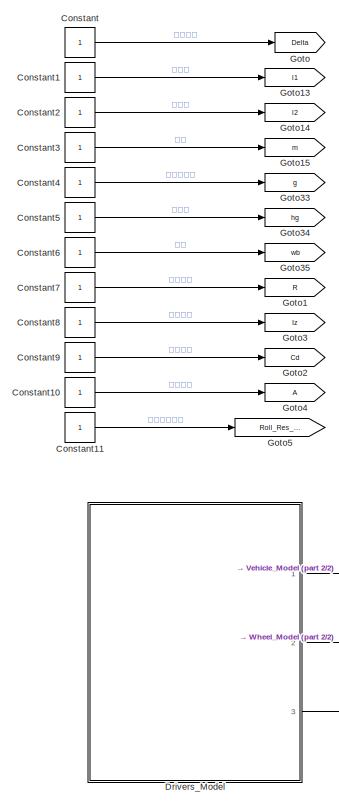
[diagram: root canvas - part 1/2, left side, full height]
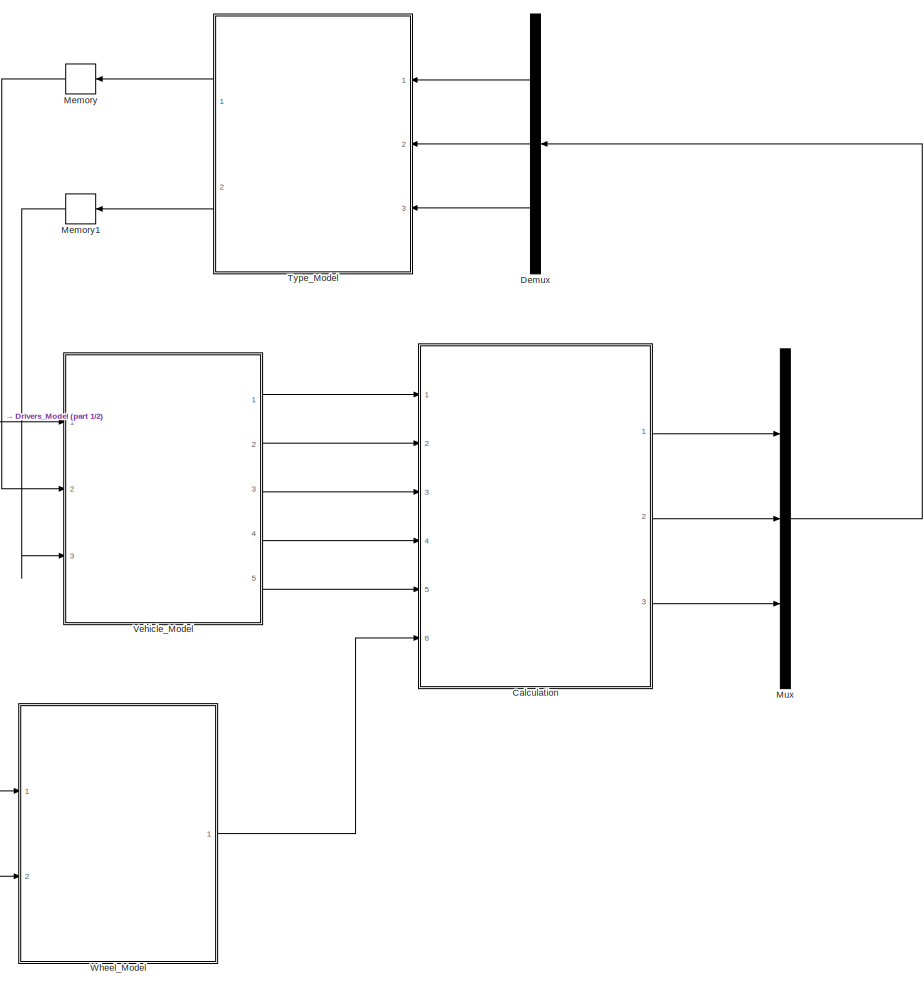
[diagram: root canvas - part 2/2, right side, full height]
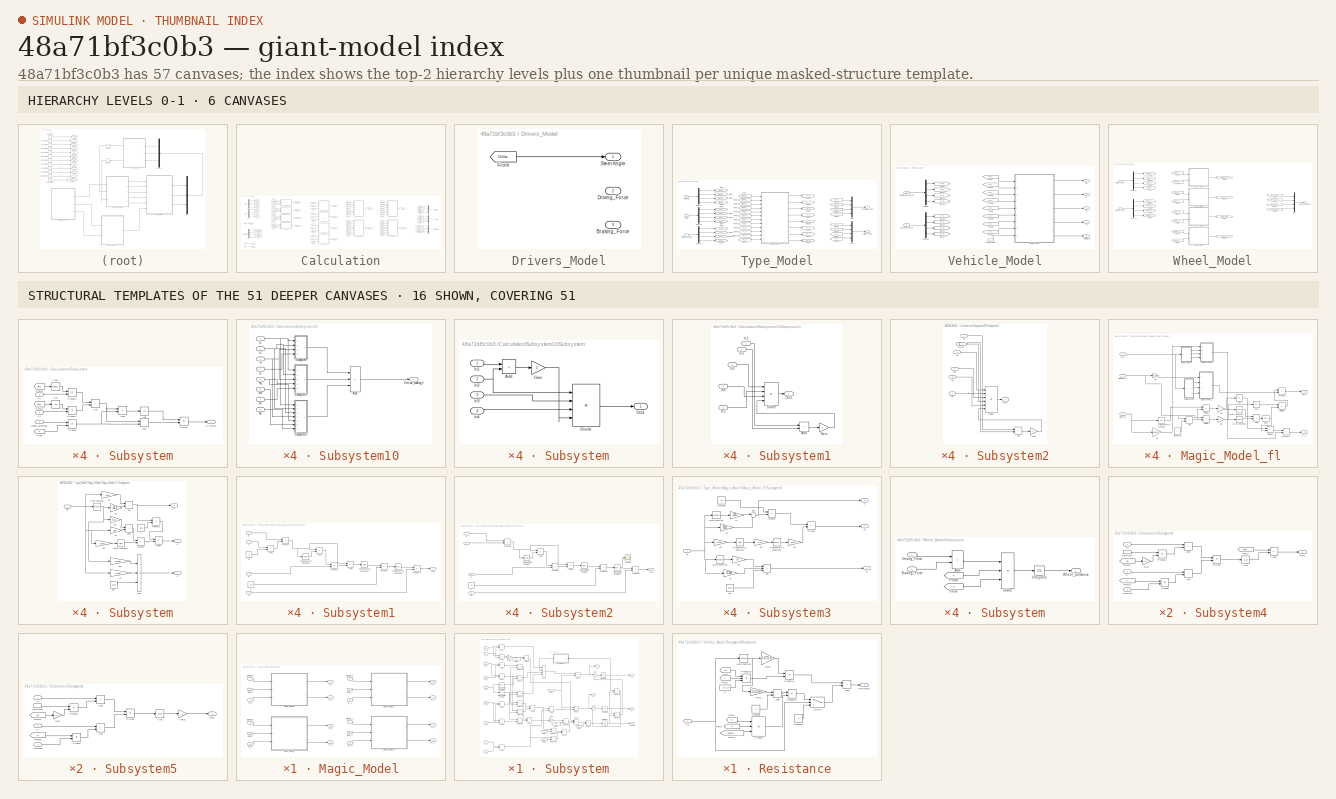
[diagram: thumbnail index - top-2 hierarchy levels (6 canvases) + 16 structural-template representatives of the remaining 51 canvases]
MODEL slx_48a71bf3c0b3
KIND model
CONFIG AbsTol = auto
CONFIG EnableMultiTasking = off
CONFIG FixedStep = auto
CONFIG MaxStep = auto
CONFIG MinStep = auto
CONFIG RelTol = 1e-3
CONFIG SampleTimeConstraint = Unconstrained
CONFIG SolverName = VariableStepAuto
CONFIG StartTime = 0.0
CONFIG StopTime = 10.0
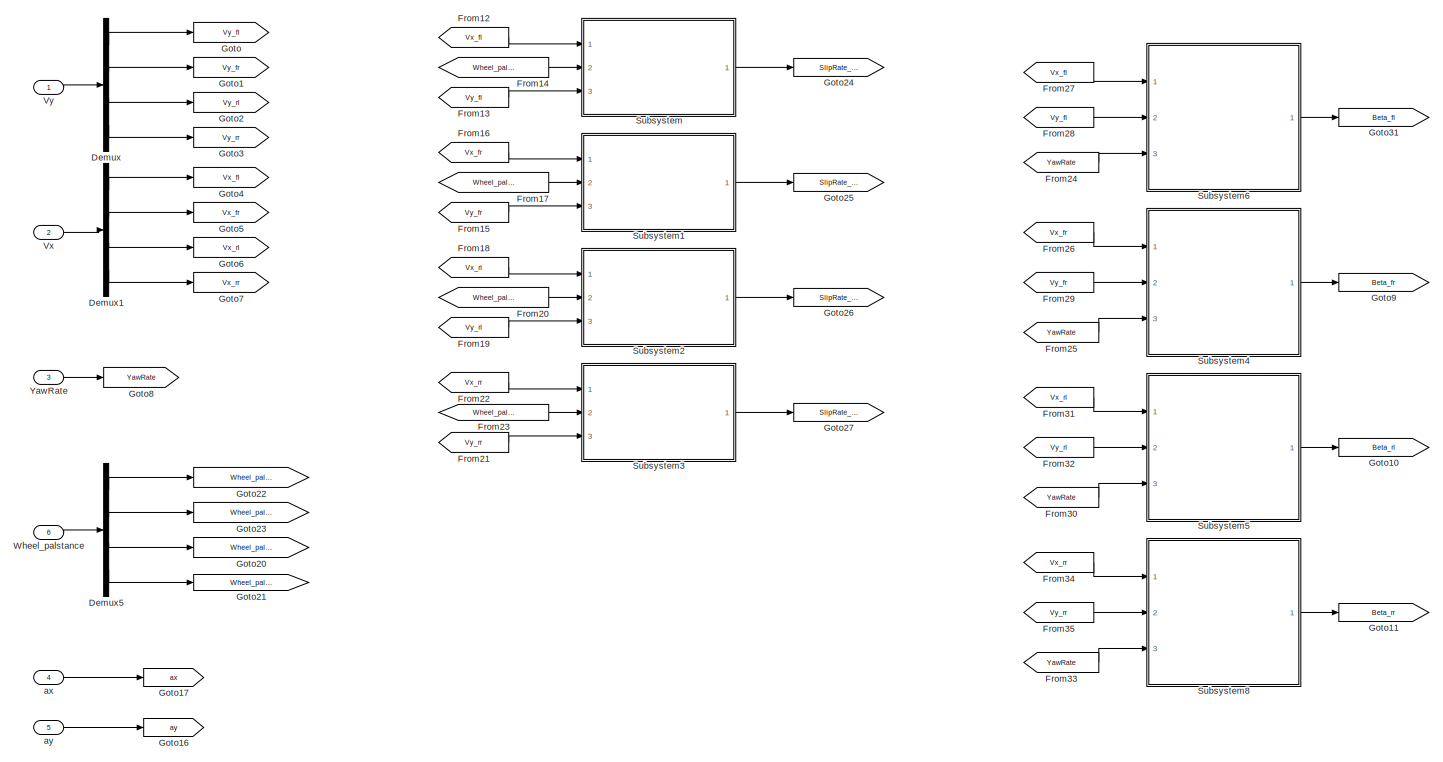
[diagram: Calculation - part 1/2, left side, full height]
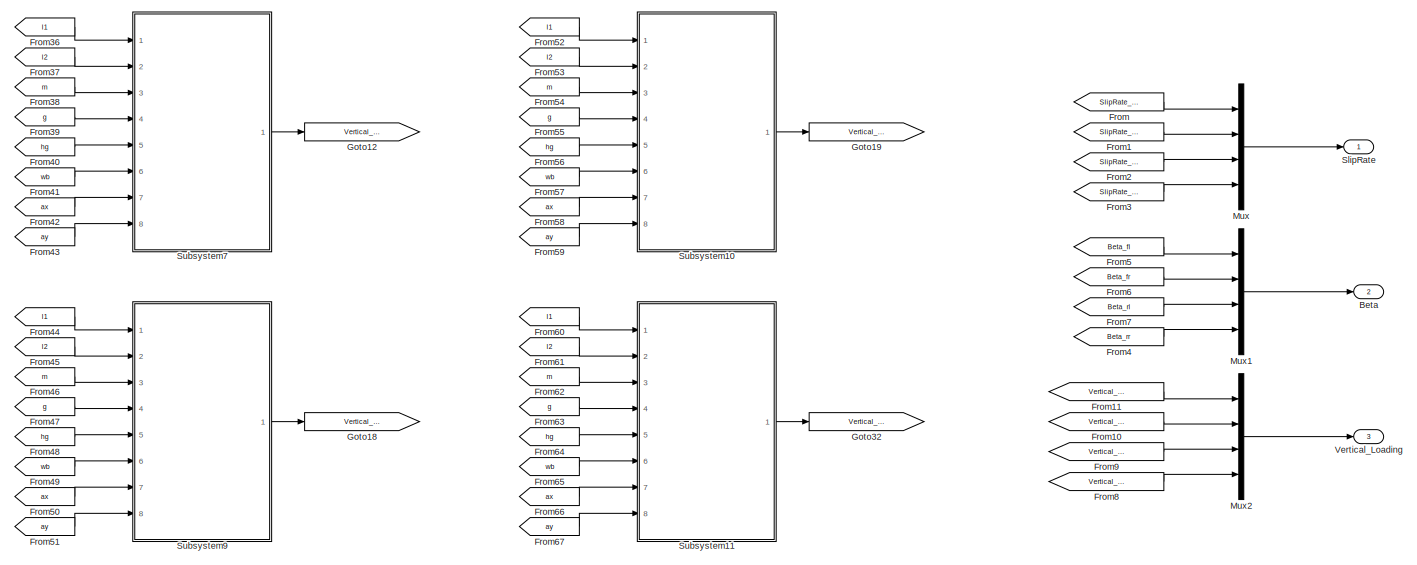
[diagram: Calculation - part 2/2, middle right region]
BLOCK [SubSystem] Calculation
  Ports = [6, 3]
  RequestExecContextInheritance = off
BLOCK [Outport] Calculation/Beta
  Port = 2
BLOCK [Demux] Calculation/Demux
  Ports = [1, 4]
BLOCK [Demux] Calculation/Demux1
  Ports = [1, 4]
BLOCK [Demux] Calculation/Demux5
  Ports = [1, 4]
BLOCK [From] Calculation/From
  GotoTag = SlipRate_fl
BLOCK [From] Calculation/From1
  GotoTag = SlipRate_fr
BLOCK [From] Calculation/From10
  GotoTag = Vertical_Loading_fr
BLOCK [From] Calculation/From11
  GotoTag = Vertical_Loading_fl
BLOCK [From] Calculation/From12
  GotoTag = Vx_fl
BLOCK [From] Calculation/From13
  GotoTag = Vy_fl
BLOCK [From] Calculation/From14
  GotoTag = Wheel_palstance_fl
BLOCK [From] Calculation/From15
  GotoTag = Vy_fr
BLOCK [From] Calculation/From16
  GotoTag = Vx_fr
BLOCK [From] Calculation/From17
  GotoTag = Wheel_palstance_fr
BLOCK [From] Calculation/From18
  GotoTag = Vx_rl
BLOCK [From] Calculation/From19
  GotoTag = Vy_rl
BLOCK [From] Calculation/From2
  GotoTag = SlipRate_rl
BLOCK [From] Calculation/From20
  GotoTag = Wheel_palstance_rl
BLOCK [From] Calculation/From21
  GotoTag = Vy_rr
BLOCK [From] Calculation/From22
  GotoTag = Vx_rr
BLOCK [From] Calculation/From23
  GotoTag = Wheel_palstance_rr
BLOCK [From] Calculation/From24
  GotoTag = YawRate
BLOCK [From] Calculation/From25
  GotoTag = YawRate
BLOCK [From] Calculation/From26
  GotoTag = Vx_fr
BLOCK [From] Calculation/From27
  GotoTag = Vx_fl
BLOCK [From] Calculation/From28
  GotoTag = Vy_fl
BLOCK [From] Calculation/From29
  GotoTag = Vy_fr
BLOCK [From] Calculation/From3
  GotoTag = SlipRate_rr
BLOCK [From] Calculation/From30
  GotoTag = YawRate
BLOCK [From] Calculation/From31
  GotoTag = Vx_rl
BLOCK [From] Calculation/From32
  GotoTag = Vy_rl
BLOCK [From] Calculation/From33
  GotoTag = YawRate
BLOCK [From] Calculation/From34
  GotoTag = Vx_rr
BLOCK [From] Calculation/From35
  GotoTag = Vy_rr
BLOCK [From] Calculation/From36
  GotoTag = l1
  TagVisibility = global
BLOCK [From] Calculation/From37
  GotoTag = l2
  TagVisibility = global
BLOCK [From] Calculation/From38
  GotoTag = m
  TagVisibility = global
BLOCK [From] Calculation/From39
  GotoTag = g
  TagVisibility = global
BLOCK [From] Calculation/From4
  GotoTag = Beta_rr
BLOCK [From] Calculation/From40
  GotoTag = hg
  TagVisibility = global
BLOCK [From] Calculation/From41
  GotoTag = wb
  TagVisibility = global
BLOCK [From] Calculation/From42
  GotoTag = ax
BLOCK [From] Calculation/From43
  GotoTag = ay
BLOCK [From] Calculation/From44
  GotoTag = l1
  TagVisibility = global
BLOCK [From] Calculation/From45
  GotoTag = l2
  TagVisibility = global
BLOCK [From] Calculation/From46
  GotoTag = m
  TagVisibility = global
BLOCK [From] Calculation/From47
  GotoTag = g
  TagVisibility = global
BLOCK [From] Calculation/From48
  GotoTag = hg
  TagVisibility = global
BLOCK [From] Calculation/From49
  GotoTag = wb
  TagVisibility = global
BLOCK [From] Calculation/From5
  GotoTag = Beta_fl
BLOCK [From] Calculation/From50
  GotoTag = ax
BLOCK [From] Calculation/From51
  GotoTag = ay
BLOCK [From] Calculation/From52
  GotoTag = l1
  TagVisibility = global
BLOCK [From] Calculation/From53
  GotoTag = l2
  TagVisibility = global
BLOCK [From] Calculation/From54
  GotoTag = m
  TagVisibility = global
BLOCK [From] Calculation/From55
  GotoTag = g
  TagVisibility = global
BLOCK [From] Calculation/From56
  GotoTag = hg
  TagVisibility = global
BLOCK [From] Calculation/From57
  GotoTag = wb
  TagVisibility = global
BLOCK [From] Calculation/From58
  GotoTag = ax
BLOCK [From] Calculation/From59
  GotoTag = ay
BLOCK [From] Calculation/From6
  GotoTag = Beta_fr
BLOCK [From] Calculation/From60
  GotoTag = l1
  TagVisibility = global
BLOCK [From] Calculation/From61
  GotoTag = l2
  TagVisibility = global
BLOCK [From] Calculation/From62
  GotoTag = m
  TagVisibility = global
BLOCK [From] Calculation/From63
  GotoTag = g
  TagVisibility = global
BLOCK [From] Calculation/From64
  GotoTag = hg
  TagVisibility = global
BLOCK [From] Calculation/From65
  GotoTag = wb
  TagVisibility = global
BLOCK [From] Calculation/From66
  GotoTag = ax
BLOCK [From] Calculation/From67
  GotoTag = ay
BLOCK [From] Calculation/From7
  GotoTag = Beta_rl
BLOCK [From] Calculation/From8
  GotoTag = Vertical_Loading_rr
BLOCK [From] Calculation/From9
  GotoTag = Vertical_Loading_rl
BLOCK [Goto] Calculation/Goto
  GotoTag = Vy_fl
BLOCK [Goto] Calculation/Goto1
  GotoTag = Vy_fr
BLOCK [Goto] Calculation/Goto10
  GotoTag = Beta_rl
BLOCK [Goto] Calculation/Goto11
  GotoTag = Beta_rr
BLOCK [Goto] Calculation/Goto12
  GotoTag = Vertical_Loading_fl
BLOCK [Goto] Calculation/Goto16
  GotoTag = ay
BLOCK [Goto] Calculation/Goto17
  GotoTag = ax
BLOCK [Goto] Calculation/Goto18
  GotoTag = Vertical_Loading_rl
BLOCK [Goto] Calculation/Goto19
  GotoTag = Vertical_Loading_fr
BLOCK [Goto] Calculation/Goto2
  GotoTag = Vy_rl
BLOCK [Goto] Calculation/Goto20
  GotoTag = Wheel_palstance_rl
BLOCK [Goto] Calculation/Goto21
  GotoTag = Wheel_palstance_rr
BLOCK [Goto] Calculation/Goto22
  GotoTag = Wheel_palstance_fl
BLOCK [Goto] Calculation/Goto23
  GotoTag = Wheel_palstance_fr
BLOCK [Goto] Calculation/Goto24
  GotoTag = SlipRate_fl
BLOCK [Goto] Calculation/Goto25
  GotoTag = SlipRate_fr
BLOCK [Goto] Calculation/Goto26
  GotoTag = SlipRate_rl
BLOCK [Goto] Calculation/Goto27
  GotoTag = SlipRate_rr
BLOCK [Goto] Calculation/Goto3
  GotoTag = Vy_rr
BLOCK [Goto] Calculation/Goto31
  GotoTag = Beta_fl
BLOCK [Goto] Calculation/Goto32
  GotoTag = Vertical_Loading_rr
BLOCK [Goto] Calculation/Goto4
  GotoTag = Vx_fl
BLOCK [Goto] Calculation/Goto5
  GotoTag = Vx_fr
BLOCK [Goto] Calculation/Goto6
  GotoTag = Vx_rl
BLOCK [Goto] Calculation/Goto7
  GotoTag = Vx_rr
BLOCK [Goto] Calculation/Goto8
  GotoTag = YawRate
BLOCK [Goto] Calculation/Goto9
  GotoTag = Beta_fr
BLOCK [Mux] Calculation/Mux
  DisplayOption = bar
  Ports = [4, 1]
BLOCK [Mux] Calculation/Mux1
  DisplayOption = bar
  Ports = [4, 1]
BLOCK [Mux] Calculation/Mux2
  DisplayOption = bar
  Ports = [4, 1]
BLOCK [Outport] Calculation/SlipRate
BLOCK [SubSystem] Calculation/Subsystem
  Ports = [3, 1]
  RequestExecContextInheritance = off
BLOCK [Abs] Calculation/Subsystem/Abs
  SaturateOnIntegerOverflow = off
BLOCK [Sum] Calculation/Subsystem/Add
  IconShape = rectangular
  Ports = [2, 1]
BLOCK [Sum] Calculation/Subsystem/Add1
  IconShape = rectangular
  Inputs = +-
  Ports = [2, 1]
BLOCK [Trigonometry] Calculation/Subsystem/Cos
  Operator = cos
  Ports = [1, 1]
BLOCK [Trigonometry] Calculation/Subsystem/Cos1
  Ports = [1, 1]
BLOCK [Product] Calculation/Subsystem/Divide
  Inputs = */
  Ports = [2, 1]
BLOCK [From] Calculation/Subsystem/From
  GotoTag = R
BLOCK [From] Calculation/Subsystem/From1
  GotoTag = Delta
  TagVisibility = global
BLOCK [From] Calculation/Subsystem/From2
  GotoTag = Delta
  TagVisibility = global
BLOCK [MinMax] Calculation/Subsystem/Max
  Function = max
  Inputs = 2
  Ports = [2, 1]
BLOCK [Product] Calculation/Subsystem/Product
  Ports = [2, 1]
BLOCK [Product] Calculation/Subsystem/Product1
  Ports = [2, 1]
BLOCK [Product] Calculation/Subsystem/Product2
  Ports = [2, 1]
BLOCK [Outport] Calculation/Subsystem/SlipRate
BLOCK [Inport] Calculation/Subsystem/Vx
BLOCK [Inport] Calculation/Subsystem/Vy
  Port = 3
BLOCK [Inport] Calculation/Subsystem/Wheel_palstance
  Port = 2
BLOCK [SubSystem] Calculation/Subsystem1
  Ports = [3, 1]
  RequestExecContextInheritance = off
BLOCK [Abs] Calculation/Subsystem1/Abs
  SaturateOnIntegerOverflow = off
BLOCK [Sum] Calculation/Subsystem1/Add
  IconShape = rectangular
  Ports = [2, 1]
BLOCK [Sum] Calculation/Subsystem1/Add1
  IconShape = rectangular
  Inputs = +-
  Ports = [2, 1]
BLOCK [Trigonometry] Calculation/Subsystem1/Cos
  Operator = cos
  Ports = [1, 1]
BLOCK [Trigonometry] Calculation/Subsystem1/Cos1
  Ports = [1, 1]
BLOCK [Product] Calculation/Subsystem1/Divide
  Inputs = */
  Ports = [2, 1]
BLOCK [From] Calculation/Subsystem1/From
  GotoTag = R
BLOCK [From] Calculation/Subsystem1/From1
  GotoTag = Delta
  TagVisibility = global
BLOCK [From] Calculation/Subsystem1/From2
  GotoTag = Delta
  TagVisibility = global
BLOCK [MinMax] Calculation/Subsystem1/Max
  Function = max
  Inputs = 2
  Ports = [2, 1]
BLOCK [Product] Calculation/Subsystem1/Product
  Ports = [2, 1]
BLOCK [Product] Calculation/Subsystem1/Product1
  Ports = [2, 1]
BLOCK [Product] Calculation/Subsystem1/Product2
  Ports = [2, 1]
BLOCK [Outport] Calculation/Subsystem1/SlipRate
BLOCK [Inport] Calculation/Subsystem1/Vx
BLOCK [Inport] Calculation/Subsystem1/Vy
  Port = 3
BLOCK [Inport] Calculation/Subsystem1/Wheel_palstance
  Port = 2
BLOCK [SubSystem] Calculation/Subsystem10
  Ports = [8, 1]
  RequestExecContextInheritance = off
BLOCK [Sum] Calculation/Subsystem10/Add
  IconShape = rectangular
  Inputs = +-+
  Ports = [3, 1]
BLOCK [Inport] Calculation/Subsystem10/L1
BLOCK [Inport] Calculation/Subsystem10/L2
  Port = 2
BLOCK [SubSystem] Calculation/Subsystem10/Subsystem
  Ports = [4, 1]
  RequestExecContextInheritance = off
BLOCK [Sum] Calculation/Subsystem10/Subsystem/Add
  IconShape = rectangular
  Ports = [2, 1]
BLOCK [Product] Calculation/Subsystem10/Subsystem/Divide
  Inputs = ***/
  Ports = [4, 1]
BLOCK [Gain] Calculation/Subsystem10/Subsystem/Gain
  Gain = 2
BLOCK [Inport] Calculation/Subsystem10/Subsystem/In1
BLOCK [Inport] Calculation/Subsystem10/Subsystem/In2
  Port = 2
BLOCK [Inport] Calculation/Subsystem10/Subsystem/In3
  Port = 3
BLOCK [Inport] Calculation/Subsystem10/Subsystem/In4
  Port = 4
BLOCK [Outport] Calculation/Subsystem10/Subsystem/Out1
BLOCK [SubSystem] Calculation/Subsystem10/Subsystem1
  Ports = [5, 1]
  RequestExecContextInheritance = off
BLOCK [Sum] Calculation/Subsystem10/Subsystem1/Add
  IconShape = rectangular
  Ports = [2, 1]
BLOCK [Product] Calculation/Subsystem10/Subsystem1/Divide
  Inputs = ***/
  Ports = [4, 1]
BLOCK [Gain] Calculation/Subsystem10/Subsystem1/Gain
  Gain = 2
BLOCK [Inport] Calculation/Subsystem10/Subsystem1/In1
BLOCK [Inport] Calculation/Subsystem10/Subsystem1/In2
  Port = 2
BLOCK [Inport] Calculation/Subsystem10/Subsystem1/In3
  Port = 3
BLOCK [Inport] Calculation/Subsystem10/Subsystem1/In4
  Port = 4
BLOCK [Inport] Calculation/Subsystem10/Subsystem1/In5
  Port = 5
BLOCK [Outport] Calculation/Subsystem10/Subsystem1/Out1
BLOCK [SubSystem] Calculation/Subsystem10/Subsystem2
  Ports = [7, 1]
  RequestExecContextInheritance = off
BLOCK [Sum] Calculation/Subsystem10/Subsystem2/Add
  IconShape = rectangular
  Ports = [2, 1]
BLOCK [Product] Calculation/Subsystem10/Subsystem2/Divide
  Inputs = ****//
  Ports = [6, 1]
BLOCK [Gain] Calculation/Subsystem10/Subsystem2/Gain
  Gain = 2
BLOCK [Inport] Calculation/Subsystem10/Subsystem2/In1
BLOCK [Inport] Calculation/Subsystem10/Subsystem2/In2
  Port = 2
BLOCK [Inport] Calculation/Subsystem10/Subsystem2/In3
  Port = 3
BLOCK [Inport] Calculation/Subsystem10/Subsystem2/In4
  Port = 4
BLOCK [Inport] Calculation/Subsystem10/Subsystem2/In5
  Port = 5
BLOCK [Inport] Calculation/Subsystem10/Subsystem2/In6
  Port = 6
BLOCK [Inport] Calculation/Subsystem10/Subsystem2/In7
  Port = 7
BLOCK [Outport] Calculation/Subsystem10/Subsystem2/Out1
BLOCK [Outport] Calculation/Subsystem10/Vertical_Loading_fr
BLOCK [Inport] Calculation/Subsystem10/ax
  Port = 7
BLOCK [Inport] Calculation/Subsystem10/ay
  Port = 8
BLOCK [Inport] Calculation/Subsystem10/g
  Port = 4
BLOCK [Inport] Calculation/Subsystem10/hg
  Port = 5
BLOCK [Inport] Calculation/Subsystem10/m
  Port = 3
BLOCK [Inport] Calculation/Subsystem10/wb
  Port = 6
BLOCK [SubSystem] Calculation/Subsystem11
  Ports = [8, 1]
  RequestExecContextInheritance = off
BLOCK [Sum] Calculation/Subsystem11/Add
  IconShape = rectangular
  Inputs = +++
  Ports = [3, 1]
BLOCK [Inport] Calculation/Subsystem11/L1
BLOCK [Inport] Calculation/Subsystem11/L2
  Port = 2
BLOCK [SubSystem] Calculation/Subsystem11/Subsystem
  Ports = [4, 1]
  RequestExecContextInheritance = off
BLOCK [Sum] Calculation/Subsystem11/Subsystem/Add
  IconShape = rectangular
  Ports = [2, 1]
BLOCK [Product] Calculation/Subsystem11/Subsystem/Divide
  Inputs = ***/
  Ports = [4, 1]
BLOCK [Gain] Calculation/Subsystem11/Subsystem/Gain
  Gain = 2
BLOCK [Inport] Calculation/Subsystem11/Subsystem/In1
BLOCK [Inport] Calculation/Subsystem11/Subsystem/In2
  Port = 2
BLOCK [Inport] Calculation/Subsystem11/Subsystem/In3
  Port = 3
BLOCK [Inport] Calculation/Subsystem11/Subsystem/In4
  Port = 4
BLOCK [Outport] Calculation/Subsystem11/Subsystem/Out1
BLOCK [SubSystem] Calculation/Subsystem11/Subsystem1
  Ports = [5, 1]
  RequestExecContextInheritance = off
BLOCK [Sum] Calculation/Subsystem11/Subsystem1/Add
  IconShape = rectangular
  Ports = [2, 1]
BLOCK [Product] Calculation/Subsystem11/Subsystem1/Divide
  Inputs = ***/
  Ports = [4, 1]
BLOCK [Gain] Calculation/Subsystem11/Subsystem1/Gain
  Gain = 2
BLOCK [Inport] Calculation/Subsystem11/Subsystem1/In1
BLOCK [Inport] Calculation/Subsystem11/Subsystem1/In2
  Port = 2
BLOCK [Inport] Calculation/Subsystem11/Subsystem1/In3
  Port = 3
BLOCK [Inport] Calculation/Subsystem11/Subsystem1/In4
  Port = 4
BLOCK [Inport] Calculation/Subsystem11/Subsystem1/In5
  Port = 5
BLOCK [Outport] Calculation/Subsystem11/Subsystem1/Out1
BLOCK [SubSystem] Calculation/Subsystem11/Subsystem2
  Ports = [7, 1]
  RequestExecContextInheritance = off
BLOCK [Sum] Calculation/Subsystem11/Subsystem2/Add
  IconShape = rectangular
  Ports = [2, 1]
BLOCK [Product] Calculation/Subsystem11/Subsystem2/Divide
  Inputs = ****//
  Ports = [6, 1]
BLOCK [Gain] Calculation/Subsystem11/Subsystem2/Gain
  Gain = 2
BLOCK [Inport] Calculation/Subsystem11/Subsystem2/In1
BLOCK [Inport] Calculation/Subsystem11/Subsystem2/In2
  Port = 2
BLOCK [Inport] Calculation/Subsystem11/Subsystem2/In3
  Port = 3
BLOCK [Inport] Calculation/Subsystem11/Subsystem2/In4
  Port = 4
BLOCK [Inport] Calculation/Subsystem11/Subsystem2/In5
  Port = 5
BLOCK [Inport] Calculation/Subsystem11/Subsystem2/In6
  Port = 6
BLOCK [Inport] Calculation/Subsystem11/Subsystem2/In7
  Port = 7
BLOCK [Outport] Calculation/Subsystem11/Subsystem2/Out1
BLOCK [Outport] Calculation/Subsystem11/Vertical_Loading_rl
BLOCK [Inport] Calculation/Subsystem11/ax
  Port = 7
BLOCK [Inport] Calculation/Subsystem11/ay
  Port = 8
BLOCK [Inport] Calculation/Subsystem11/g
  Port = 4
BLOCK [Inport] Calculation/Subsystem11/hg
  Port = 5
BLOCK [Inport] Calculation/Subsystem11/m
  Port = 3
BLOCK [Inport] Calculation/Subsystem11/wb
  Port = 6
BLOCK [SubSystem] Calculation/Subsystem2
  Ports = [3, 1]
  RequestExecContextInheritance = off
BLOCK [Abs] Calculation/Subsystem2/Abs
  SaturateOnIntegerOverflow = off
BLOCK [Sum] Calculation/Subsystem2/Add
  IconShape = rectangular
  Ports = [2, 1]
BLOCK [Sum] Calculation/Subsystem2/Add1
  IconShape = rectangular
  Inputs = +-
  Ports = [2, 1]
BLOCK [Trigonometry] Calculation/Subsystem2/Cos
  Operator = cos
  Ports = [1, 1]
BLOCK [Trigonometry] Calculation/Subsystem2/Cos1
  Ports = [1, 1]
BLOCK [Product] Calculation/Subsystem2/Divide
  Inputs = */
  Ports = [2, 1]
BLOCK [From] Calculation/Subsystem2/From
  GotoTag = R
BLOCK [From] Calculation/Subsystem2/From1
  GotoTag = Delta
  TagVisibility = global
BLOCK [From] Calculation/Subsystem2/From2
  GotoTag = Delta
  TagVisibility = global
BLOCK [MinMax] Calculation/Subsystem2/Max
  Function = max
  Inputs = 2
  Ports = [2, 1]
BLOCK [Product] Calculation/Subsystem2/Product
  Ports = [2, 1]
BLOCK [Product] Calculation/Subsystem2/Product1
  Ports = [2, 1]
BLOCK [Product] Calculation/Subsystem2/Product2
  Ports = [2, 1]
BLOCK [Outport] Calculation/Subsystem2/SlipRate
BLOCK [Inport] Calculation/Subsystem2/Vx
BLOCK [Inport] Calculation/Subsystem2/Vy
  Port = 3
BLOCK [Inport] Calculation/Subsystem2/Wheel_palstance
  Port = 2
BLOCK [SubSystem] Calculation/Subsystem3
  Ports = [3, 1]
  RequestExecContextInheritance = off
BLOCK [Abs] Calculation/Subsystem3/Abs
  SaturateOnIntegerOverflow = off
BLOCK [Sum] Calculation/Subsystem3/Add
  IconShape = rectangular
  Ports = [2, 1]
BLOCK [Sum] Calculation/Subsystem3/Add1
  IconShape = rectangular
  Inputs = +-
  Ports = [2, 1]
BLOCK [Trigonometry] Calculation/Subsystem3/Cos
  Operator = cos
  Ports = [1, 1]
BLOCK [Trigonometry] Calculation/Subsystem3/Cos1
  Ports = [1, 1]
BLOCK [Product] Calculation/Subsystem3/Divide
  Inputs = */
  Ports = [2, 1]
BLOCK [From] Calculation/Subsystem3/From
  GotoTag = R
BLOCK [From] Calculation/Subsystem3/From1
  GotoTag = Delta
  TagVisibility = global
BLOCK [From] Calculation/Subsystem3/From2
  GotoTag = Delta
  TagVisibility = global
BLOCK [MinMax] Calculation/Subsystem3/Max
  Function = max
  Inputs = 2
  Ports = [2, 1]
BLOCK [Product] Calculation/Subsystem3/Product
  Ports = [2, 1]
BLOCK [Product] Calculation/Subsystem3/Product1
  Ports = [2, 1]
BLOCK [Product] Calculation/Subsystem3/Product2
  Ports = [2, 1]
BLOCK [Outport] Calculation/Subsystem3/SlipRate
BLOCK [Inport] Calculation/Subsystem3/Vx
BLOCK [Inport] Calculation/Subsystem3/Vy
  Port = 3
BLOCK [Inport] Calculation/Subsystem3/Wheel_palstance
  Port = 2
BLOCK [SubSystem] Calculation/Subsystem4
  Ports = [3, 1]
  RequestExecContextInheritance = off
BLOCK [Sum] Calculation/Subsystem4/Add
  IconShape = rectangular
  Ports = [2, 1]
BLOCK [Sum] Calculation/Subsystem4/Add1
  IconShape = rectangular
  Ports = [2, 1]
BLOCK [Sum] Calculation/Subsystem4/Add2
  IconShape = rectangular
  Inputs = +-
  Ports = [2, 1]
BLOCK [Trigonometry] Calculation/Subsystem4/Atan
  Operator = atan
  Ports = [1, 1]
BLOCK [Outport] Calculation/Subsystem4/Beta
BLOCK [Product] Calculation/Subsystem4/Divide
  Inputs = /*
  Ports = [2, 1]
BLOCK [From] Calculation/Subsystem4/From1
  GotoTag = Delta
  TagVisibility = global
BLOCK [From] Calculation/Subsystem4/From24
  GotoTag = wb
  TagVisibility = global
BLOCK [From] Calculation/Subsystem4/From25
  GotoTag = l1
  TagVisibility = global
BLOCK [Gain] Calculation/Subsystem4/Gain
  Gain = 0.5
BLOCK [Product] Calculation/Subsystem4/Product
  Ports = [2, 1]
BLOCK [Product] Calculation/Subsystem4/Product1
  Ports = [2, 1]
BLOCK [Inport] Calculation/Subsystem4/Vx
BLOCK [Inport] Calculation/Subsystem4/Vy
  Port = 2
BLOCK [Inport] Calculation/Subsystem4/YawRate
  Port = 3
BLOCK [InportShadow] Calculation/Subsystem4/YawRate1
  Port = 3
BLOCK [SubSystem] Calculation/Subsystem5
  Ports = [3, 1]
  RequestExecContextInheritance = off
BLOCK [Sum] Calculation/Subsystem5/Add
  IconShape = rectangular
  Inputs = +-
  Ports = [2, 1]
BLOCK [Sum] Calculation/Subsystem5/Add1
  IconShape = rectangular
  Inputs = +-
  Ports = [2, 1]
BLOCK [Trigonometry] Calculation/Subsystem5/Atan
  Operator = atan
  Ports = [1, 1]
BLOCK [Outport] Calculation/Subsystem5/Beta
BLOCK [Product] Calculation/Subsystem5/Divide
  Inputs = /*
  Ports = [2, 1]
BLOCK [From] Calculation/Subsystem5/From24
  GotoTag = wb
  TagVisibility = global
BLOCK [From] Calculation/Subsystem5/From25
  GotoTag = l2
  TagVisibility = global
BLOCK [Gain] Calculation/Subsystem5/Gain
  Gain = 0.5
BLOCK [Gain] Calculation/Subsystem5/Gain1
  Gain = -1
BLOCK [Product] Calculation/Subsystem5/Product
  Ports = [2, 1]
BLOCK [Product] Calculation/Subsystem5/Product1
  Ports = [2, 1]
BLOCK [Inport] Calculation/Subsystem5/Vx
BLOCK [Inport] Calculation/Subsystem5/Vy
  Port = 2
BLOCK [Inport] Calculation/Subsystem5/YawRate
  Port = 3
BLOCK [InportShadow] Calculation/Subsystem5/YawRate1
  Port = 3
BLOCK [SubSystem] Calculation/Subsystem6
  Ports = [3, 1]
  RequestExecContextInheritance = off
BLOCK [Sum] Calculation/Subsystem6/Add
  IconShape = rectangular
  Ports = [2, 1]
BLOCK [Sum] Calculation/Subsystem6/Add1
  IconShape = rectangular
  Inputs = +-
  Ports = [2, 1]
BLOCK [Sum] Calculation/Subsystem6/Add2
  IconShape = rectangular
  Inputs = +-
  Ports = [2, 1]
BLOCK [Trigonometry] Calculation/Subsystem6/Atan
  Operator = atan
  Ports = [1, 1]
BLOCK [Outport] Calculation/Subsystem6/Beta
BLOCK [Product] Calculation/Subsystem6/Divide
  Inputs = /*
  Ports = [2, 1]
BLOCK [From] Calculation/Subsystem6/From1
  GotoTag = Delta
  TagVisibility = global
BLOCK [From] Calculation/Subsystem6/From24
  GotoTag = wb
  TagVisibility = global
BLOCK [From] Calculation/Subsystem6/From25
  GotoTag = l1
  TagVisibility = global
BLOCK [Gain] Calculation/Subsystem6/Gain
  Gain = 0.5
BLOCK [Product] Calculation/Subsystem6/Product
  Ports = [2, 1]
BLOCK [Product] Calculation/Subsystem6/Product1
  Ports = [2, 1]
BLOCK [Inport] Calculation/Subsystem6/Vx
BLOCK [Inport] Calculation/Subsystem6/Vy
  Port = 2
BLOCK [Inport] Calculation/Subsystem6/YawRate
  Port = 3
BLOCK [InportShadow] Calculation/Subsystem6/YawRate1
  Port = 3
BLOCK [SubSystem] Calculation/Subsystem7
  Ports = [8, 1]
  RequestExecContextInheritance = off
BLOCK [Sum] Calculation/Subsystem7/Add
  IconShape = rectangular
  Inputs = +--
  Ports = [3, 1]
BLOCK [Inport] Calculation/Subsystem7/L1
BLOCK [Inport] Calculation/Subsystem7/L2
  Port = 2
BLOCK [SubSystem] Calculation/Subsystem7/Subsystem
  Ports = [4, 1]
  RequestExecContextInheritance = off
BLOCK [Sum] Calculation/Subsystem7/Subsystem/Add
  IconShape = rectangular
  Ports = [2, 1]
BLOCK [Product] Calculation/Subsystem7/Subsystem/Divide
  Inputs = ***/
  Ports = [4, 1]
BLOCK [Gain] Calculation/Subsystem7/Subsystem/Gain
  Gain = 2
BLOCK [Inport] Calculation/Subsystem7/Subsystem/In1
BLOCK [Inport] Calculation/Subsystem7/Subsystem/In2
  Port = 2
BLOCK [Inport] Calculation/Subsystem7/Subsystem/In3
  Port = 3
BLOCK [Inport] Calculation/Subsystem7/Subsystem/In4
  Port = 4
BLOCK [Outport] Calculation/Subsystem7/Subsystem/Out1
BLOCK [SubSystem] Calculation/Subsystem7/Subsystem1
  Ports = [5, 1]
  RequestExecContextInheritance = off
BLOCK [Sum] Calculation/Subsystem7/Subsystem1/Add
  IconShape = rectangular
  Ports = [2, 1]
BLOCK [Product] Calculation/Subsystem7/Subsystem1/Divide
  Inputs = ***/
  Ports = [4, 1]
BLOCK [Gain] Calculation/Subsystem7/Subsystem1/Gain
  Gain = 2
BLOCK [Inport] Calculation/Subsystem7/Subsystem1/In1
BLOCK [Inport] Calculation/Subsystem7/Subsystem1/In2
  Port = 2
BLOCK [Inport] Calculation/Subsystem7/Subsystem1/In3
  Port = 3
BLOCK [Inport] Calculation/Subsystem7/Subsystem1/In4
  Port = 4
BLOCK [Inport] Calculation/Subsystem7/Subsystem1/In5
  Port = 5
BLOCK [Outport] Calculation/Subsystem7/Subsystem1/Out1
BLOCK [SubSystem] Calculation/Subsystem7/Subsystem2
  Ports = [7, 1]
  RequestExecContextInheritance = off
BLOCK [Sum] Calculation/Subsystem7/Subsystem2/Add
  IconShape = rectangular
  Ports = [2, 1]
BLOCK [Product] Calculation/Subsystem7/Subsystem2/Divide
  Inputs = ****//
  Ports = [6, 1]
BLOCK [Gain] Calculation/Subsystem7/Subsystem2/Gain
  Gain = 2
BLOCK [Inport] Calculation/Subsystem7/Subsystem2/In1
BLOCK [Inport] Calculation/Subsystem7/Subsystem2/In2
  Port = 2
BLOCK [Inport] Calculation/Subsystem7/Subsystem2/In3
  Port = 3
BLOCK [Inport] Calculation/Subsystem7/Subsystem2/In4
  Port = 4
BLOCK [Inport] Calculation/Subsystem7/Subsystem2/In5
  Port = 5
BLOCK [Inport] Calculation/Subsystem7/Subsystem2/In6
  Port = 6
BLOCK [Inport] Calculation/Subsystem7/Subsystem2/In7
  Port = 7
BLOCK [Outport] Calculation/Subsystem7/Subsystem2/Out1
BLOCK [Outport] Calculation/Subsystem7/Vertical_Loading_fl
BLOCK [Inport] Calculation/Subsystem7/ax
  Port = 7
BLOCK [Inport] Calculation/Subsystem7/ay
  Port = 8
BLOCK [Inport] Calculation/Subsystem7/g
  Port = 4
BLOCK [Inport] Calculation/Subsystem7/hg
  Port = 5
BLOCK [Inport] Calculation/Subsystem7/m
  Port = 3
BLOCK [Inport] Calculation/Subsystem7/wb
  Port = 6
BLOCK [SubSystem] Calculation/Subsystem8
  Ports = [3, 1]
  RequestExecContextInheritance = off
BLOCK [Sum] Calculation/Subsystem8/Add
  IconShape = rectangular
  Inputs = +-
  Ports = [2, 1]
BLOCK [Sum] Calculation/Subsystem8/Add1
  IconShape = rectangular
  Ports = [2, 1]
BLOCK [Trigonometry] Calculation/Subsystem8/Atan
  Operator = atan
  Ports = [1, 1]
BLOCK [Outport] Calculation/Subsystem8/Beta
BLOCK [Product] Calculation/Subsystem8/Divide
  Inputs = /*
  Ports = [2, 1]
BLOCK [From] Calculation/Subsystem8/From24
  GotoTag = wb
  TagVisibility = global
BLOCK [From] Calculation/Subsystem8/From25
  GotoTag = l2
  TagVisibility = global
BLOCK [Gain] Calculation/Subsystem8/Gain
  Gain = 0.5
BLOCK [Gain] Calculation/Subsystem8/Gain1
  Gain = -1
BLOCK [Product] Calculation/Subsystem8/Product
  Ports = [2, 1]
BLOCK [Product] Calculation/Subsystem8/Product1
  Ports = [2, 1]
BLOCK [Inport] Calculation/Subsystem8/Vx
BLOCK [Inport] Calculation/Subsystem8/Vy
  Port = 2
BLOCK [Inport] Calculation/Subsystem8/YawRate
  Port = 3
BLOCK [InportShadow] Calculation/Subsystem8/YawRate1
  Port = 3
BLOCK [SubSystem] Calculation/Subsystem9
  Ports = [8, 1]
  RequestExecContextInheritance = off
BLOCK [Sum] Calculation/Subsystem9/Add
  IconShape = rectangular
  Inputs = ++-
  Ports = [3, 1]
BLOCK [Inport] Calculation/Subsystem9/L1
BLOCK [Inport] Calculation/Subsystem9/L2
  Port = 2
BLOCK [SubSystem] Calculation/Subsystem9/Subsystem
  Ports = [4, 1]
  RequestExecContextInheritance = off
BLOCK [Sum] Calculation/Subsystem9/Subsystem/Add
  IconShape = rectangular
  Ports = [2, 1]
BLOCK [Product] Calculation/Subsystem9/Subsystem/Divide
  Inputs = ***/
  Ports = [4, 1]
BLOCK [Gain] Calculation/Subsystem9/Subsystem/Gain
  Gain = 2
BLOCK [Inport] Calculation/Subsystem9/Subsystem/In1
BLOCK [Inport] Calculation/Subsystem9/Subsystem/In2
  Port = 2
BLOCK [Inport] Calculation/Subsystem9/Subsystem/In3
  Port = 3
BLOCK [Inport] Calculation/Subsystem9/Subsystem/In4
  Port = 4
BLOCK [Outport] Calculation/Subsystem9/Subsystem/Out1
BLOCK [SubSystem] Calculation/Subsystem9/Subsystem1
  Ports = [5, 1]
  RequestExecContextInheritance = off
BLOCK [Sum] Calculation/Subsystem9/Subsystem1/Add
  IconShape = rectangular
  Ports = [2, 1]
BLOCK [Product] Calculation/Subsystem9/Subsystem1/Divide
  Inputs = ***/
  Ports = [4, 1]
BLOCK [Gain] Calculation/Subsystem9/Subsystem1/Gain
  Gain = 2
BLOCK [Inport] Calculation/Subsystem9/Subsystem1/In1
BLOCK [Inport] Calculation/Subsystem9/Subsystem1/In2
  Port = 2
BLOCK [Inport] Calculation/Subsystem9/Subsystem1/In3
  Port = 3
BLOCK [Inport] Calculation/Subsystem9/Subsystem1/In4
  Port = 4
BLOCK [Inport] Calculation/Subsystem9/Subsystem1/In5
  Port = 5
BLOCK [Outport] Calculation/Subsystem9/Subsystem1/Out1
BLOCK [SubSystem] Calculation/Subsystem9/Subsystem2
  Ports = [7, 1]
  RequestExecContextInheritance = off
BLOCK [Sum] Calculation/Subsystem9/Subsystem2/Add
  IconShape = rectangular
  Ports = [2, 1]
BLOCK [Product] Calculation/Subsystem9/Subsystem2/Divide
  Inputs = ****//
  Ports = [6, 1]
BLOCK [Gain] Calculation/Subsystem9/Subsystem2/Gain
  Gain = 2
BLOCK [Inport] Calculation/Subsystem9/Subsystem2/In1
BLOCK [Inport] Calculation/Subsystem9/Subsystem2/In2
  Port = 2
BLOCK [Inport] Calculation/Subsystem9/Subsystem2/In3
  Port = 3
BLOCK [Inport] Calculation/Subsystem9/Subsystem2/In4
  Port = 4
BLOCK [Inport] Calculation/Subsystem9/Subsystem2/In5
  Port = 5
BLOCK [Inport] Calculation/Subsystem9/Subsystem2/In6
  Port = 6
BLOCK [Inport] Calculation/Subsystem9/Subsystem2/In7
  Port = 7
BLOCK [Outport] Calculation/Subsystem9/Subsystem2/Out1
BLOCK [Outport] Calculation/Subsystem9/Vertical_Loading_rl
BLOCK [Inport] Calculation/Subsystem9/ax
  Port = 7
BLOCK [Inport] Calculation/Subsystem9/ay
  Port = 8
BLOCK [Inport] Calculation/Subsystem9/g
  Port = 4
BLOCK [Inport] Calculation/Subsystem9/hg
  Port = 5
BLOCK [Inport] Calculation/Subsystem9/m
  Port = 3
BLOCK [Inport] Calculation/Subsystem9/wb
  Port = 6
BLOCK [Outport] Calculation/Vertical_Loading
  Port = 3
BLOCK [Inport] Calculation/Vx
  Port = 2
BLOCK [Inport] Calculation/Vy
BLOCK [Inport] Calculation/Wheel_palstance
  Port = 6
BLOCK [Inport] Calculation/YawRate
  Port = 3
BLOCK [Inport] Calculation/ax
  Port = 4
BLOCK [Inport] Calculation/ay
  Port = 5
BLOCK [Constant] Constant
BLOCK [Constant] Constant1
BLOCK [Constant] Constant10
BLOCK [Constant] Constant11
BLOCK [Constant] Constant2
BLOCK [Constant] Constant3
BLOCK [Constant] Constant4
BLOCK [Constant] Constant5
BLOCK [Constant] Constant6
BLOCK [Constant] Constant7
BLOCK [Constant] Constant8
BLOCK [Constant] Constant9
BLOCK [Demux] Demux
  NameLocation = top
  Outputs = 3
  Ports = [1, 3]
BLOCK [SubSystem] Drivers_Model
  Ports = [0, 3]
  RequestExecContextInheritance = off
BLOCK [Outport] Drivers_Model/Braking_Force
  Port = 3
BLOCK [Outport] Drivers_Model/Driving_Force
  Port = 2
BLOCK [From] Drivers_Model/From
  GotoTag = Delta
  TagVisibility = global
BLOCK [Outport] Drivers_Model/SteerAngle
BLOCK [Goto] Goto
  GotoTag = Delta
  TagVisibility = global
BLOCK [Goto] Goto1
  GotoTag = R
  TagVisibility = global
BLOCK [Goto] Goto13
  GotoTag = l1
  TagVisibility = global
BLOCK [Goto] Goto14
  GotoTag = l2
  TagVisibility = global
BLOCK [Goto] Goto15
  GotoTag = m
  TagVisibility = global
BLOCK [Goto] Goto2
  GotoTag = Cd
  TagVisibility = global
BLOCK [Goto] Goto3
  GotoTag = Iz
  TagVisibility = global
BLOCK [Goto] Goto33
  GotoTag = g
  TagVisibility = global
BLOCK [Goto] Goto34
  GotoTag = hg
  TagVisibility = global
BLOCK [Goto] Goto35
  GotoTag = wb
  TagVisibility = global
BLOCK [Goto] Goto4
  TagVisibility = global
BLOCK [Goto] Goto5
  GotoTag = Roll_Res_Coe
  TagVisibility = global
BLOCK [Memory] Memory
  NameLocation = top
BLOCK [Memory] Memory1
  NameLocation = top
BLOCK [Mux] Mux
  DisplayOption = bar
  Inputs = 3
  Ports = [3, 1]
BLOCK [SubSystem] Type_Model
  Ports = [3, 2]
  RequestExecContextInheritance = off
BLOCK [Inport] Type_Model/Beta
  Port = 2
BLOCK [Demux] Type_Model/Demux
  Ports = [1, 4]
BLOCK [Demux] Type_Model/Demux1
  Ports = [1, 4]
BLOCK [Demux] Type_Model/Demux2
  Ports = [1, 4]
BLOCK [From] Type_Model/From
  GotoTag = SlipRate_fl
BLOCK [From] Type_Model/From1
  GotoTag = SlipRate_fr
BLOCK [From] Type_Model/From10
  GotoTag = Fz_rl
BLOCK [From] Type_Model/From11
  GotoTag = Fz_rr
BLOCK [From] Type_Model/From12
  GotoTag = Fx_fl
BLOCK [From] Type_Model/From13
  GotoTag = Fy_fl
BLOCK [From] Type_Model/From14
  GotoTag = Fx_fr
BLOCK [From] Type_Model/From15
  GotoTag = Fy_fr
BLOCK [From] Type_Model/From16
  GotoTag = Fx_rl
BLOCK [From] Type_Model/From17
  GotoTag = Fy_rl
BLOCK [From] Type_Model/From18
  GotoTag = Fx_rr
BLOCK [From] Type_Model/From19
  GotoTag = Fy_rr
BLOCK [From] Type_Model/From2
  GotoTag = SlipRate_rl
BLOCK [From] Type_Model/From3
  GotoTag = SlipRate_rr
BLOCK [From] Type_Model/From4
  GotoTag = Beta_fl
BLOCK [From] Type_Model/From5
  GotoTag = Beta_fr
BLOCK [From] Type_Model/From6
  GotoTag = Beta_rl
BLOCK [From] Type_Model/From7
  GotoTag = Beta_rr
BLOCK [From] Type_Model/From8
  GotoTag = Fz_fl
BLOCK [From] Type_Model/From9
  GotoTag = Fz_fr
BLOCK [Goto] Type_Model/Goto
  GotoTag = SlipRate_fl
BLOCK [Goto] Type_Model/Goto1
  GotoTag = SlipRate_fr
BLOCK [Goto] Type_Model/Goto10
  GotoTag = Fz_rl
BLOCK [Goto] Type_Model/Goto11
  GotoTag = Fz_rr
BLOCK [Goto] Type_Model/Goto12
  GotoTag = Fx_fl
BLOCK [Goto] Type_Model/Goto13
  GotoTag = Fy_fl
BLOCK [Goto] Type_Model/Goto14
  GotoTag = Fx_fr
BLOCK [Goto] Type_Model/Goto15
  GotoTag = Fy_fr
BLOCK [Goto] Type_Model/Goto16
  GotoTag = Fy_rl
BLOCK [Goto] Type_Model/Goto17
  GotoTag = Fy_rr
BLOCK [Goto] Type_Model/Goto18
  GotoTag = Fx_rl
BLOCK [Goto] Type_Model/Goto19
  GotoTag = Fx_rr
BLOCK [Goto] Type_Model/Goto2
  GotoTag = SlipRate_rl
BLOCK [Goto] Type_Model/Goto3
  GotoTag = SlipRate_rr
BLOCK [Goto] Type_Model/Goto4
  GotoTag = Beta_fl
BLOCK [Goto] Type_Model/Goto5
  GotoTag = Beta_fr
BLOCK [Goto] Type_Model/Goto6
  GotoTag = Beta_rl
BLOCK [Goto] Type_Model/Goto7
  GotoTag = Beta_rr
BLOCK [Goto] Type_Model/Goto8
  GotoTag = Fz_fl
BLOCK [Goto] Type_Model/Goto9
  GotoTag = Fz_fr
BLOCK [Outport] Type_Model/Latitude_Force
  Port = 2
BLOCK [Outport] Type_Model/Longitude_Force
BLOCK [SubSystem] Type_Model/Magic_Model
  Ports = [12, 8]
  RequestExecContextInheritance = off
BLOCK [Inport] Type_Model/Magic_Model/Beta_fl
  Port = 5
BLOCK [Inport] Type_Model/Magic_Model/Beta_fr
  Port = 6
BLOCK [Inport] Type_Model/Magic_Model/Beta_rl
  Port = 7
BLOCK [Inport] Type_Model/Magic_Model/Beta_rr
  Port = 8
BLOCK [Outport] Type_Model/Magic_Model/Fx_fl
BLOCK [Outport] Type_Model/Magic_Model/Fx_fr
  Port = 3
BLOCK [Outport] Type_Model/Magic_Model/Fx_rl
  Port = 5
BLOCK [Outport] Type_Model/Magic_Model/Fx_rr
  Port = 7
BLOCK [Outport] Type_Model/Magic_Model/Fy_fl
  Port = 2
BLOCK [Outport] Type_Model/Magic_Model/Fy_fr
  Port = 4
BLOCK [Outport] Type_Model/Magic_Model/Fy_rl
  Port = 6
BLOCK [Outport] Type_Model/Magic_Model/Fy_rr
  Port = 8
BLOCK [Inport] Type_Model/Magic_Model/Fz_fl
  Port = 9
BLOCK [Inport] Type_Model/Magic_Model/Fz_fr
  Port = 10
BLOCK [Inport] Type_Model/Magic_Model/Fz_rl
  Port = 11
BLOCK [Inport] Type_Model/Magic_Model/Fz_rr
  Port = 12
BLOCK [SubSystem] Type_Model/Magic_Model/Magic_Model_fl
  Ports = [3, 2]
  RequestExecContextInheritance = off
BLOCK [Abs] Type_Model/Magic_Model/Magic_Model_fl/Abs
  SaturateOnIntegerOverflow = off
BLOCK [Abs] Type_Model/Magic_Model/Magic_Model_fl/Abs1
  SaturateOnIntegerOverflow = off
BLOCK [Sum] Type_Model/Magic_Model/Magic_Model_fl/Add
  IconShape = rectangular
  Ports = [2, 1]
BLOCK [Sum] Type_Model/Magic_Model/Magic_Model_fl/Add1
  IconShape = rectangular
  Ports = [2, 1]
BLOCK [Gain] Type_Model/Magic_Model/Magic_Model_fl/B1
  Gain = -1
BLOCK [Gain] Type_Model/Magic_Model/Magic_Model_fl/B3
  Gain = 100
BLOCK [Gain] Type_Model/Magic_Model/Magic_Model_fl/B4
  Gain = 180/pi
BLOCK [Gain] Type_Model/Magic_Model/Magic_Model_fl/B8
  Gain = -1
BLOCK [Inport] Type_Model/Magic_Model/Magic_Model_fl/Beta_fl
  Port = 2
BLOCK [Constant] Type_Model/Magic_Model/Magic_Model_fl/Constant
BLOCK [Product] Type_Model/Magic_Model/Magic_Model_fl/Divide
  Inputs = */
  Ports = [2, 1]
BLOCK [Product] Type_Model/Magic_Model/Magic_Model_fl/Divide1
  Inputs = */
  Ports = [2, 1]
BLOCK [Product] Type_Model/Magic_Model/Magic_Model_fl/Divide2
  Inputs = */
  Ports = [2, 1]
BLOCK [Product] Type_Model/Magic_Model/Magic_Model_fl/Divide3
  Inputs = */
  Ports = [2, 1]
BLOCK [Outport] Type_Model/Magic_Model/Magic_Model_fl/Fx_fl
BLOCK [Outport] Type_Model/Magic_Model/Magic_Model_fl/Fy_fl
  Port = 2
BLOCK [Inport] Type_Model/Magic_Model/Magic_Model_fl/Fz_fl
  Port = 3
BLOCK [Math] Type_Model/Magic_Model/Magic_Model_fl/Math Function
  Operator = square
  Ports = [1, 1]
  SignedPower = on
BLOCK [Math] Type_Model/Magic_Model/Magic_Model_fl/Math Function1
  Operator = square
  Ports = [1, 1]
  SignedPower = on
BLOCK [Product] Type_Model/Magic_Model/Magic_Model_fl/Product
  Ports = [2, 1]
  RndMeth = Zero
BLOCK [Product] Type_Model/Magic_Model/Magic_Model_fl/Product1
  Ports = [2, 1]
  RndMeth = Zero
BLOCK [Inport] Type_Model/Magic_Model/Magic_Model_fl/SlipRate_fl
BLOCK [Sqrt] Type_Model/Magic_Model/Magic_Model_fl/Sqrt
BLOCK [SubSystem] Type_Model/Magic_Model/Magic_Model_fl/Subsystem
  Ports = [1, 3]
  RequestExecContextInheritance = off
BLOCK [Sum] Type_Model/Magic_Model/Magic_Model_fl/Subsystem/Add
  IconShape = rectangular
  Ports = [2, 1]
BLOCK [Sum] Type_Model/Magic_Model/Magic_Model_fl/Subsystem/Add1
  IconShape = rectangular
  Ports = [2, 1]
BLOCK [Sum] Type_Model/Magic_Model/Magic_Model_fl/Subsystem/Add2
  IconShape = rectangular
  Inputs = +++
  Ports = [3, 1]
BLOCK [Outport] Type_Model/Magic_Model/Magic_Model_fl/Subsystem/B 
BLOCK [Gain] Type_Model/Magic_Model/Magic_Model_fl/Subsystem/B1
  Gain = -21.3
BLOCK [Gain] Type_Model/Magic_Model/Magic_Model_fl/Subsystem/B2
  Gain = 1144
BLOCK [Gain] Type_Model/Magic_Model/Magic_Model_fl/Subsystem/B3
  Gain = 49.6
BLOCK [Gain] Type_Model/Magic_Model/Magic_Model_fl/Subsystem/B4
  Gain = 226
BLOCK [Gain] Type_Model/Magic_Model/Magic_Model_fl/Subsystem/B5
  Gain = 0.069
BLOCK [Gain] Type_Model/Magic_Model/Magic_Model_fl/Subsystem/B6
  Gain = -0.006
BLOCK [Gain] Type_Model/Magic_Model/Magic_Model_fl/Subsystem/B7
  Gain = 0.056
BLOCK [Constant] Type_Model/Magic_Model/Magic_Model_fl/Subsystem/B8 
  Value = 0.486
BLOCK [Constant] Type_Model/Magic_Model/Magic_Model_fl/Subsystem/C
  Value = 1.65
BLOCK [Outport] Type_Model/Magic_Model/Magic_Model_fl/Subsystem/D 
  Port = 3
BLOCK [Product] Type_Model/Magic_Model/Magic_Model_fl/Subsystem/Divide
  Inputs = /*
  Ports = [2, 1]
BLOCK [Outport] Type_Model/Magic_Model/Magic_Model_fl/Subsystem/E
  Port = 2
BLOCK [Inport] Type_Model/Magic_Model/Magic_Model_fl/Subsystem/FZ
BLOCK [Math] Type_Model/Magic_Model/Magic_Model_fl/Subsystem/Math Function
  Operator = square
  Ports = [1, 1]
  SignedPower = on
BLOCK [Math] Type_Model/Magic_Model/Magic_Model_fl/Subsystem/Math Function1
  Ports = [1, 1]
  SignedPower = on
BLOCK [Product] Type_Model/Magic_Model/Magic_Model_fl/Subsystem/Product
  Ports = [2, 1]
  RndMeth = Zero
BLOCK [Product] Type_Model/Magic_Model/Magic_Model_fl/Subsystem/Product1
  Ports = [2, 1]
  RndMeth = Zero
BLOCK [SubSystem] Type_Model/Magic_Model/Magic_Model_fl/Subsystem1
  Ports = [4, 1]
  RequestExecContextInheritance = off
BLOCK [Sum] Type_Model/Magic_Model/Magic_Model_fl/Subsystem1/Add2
  IconShape = rectangular
  Ports = [2, 1]
BLOCK [Sum] Type_Model/Magic_Model/Magic_Model_fl/Subsystem1/Add3
  IconShape = rectangular
  Inputs = +-
  Ports = [2, 1]
BLOCK [Sum] Type_Model/Magic_Model/Magic_Model_fl/Subsystem1/Add4
  IconShape = rectangular
  Inputs = +-
  Ports = [2, 1]
BLOCK [Inport] Type_Model/Magic_Model/Magic_Model_fl/Subsystem1/B
  Port = 2
BLOCK [Constant] Type_Model/Magic_Model/Magic_Model_fl/Subsystem1/C
  Value = 1.3
BLOCK [Inport] Type_Model/Magic_Model/Magic_Model_fl/Subsystem1/D
  Port = 4
BLOCK [Inport] Type_Model/Magic_Model/Magic_Model_fl/Subsystem1/E
  Port = 3
BLOCK [Outport] Type_Model/Magic_Model/Magic_Model_fl/Subsystem1/Fx0
BLOCK [Product] Type_Model/Magic_Model/Magic_Model_fl/Subsystem1/Product1
  Ports = [2, 1]
  RndMeth = Zero
BLOCK [Product] Type_Model/Magic_Model/Magic_Model_fl/Subsystem1/Product2
  Ports = [2, 1]
  RndMeth = Zero
BLOCK [Product] Type_Model/Magic_Model/Magic_Model_fl/Subsystem1/Product3
  Ports = [2, 1]
  RndMeth = Zero
BLOCK [Product] Type_Model/Magic_Model/Magic_Model_fl/Subsystem1/Product4
  Ports = [2, 1]
  RndMeth = Zero
BLOCK [Constant] Type_Model/Magic_Model/Magic_Model_fl/Subsystem1/Sh
  Value = 0
BLOCK [Trigonometry] Type_Model/Magic_Model/Magic_Model_fl/Subsystem1/Trigonometric Function1
  Operator = atan
  Ports = [1, 1]
BLOCK [Trigonometry] Type_Model/Magic_Model/Magic_Model_fl/Subsystem1/Trigonometric Function2
  Operator = atan
  Ports = [1, 1]
BLOCK [Trigonometry] Type_Model/Magic_Model/Magic_Model_fl/Subsystem1/Trigonometric Function3
  Ports = [1, 1]
BLOCK [Inport] Type_Model/Magic_Model/Magic_Model_fl/Subsystem1/X
BLOCK [SubSystem] Type_Model/Magic_Model/Magic_Model_fl/Subsystem2
  Ports = [4, 1]
  RequestExecContextInheritance = off
BLOCK [Sum] Type_Model/Magic_Model/Magic_Model_fl/Subsystem2/Add3
  IconShape = rectangular
  Inputs = +-
  Ports = [2, 1]
BLOCK [Sum] Type_Model/Magic_Model/Magic_Model_fl/Subsystem2/Add4
  IconShape = rectangular
  Inputs = +-
  Ports = [2, 1]
BLOCK [Inport] Type_Model/Magic_Model/Magic_Model_fl/Subsystem2/B
  Port = 2
BLOCK [Constant] Type_Model/Magic_Model/Magic_Model_fl/Subsystem2/C
  Value = 1.3
BLOCK [Inport] Type_Model/Magic_Model/Magic_Model_fl/Subsystem2/D
  Port = 4
BLOCK [Inport] Type_Model/Magic_Model/Magic_Model_fl/Subsystem2/E
  Port = 3
BLOCK [Outport] Type_Model/Magic_Model/Magic_Model_fl/Subsystem2/Fy0
BLOCK [Product] Type_Model/Magic_Model/Magic_Model_fl/Subsystem2/Product1
  Ports = [2, 1]
  RndMeth = Zero
BLOCK [Product] Type_Model/Magic_Model/Magic_Model_fl/Subsystem2/Product2
  Ports = [2, 1]
  RndMeth = Zero
BLOCK [Product] Type_Model/Magic_Model/Magic_Model_fl/Subsystem2/Product3
  Ports = [2, 1]
  RndMeth = Zero
BLOCK [Product] Type_Model/Magic_Model/Magic_Model_fl/Subsystem2/Product4
  Ports = [2, 1]
  RndMeth = Zero
BLOCK [Scope] Type_Model/Magic_Model/Magic_Model_fl/Subsystem2/Scope
  Floating = off
  NumInputPorts = 1
  Ports = [1]
  ScopeSpecificationString = C++SS(StrPVP('Location','[188, 390, 512, 629]'),StrPVP('Open','off'),MxPVP('AxesTitles',54,'struct(''axes1'',''%<SignalLabel>'')'),MxPVP('ScopeGraphics',57,'struct(''FigureColor'',''[0.5 0.5 0.5]'',''AxesColor'',''[0 0 0]'',''AxesTickColor'',''[1 1 1]'',''LineColors'',''[1 1 0;1 0 1;0 1 1;1 0 0;0 1 0;0 0 1]'',''LineStyles'',''-|-|-|-|-|-'',''LineWidths'',''[0.5 0.5 0.5 0.5 0.5 0.5]'',''MarkerStyle...<+271ch>  <repeated x4 — deduplicated; at blocks: Scope>
BLOCK [Trigonometry] Type_Model/Magic_Model/Magic_Model_fl/Subsystem2/Trigonometric Function1
  Operator = atan
  Ports = [1, 1]
BLOCK [Trigonometry] Type_Model/Magic_Model/Magic_Model_fl/Subsystem2/Trigonometric Function2
  Operator = atan
  Ports = [1, 1]
BLOCK [Trigonometry] Type_Model/Magic_Model/Magic_Model_fl/Subsystem2/Trigonometric Function3
  Ports = [1, 1]
BLOCK [Inport] Type_Model/Magic_Model/Magic_Model_fl/Subsystem2/X 
BLOCK [SubSystem] Type_Model/Magic_Model/Magic_Model_fl/Subsystem3
  Ports = [1, 3]
  RequestExecContextInheritance = off
BLOCK [Sum] Type_Model/Magic_Model/Magic_Model_fl/Subsystem3/Add
  IconShape = rectangular
  Inputs = +++
  Ports = [3, 1]
BLOCK [Outport] Type_Model/Magic_Model/Magic_Model_fl/Subsystem3/B 
BLOCK [Constant] Type_Model/Magic_Model/Magic_Model_fl/Subsystem3/Constant
  Value = 1.3
BLOCK [Outport] Type_Model/Magic_Model/Magic_Model_fl/Subsystem3/D 
  Port = 3
BLOCK [Product] Type_Model/Magic_Model/Magic_Model_fl/Subsystem3/Divide
  Inputs = /*
  Ports = [2, 1]
BLOCK [Outport] Type_Model/Magic_Model/Magic_Model_fl/Subsystem3/E 
  Port = 2
BLOCK [Inport] Type_Model/Magic_Model/Magic_Model_fl/Subsystem3/Fz 
BLOCK [Math] Type_Model/Magic_Model/Magic_Model_fl/Subsystem3/Math Function
  Operator = square
  Ports = [1, 1]
  SignedPower = on
BLOCK [Math] Type_Model/Magic_Model/Magic_Model_fl/Subsystem3/Math Function1
  Operator = square
  Ports = [1, 1]
  SignedPower = on
BLOCK [Product] Type_Model/Magic_Model/Magic_Model_fl/Subsystem3/Product
  Ports = [2, 1]
  RndMeth = Zero
BLOCK [Sum] Type_Model/Magic_Model/Magic_Model_fl/Subsystem3/Sum
  Inputs = |++
  Ports = [2, 1]
BLOCK [Trigonometry] Type_Model/Magic_Model/Magic_Model_fl/Subsystem3/Trigonometric Function
  Operator = atan
  Ports = [1, 1]
BLOCK [Trigonometry] Type_Model/Magic_Model/Magic_Model_fl/Subsystem3/Trigonometric Function1
  Ports = [1, 1]
BLOCK [Gain] Type_Model/Magic_Model/Magic_Model_fl/Subsystem3/a1
  Gain = -22.1
BLOCK [Gain] Type_Model/Magic_Model/Magic_Model_fl/Subsystem3/a2
  Gain = 1011
BLOCK [Gain] Type_Model/Magic_Model/Magic_Model_fl/Subsystem3/a3
  Gain = 1078
BLOCK [Gain] Type_Model/Magic_Model/Magic_Model_fl/Subsystem3/a4
  Gain = 1.82
BLOCK [Gain] Type_Model/Magic_Model/Magic_Model_fl/Subsystem3/a5
  Gain = 0.208
BLOCK [Gain] Type_Model/Magic_Model/Magic_Model_fl/Subsystem3/a6
  Gain = 0
BLOCK [Gain] Type_Model/Magic_Model/Magic_Model_fl/Subsystem3/a7
  Gain = -0.354
BLOCK [Constant] Type_Model/Magic_Model/Magic_Model_fl/Subsystem3/a8
  Value = 0.707
BLOCK [Trigonometry] Type_Model/Magic_Model/Magic_Model_fl/Trigonometric Function
  Operator = tan
  Ports = [1, 1]
BLOCK [SubSystem] Type_Model/Magic_Model/Magic_Model_fr
  Ports = [3, 2]
  RequestExecContextInheritance = off
BLOCK [Abs] Type_Model/Magic_Model/Magic_Model_fr/Abs
  SaturateOnIntegerOverflow = off
BLOCK [Abs] Type_Model/Magic_Model/Magic_Model_fr/Abs1
  SaturateOnIntegerOverflow = off
BLOCK [Sum] Type_Model/Magic_Model/Magic_Model_fr/Add
  IconShape = rectangular
  Ports = [2, 1]
BLOCK [Sum] Type_Model/Magic_Model/Magic_Model_fr/Add1
  IconShape = rectangular
  Ports = [2, 1]
BLOCK [Gain] Type_Model/Magic_Model/Magic_Model_fr/B1
  Gain = -1
BLOCK [Gain] Type_Model/Magic_Model/Magic_Model_fr/B3
  Gain = 100
BLOCK [Gain] Type_Model/Magic_Model/Magic_Model_fr/B4
  Gain = 180/pi
BLOCK [Gain] Type_Model/Magic_Model/Magic_Model_fr/B8
  Gain = -1
BLOCK [Inport] Type_Model/Magic_Model/Magic_Model_fr/Beta_fr
  Port = 2
BLOCK [Constant] Type_Model/Magic_Model/Magic_Model_fr/Constant
BLOCK [Product] Type_Model/Magic_Model/Magic_Model_fr/Divide
  Inputs = */
  Ports = [2, 1]
BLOCK [Product] Type_Model/Magic_Model/Magic_Model_fr/Divide1
  Inputs = */
  Ports = [2, 1]
BLOCK [Product] Type_Model/Magic_Model/Magic_Model_fr/Divide2
  Inputs = */
  Ports = [2, 1]
BLOCK [Product] Type_Model/Magic_Model/Magic_Model_fr/Divide3
  Inputs = */
  Ports = [2, 1]
BLOCK [Outport] Type_Model/Magic_Model/Magic_Model_fr/Fx_fr
BLOCK [Outport] Type_Model/Magic_Model/Magic_Model_fr/Fy_fr
  Port = 2
BLOCK [Inport] Type_Model/Magic_Model/Magic_Model_fr/Fz_fr
  Port = 3
BLOCK [Math] Type_Model/Magic_Model/Magic_Model_fr/Math Function
  Operator = square
  Ports = [1, 1]
  SignedPower = on
BLOCK [Math] Type_Model/Magic_Model/Magic_Model_fr/Math Function1
  Operator = square
  Ports = [1, 1]
  SignedPower = on
BLOCK [Product] Type_Model/Magic_Model/Magic_Model_fr/Product
  Ports = [2, 1]
  RndMeth = Zero
BLOCK [Product] Type_Model/Magic_Model/Magic_Model_fr/Product1
  Ports = [2, 1]
  RndMeth = Zero
BLOCK [Inport] Type_Model/Magic_Model/Magic_Model_fr/SlipRate_fr
BLOCK [Sqrt] Type_Model/Magic_Model/Magic_Model_fr/Sqrt
BLOCK [SubSystem] Type_Model/Magic_Model/Magic_Model_fr/Subsystem
  Ports = [1, 3]
  RequestExecContextInheritance = off
BLOCK [Sum] Type_Model/Magic_Model/Magic_Model_fr/Subsystem/Add
  IconShape = rectangular
  Ports = [2, 1]
BLOCK [Sum] Type_Model/Magic_Model/Magic_Model_fr/Subsystem/Add1
  IconShape = rectangular
  Ports = [2, 1]
BLOCK [Sum] Type_Model/Magic_Model/Magic_Model_fr/Subsystem/Add2
  IconShape = rectangular
  Inputs = +++
  Ports = [3, 1]
BLOCK [Outport] Type_Model/Magic_Model/Magic_Model_fr/Subsystem/B 
BLOCK [Gain] Type_Model/Magic_Model/Magic_Model_fr/Subsystem/B1
  Gain = -21.3
BLOCK [Gain] Type_Model/Magic_Model/Magic_Model_fr/Subsystem/B2
  Gain = 1144
BLOCK [Gain] Type_Model/Magic_Model/Magic_Model_fr/Subsystem/B3
  Gain = 49.6
BLOCK [Gain] Type_Model/Magic_Model/Magic_Model_fr/Subsystem/B4
  Gain = 226
BLOCK [Gain] Type_Model/Magic_Model/Magic_Model_fr/Subsystem/B5
  Gain = 0.069
BLOCK [Gain] Type_Model/Magic_Model/Magic_Model_fr/Subsystem/B6
  Gain = -0.006
BLOCK [Gain] Type_Model/Magic_Model/Magic_Model_fr/Subsystem/B7
  Gain = 0.056
BLOCK [Constant] Type_Model/Magic_Model/Magic_Model_fr/Subsystem/B8 
  Value = 0.486
BLOCK [Constant] Type_Model/Magic_Model/Magic_Model_fr/Subsystem/C
  Value = 1.65
BLOCK [Outport] Type_Model/Magic_Model/Magic_Model_fr/Subsystem/D 
  Port = 3
BLOCK [Product] Type_Model/Magic_Model/Magic_Model_fr/Subsystem/Divide
  Inputs = /*
  Ports = [2, 1]
BLOCK [Outport] Type_Model/Magic_Model/Magic_Model_fr/Subsystem/E
  Port = 2
BLOCK [Inport] Type_Model/Magic_Model/Magic_Model_fr/Subsystem/FZ
BLOCK [Math] Type_Model/Magic_Model/Magic_Model_fr/Subsystem/Math Function
  Operator = square
  Ports = [1, 1]
  SignedPower = on
BLOCK [Math] Type_Model/Magic_Model/Magic_Model_fr/Subsystem/Math Function1
  Ports = [1, 1]
  SignedPower = on
BLOCK [Product] Type_Model/Magic_Model/Magic_Model_fr/Subsystem/Product
  Ports = [2, 1]
  RndMeth = Zero
BLOCK [Product] Type_Model/Magic_Model/Magic_Model_fr/Subsystem/Product1
  Ports = [2, 1]
  RndMeth = Zero
BLOCK [SubSystem] Type_Model/Magic_Model/Magic_Model_fr/Subsystem1
  Ports = [4, 1]
  RequestExecContextInheritance = off
BLOCK [Sum] Type_Model/Magic_Model/Magic_Model_fr/Subsystem1/Add2
  IconShape = rectangular
  Ports = [2, 1]
BLOCK [Sum] Type_Model/Magic_Model/Magic_Model_fr/Subsystem1/Add3
  IconShape = rectangular
  Inputs = +-
  Ports = [2, 1]
BLOCK [Sum] Type_Model/Magic_Model/Magic_Model_fr/Subsystem1/Add4
  IconShape = rectangular
  Inputs = +-
  Ports = [2, 1]
BLOCK [Inport] Type_Model/Magic_Model/Magic_Model_fr/Subsystem1/B
  Port = 2
BLOCK [Constant] Type_Model/Magic_Model/Magic_Model_fr/Subsystem1/C
  Value = 1.3
BLOCK [Inport] Type_Model/Magic_Model/Magic_Model_fr/Subsystem1/D
  Port = 4
BLOCK [Inport] Type_Model/Magic_Model/Magic_Model_fr/Subsystem1/E
  Port = 3
BLOCK [Outport] Type_Model/Magic_Model/Magic_Model_fr/Subsystem1/Fx0
BLOCK [Product] Type_Model/Magic_Model/Magic_Model_fr/Subsystem1/Product1
  Ports = [2, 1]
  RndMeth = Zero
BLOCK [Product] Type_Model/Magic_Model/Magic_Model_fr/Subsystem1/Product2
  Ports = [2, 1]
  RndMeth = Zero
BLOCK [Product] Type_Model/Magic_Model/Magic_Model_fr/Subsystem1/Product3
  Ports = [2, 1]
  RndMeth = Zero
BLOCK [Product] Type_Model/Magic_Model/Magic_Model_fr/Subsystem1/Product4
  Ports = [2, 1]
  RndMeth = Zero
BLOCK [Constant] Type_Model/Magic_Model/Magic_Model_fr/Subsystem1/Sh
  Value = 0
BLOCK [Trigonometry] Type_Model/Magic_Model/Magic_Model_fr/Subsystem1/Trigonometric Function1
  Operator = atan
  Ports = [1, 1]
BLOCK [Trigonometry] Type_Model/Magic_Model/Magic_Model_fr/Subsystem1/Trigonometric Function2
  Operator = atan
  Ports = [1, 1]
BLOCK [Trigonometry] Type_Model/Magic_Model/Magic_Model_fr/Subsystem1/Trigonometric Function3
  Ports = [1, 1]
BLOCK [Inport] Type_Model/Magic_Model/Magic_Model_fr/Subsystem1/X
BLOCK [SubSystem] Type_Model/Magic_Model/Magic_Model_fr/Subsystem2
  Ports = [4, 1]
  RequestExecContextInheritance = off
BLOCK [Sum] Type_Model/Magic_Model/Magic_Model_fr/Subsystem2/Add3
  IconShape = rectangular
  Inputs = +-
  Ports = [2, 1]
BLOCK [Sum] Type_Model/Magic_Model/Magic_Model_fr/Subsystem2/Add4
  IconShape = rectangular
  Inputs = +-
  Ports = [2, 1]
BLOCK [Inport] Type_Model/Magic_Model/Magic_Model_fr/Subsystem2/B
  Port = 2
BLOCK [Constant] Type_Model/Magic_Model/Magic_Model_fr/Subsystem2/C
  Value = 1.3
BLOCK [Inport] Type_Model/Magic_Model/Magic_Model_fr/Subsystem2/D
  Port = 4
BLOCK [Inport] Type_Model/Magic_Model/Magic_Model_fr/Subsystem2/E
  Port = 3
BLOCK [Outport] Type_Model/Magic_Model/Magic_Model_fr/Subsystem2/Fy0
BLOCK [Product] Type_Model/Magic_Model/Magic_Model_fr/Subsystem2/Product1
  Ports = [2, 1]
  RndMeth = Zero
BLOCK [Product] Type_Model/Magic_Model/Magic_Model_fr/Subsystem2/Product2
  Ports = [2, 1]
  RndMeth = Zero
BLOCK [Product] Type_Model/Magic_Model/Magic_Model_fr/Subsystem2/Product3
  Ports = [2, 1]
  RndMeth = Zero
BLOCK [Product] Type_Model/Magic_Model/Magic_Model_fr/Subsystem2/Product4
  Ports = [2, 1]
  RndMeth = Zero
BLOCK [Scope] Type_Model/Magic_Model/Magic_Model_fr/Subsystem2/Scope
  Floating = off
  NumInputPorts = 1
  Ports = [1]
BLOCK [Trigonometry] Type_Model/Magic_Model/Magic_Model_fr/Subsystem2/Trigonometric Function1
  Operator = atan
  Ports = [1, 1]
BLOCK [Trigonometry] Type_Model/Magic_Model/Magic_Model_fr/Subsystem2/Trigonometric Function2
  Operator = atan
  Ports = [1, 1]
BLOCK [Trigonometry] Type_Model/Magic_Model/Magic_Model_fr/Subsystem2/Trigonometric Function3
  Ports = [1, 1]
BLOCK [Inport] Type_Model/Magic_Model/Magic_Model_fr/Subsystem2/X 
BLOCK [SubSystem] Type_Model/Magic_Model/Magic_Model_fr/Subsystem3
  Ports = [1, 3]
  RequestExecContextInheritance = off
BLOCK [Sum] Type_Model/Magic_Model/Magic_Model_fr/Subsystem3/Add
  IconShape = rectangular
  Inputs = +++
  Ports = [3, 1]
BLOCK [Outport] Type_Model/Magic_Model/Magic_Model_fr/Subsystem3/B 
BLOCK [Constant] Type_Model/Magic_Model/Magic_Model_fr/Subsystem3/Constant
  Value = 1.3
BLOCK [Outport] Type_Model/Magic_Model/Magic_Model_fr/Subsystem3/D 
  Port = 3
BLOCK [Product] Type_Model/Magic_Model/Magic_Model_fr/Subsystem3/Divide
  Inputs = /*
  Ports = [2, 1]
BLOCK [Outport] Type_Model/Magic_Model/Magic_Model_fr/Subsystem3/E 
  Port = 2
BLOCK [Inport] Type_Model/Magic_Model/Magic_Model_fr/Subsystem3/Fz 
BLOCK [Math] Type_Model/Magic_Model/Magic_Model_fr/Subsystem3/Math Function
  Operator = square
  Ports = [1, 1]
  SignedPower = on
BLOCK [Math] Type_Model/Magic_Model/Magic_Model_fr/Subsystem3/Math Function1
  Operator = square
  Ports = [1, 1]
  SignedPower = on
BLOCK [Product] Type_Model/Magic_Model/Magic_Model_fr/Subsystem3/Product
  Ports = [2, 1]
  RndMeth = Zero
BLOCK [Sum] Type_Model/Magic_Model/Magic_Model_fr/Subsystem3/Sum
  Inputs = |++
  Ports = [2, 1]
BLOCK [Trigonometry] Type_Model/Magic_Model/Magic_Model_fr/Subsystem3/Trigonometric Function
  Operator = atan
  Ports = [1, 1]
BLOCK [Trigonometry] Type_Model/Magic_Model/Magic_Model_fr/Subsystem3/Trigonometric Function1
  Ports = [1, 1]
BLOCK [Gain] Type_Model/Magic_Model/Magic_Model_fr/Subsystem3/a1
  Gain = -22.1
BLOCK [Gain] Type_Model/Magic_Model/Magic_Model_fr/Subsystem3/a2
  Gain = 1011
BLOCK [Gain] Type_Model/Magic_Model/Magic_Model_fr/Subsystem3/a3
  Gain = 1078
BLOCK [Gain] Type_Model/Magic_Model/Magic_Model_fr/Subsystem3/a4
  Gain = 1.82
BLOCK [Gain] Type_Model/Magic_Model/Magic_Model_fr/Subsystem3/a5
  Gain = 0.208
BLOCK [Gain] Type_Model/Magic_Model/Magic_Model_fr/Subsystem3/a6
  Gain = 0
BLOCK [Gain] Type_Model/Magic_Model/Magic_Model_fr/Subsystem3/a7
  Gain = -0.354
BLOCK [Constant] Type_Model/Magic_Model/Magic_Model_fr/Subsystem3/a8
  Value = 0.707
BLOCK [Trigonometry] Type_Model/Magic_Model/Magic_Model_fr/Trigonometric Function
  Operator = tan
  Ports = [1, 1]
BLOCK [SubSystem] Type_Model/Magic_Model/Magic_Model_rl
  Ports = [3, 2]
  RequestExecContextInheritance = off
BLOCK [Abs] Type_Model/Magic_Model/Magic_Model_rl/Abs
  SaturateOnIntegerOverflow = off
BLOCK [Abs] Type_Model/Magic_Model/Magic_Model_rl/Abs1
  SaturateOnIntegerOverflow = off
BLOCK [Sum] Type_Model/Magic_Model/Magic_Model_rl/Add
  IconShape = rectangular
  Ports = [2, 1]
BLOCK [Sum] Type_Model/Magic_Model/Magic_Model_rl/Add1
  IconShape = rectangular
  Ports = [2, 1]
BLOCK [Gain] Type_Model/Magic_Model/Magic_Model_rl/B1
  Gain = -1
BLOCK [Gain] Type_Model/Magic_Model/Magic_Model_rl/B3
  Gain = 100
BLOCK [Gain] Type_Model/Magic_Model/Magic_Model_rl/B4
  Gain = 180/pi
BLOCK [Gain] Type_Model/Magic_Model/Magic_Model_rl/B8
  Gain = -1
BLOCK [Inport] Type_Model/Magic_Model/Magic_Model_rl/Beta_rl
  Port = 2
BLOCK [Constant] Type_Model/Magic_Model/Magic_Model_rl/Constant
BLOCK [Product] Type_Model/Magic_Model/Magic_Model_rl/Divide
  Inputs = */
  Ports = [2, 1]
BLOCK [Product] Type_Model/Magic_Model/Magic_Model_rl/Divide1
  Inputs = */
  Ports = [2, 1]
BLOCK [Product] Type_Model/Magic_Model/Magic_Model_rl/Divide2
  Inputs = */
  Ports = [2, 1]
BLOCK [Product] Type_Model/Magic_Model/Magic_Model_rl/Divide3
  Inputs = */
  Ports = [2, 1]
BLOCK [Outport] Type_Model/Magic_Model/Magic_Model_rl/Fx_rl
BLOCK [Outport] Type_Model/Magic_Model/Magic_Model_rl/Fy_rl
  Port = 2
BLOCK [Inport] Type_Model/Magic_Model/Magic_Model_rl/Fz_rl
  Port = 3
BLOCK [Math] Type_Model/Magic_Model/Magic_Model_rl/Math Function
  Operator = square
  Ports = [1, 1]
  SignedPower = on
BLOCK [Math] Type_Model/Magic_Model/Magic_Model_rl/Math Function1
  Operator = square
  Ports = [1, 1]
  SignedPower = on
BLOCK [Product] Type_Model/Magic_Model/Magic_Model_rl/Product
  Ports = [2, 1]
  RndMeth = Zero
BLOCK [Product] Type_Model/Magic_Model/Magic_Model_rl/Product1
  Ports = [2, 1]
  RndMeth = Zero
BLOCK [Inport] Type_Model/Magic_Model/Magic_Model_rl/SlipRate_rl
BLOCK [Sqrt] Type_Model/Magic_Model/Magic_Model_rl/Sqrt
BLOCK [SubSystem] Type_Model/Magic_Model/Magic_Model_rl/Subsystem
  Ports = [1, 3]
  RequestExecContextInheritance = off
BLOCK [Sum] Type_Model/Magic_Model/Magic_Model_rl/Subsystem/Add
  IconShape = rectangular
  Ports = [2, 1]
BLOCK [Sum] Type_Model/Magic_Model/Magic_Model_rl/Subsystem/Add1
  IconShape = rectangular
  Ports = [2, 1]
BLOCK [Sum] Type_Model/Magic_Model/Magic_Model_rl/Subsystem/Add2
  IconShape = rectangular
  Inputs = +++
  Ports = [3, 1]
BLOCK [Outport] Type_Model/Magic_Model/Magic_Model_rl/Subsystem/B 
BLOCK [Gain] Type_Model/Magic_Model/Magic_Model_rl/Subsystem/B1
  Gain = -21.3
BLOCK [Gain] Type_Model/Magic_Model/Magic_Model_rl/Subsystem/B2
  Gain = 1144
BLOCK [Gain] Type_Model/Magic_Model/Magic_Model_rl/Subsystem/B3
  Gain = 49.6
BLOCK [Gain] Type_Model/Magic_Model/Magic_Model_rl/Subsystem/B4
  Gain = 226
BLOCK [Gain] Type_Model/Magic_Model/Magic_Model_rl/Subsystem/B5
  Gain = 0.069
BLOCK [Gain] Type_Model/Magic_Model/Magic_Model_rl/Subsystem/B6
  Gain = -0.006
BLOCK [Gain] Type_Model/Magic_Model/Magic_Model_rl/Subsystem/B7
  Gain = 0.056
BLOCK [Constant] Type_Model/Magic_Model/Magic_Model_rl/Subsystem/B8 
  Value = 0.486
BLOCK [Constant] Type_Model/Magic_Model/Magic_Model_rl/Subsystem/C
  Value = 1.65
BLOCK [Outport] Type_Model/Magic_Model/Magic_Model_rl/Subsystem/D 
  Port = 3
BLOCK [Product] Type_Model/Magic_Model/Magic_Model_rl/Subsystem/Divide
  Inputs = /*
  Ports = [2, 1]
BLOCK [Outport] Type_Model/Magic_Model/Magic_Model_rl/Subsystem/E
  Port = 2
BLOCK [Inport] Type_Model/Magic_Model/Magic_Model_rl/Subsystem/FZ
BLOCK [Math] Type_Model/Magic_Model/Magic_Model_rl/Subsystem/Math Function
  Operator = square
  Ports = [1, 1]
  SignedPower = on
BLOCK [Math] Type_Model/Magic_Model/Magic_Model_rl/Subsystem/Math Function1
  Ports = [1, 1]
  SignedPower = on
BLOCK [Product] Type_Model/Magic_Model/Magic_Model_rl/Subsystem/Product
  Ports = [2, 1]
  RndMeth = Zero
BLOCK [Product] Type_Model/Magic_Model/Magic_Model_rl/Subsystem/Product1
  Ports = [2, 1]
  RndMeth = Zero
BLOCK [SubSystem] Type_Model/Magic_Model/Magic_Model_rl/Subsystem1
  Ports = [4, 1]
  RequestExecContextInheritance = off
BLOCK [Sum] Type_Model/Magic_Model/Magic_Model_rl/Subsystem1/Add2
  IconShape = rectangular
  Ports = [2, 1]
BLOCK [Sum] Type_Model/Magic_Model/Magic_Model_rl/Subsystem1/Add3
  IconShape = rectangular
  Inputs = +-
  Ports = [2, 1]
BLOCK [Sum] Type_Model/Magic_Model/Magic_Model_rl/Subsystem1/Add4
  IconShape = rectangular
  Inputs = +-
  Ports = [2, 1]
BLOCK [Inport] Type_Model/Magic_Model/Magic_Model_rl/Subsystem1/B
  Port = 2
BLOCK [Constant] Type_Model/Magic_Model/Magic_Model_rl/Subsystem1/C
  Value = 1.3
BLOCK [Inport] Type_Model/Magic_Model/Magic_Model_rl/Subsystem1/D
  Port = 4
BLOCK [Inport] Type_Model/Magic_Model/Magic_Model_rl/Subsystem1/E
  Port = 3
BLOCK [Outport] Type_Model/Magic_Model/Magic_Model_rl/Subsystem1/Fx0
BLOCK [Product] Type_Model/Magic_Model/Magic_Model_rl/Subsystem1/Product1
  Ports = [2, 1]
  RndMeth = Zero
BLOCK [Product] Type_Model/Magic_Model/Magic_Model_rl/Subsystem1/Product2
  Ports = [2, 1]
  RndMeth = Zero
BLOCK [Product] Type_Model/Magic_Model/Magic_Model_rl/Subsystem1/Product3
  Ports = [2, 1]
  RndMeth = Zero
BLOCK [Product] Type_Model/Magic_Model/Magic_Model_rl/Subsystem1/Product4
  Ports = [2, 1]
  RndMeth = Zero
BLOCK [Constant] Type_Model/Magic_Model/Magic_Model_rl/Subsystem1/Sh
  Value = 0
BLOCK [Trigonometry] Type_Model/Magic_Model/Magic_Model_rl/Subsystem1/Trigonometric Function1
  Operator = atan
  Ports = [1, 1]
BLOCK [Trigonometry] Type_Model/Magic_Model/Magic_Model_rl/Subsystem1/Trigonometric Function2
  Operator = atan
  Ports = [1, 1]
BLOCK [Trigonometry] Type_Model/Magic_Model/Magic_Model_rl/Subsystem1/Trigonometric Function3
  Ports = [1, 1]
BLOCK [Inport] Type_Model/Magic_Model/Magic_Model_rl/Subsystem1/X
BLOCK [SubSystem] Type_Model/Magic_Model/Magic_Model_rl/Subsystem2
  Ports = [4, 1]
  RequestExecContextInheritance = off
BLOCK [Sum] Type_Model/Magic_Model/Magic_Model_rl/Subsystem2/Add3
  IconShape = rectangular
  Inputs = +-
  Ports = [2, 1]
BLOCK [Sum] Type_Model/Magic_Model/Magic_Model_rl/Subsystem2/Add4
  IconShape = rectangular
  Inputs = +-
  Ports = [2, 1]
BLOCK [Inport] Type_Model/Magic_Model/Magic_Model_rl/Subsystem2/B
  Port = 2
BLOCK [Constant] Type_Model/Magic_Model/Magic_Model_rl/Subsystem2/C
  Value = 1.3
BLOCK [Inport] Type_Model/Magic_Model/Magic_Model_rl/Subsystem2/D
  Port = 4
BLOCK [Inport] Type_Model/Magic_Model/Magic_Model_rl/Subsystem2/E
  Port = 3
BLOCK [Outport] Type_Model/Magic_Model/Magic_Model_rl/Subsystem2/Fy0
BLOCK [Product] Type_Model/Magic_Model/Magic_Model_rl/Subsystem2/Product1
  Ports = [2, 1]
  RndMeth = Zero
BLOCK [Product] Type_Model/Magic_Model/Magic_Model_rl/Subsystem2/Product2
  Ports = [2, 1]
  RndMeth = Zero
BLOCK [Product] Type_Model/Magic_Model/Magic_Model_rl/Subsystem2/Product3
  Ports = [2, 1]
  RndMeth = Zero
BLOCK [Product] Type_Model/Magic_Model/Magic_Model_rl/Subsystem2/Product4
  Ports = [2, 1]
  RndMeth = Zero
BLOCK [Scope] Type_Model/Magic_Model/Magic_Model_rl/Subsystem2/Scope
  Floating = off
  NumInputPorts = 1
  Ports = [1]
BLOCK [Trigonometry] Type_Model/Magic_Model/Magic_Model_rl/Subsystem2/Trigonometric Function1
  Operator = atan
  Ports = [1, 1]
BLOCK [Trigonometry] Type_Model/Magic_Model/Magic_Model_rl/Subsystem2/Trigonometric Function2
  Operator = atan
  Ports = [1, 1]
BLOCK [Trigonometry] Type_Model/Magic_Model/Magic_Model_rl/Subsystem2/Trigonometric Function3
  Ports = [1, 1]
BLOCK [Inport] Type_Model/Magic_Model/Magic_Model_rl/Subsystem2/X 
BLOCK [SubSystem] Type_Model/Magic_Model/Magic_Model_rl/Subsystem3
  Ports = [1, 3]
  RequestExecContextInheritance = off
BLOCK [Sum] Type_Model/Magic_Model/Magic_Model_rl/Subsystem3/Add
  IconShape = rectangular
  Inputs = +++
  Ports = [3, 1]
BLOCK [Outport] Type_Model/Magic_Model/Magic_Model_rl/Subsystem3/B 
BLOCK [Constant] Type_Model/Magic_Model/Magic_Model_rl/Subsystem3/Constant
  Value = 1.3
BLOCK [Outport] Type_Model/Magic_Model/Magic_Model_rl/Subsystem3/D 
  Port = 3
BLOCK [Product] Type_Model/Magic_Model/Magic_Model_rl/Subsystem3/Divide
  Inputs = /*
  Ports = [2, 1]
BLOCK [Outport] Type_Model/Magic_Model/Magic_Model_rl/Subsystem3/E 
  Port = 2
BLOCK [Inport] Type_Model/Magic_Model/Magic_Model_rl/Subsystem3/Fz 
BLOCK [Math] Type_Model/Magic_Model/Magic_Model_rl/Subsystem3/Math Function
  Operator = square
  Ports = [1, 1]
  SignedPower = on
BLOCK [Math] Type_Model/Magic_Model/Magic_Model_rl/Subsystem3/Math Function1
  Operator = square
  Ports = [1, 1]
  SignedPower = on
BLOCK [Product] Type_Model/Magic_Model/Magic_Model_rl/Subsystem3/Product
  Ports = [2, 1]
  RndMeth = Zero
BLOCK [Sum] Type_Model/Magic_Model/Magic_Model_rl/Subsystem3/Sum
  Inputs = |++
  Ports = [2, 1]
BLOCK [Trigonometry] Type_Model/Magic_Model/Magic_Model_rl/Subsystem3/Trigonometric Function
  Operator = atan
  Ports = [1, 1]
BLOCK [Trigonometry] Type_Model/Magic_Model/Magic_Model_rl/Subsystem3/Trigonometric Function1
  Ports = [1, 1]
BLOCK [Gain] Type_Model/Magic_Model/Magic_Model_rl/Subsystem3/a1
  Gain = -22.1
BLOCK [Gain] Type_Model/Magic_Model/Magic_Model_rl/Subsystem3/a2
  Gain = 1011
BLOCK [Gain] Type_Model/Magic_Model/Magic_Model_rl/Subsystem3/a3
  Gain = 1078
BLOCK [Gain] Type_Model/Magic_Model/Magic_Model_rl/Subsystem3/a4
  Gain = 1.82
BLOCK [Gain] Type_Model/Magic_Model/Magic_Model_rl/Subsystem3/a5
  Gain = 0.208
BLOCK [Gain] Type_Model/Magic_Model/Magic_Model_rl/Subsystem3/a6
  Gain = 0
BLOCK [Gain] Type_Model/Magic_Model/Magic_Model_rl/Subsystem3/a7
  Gain = -0.354
BLOCK [Constant] Type_Model/Magic_Model/Magic_Model_rl/Subsystem3/a8
  Value = 0.707
BLOCK [Trigonometry] Type_Model/Magic_Model/Magic_Model_rl/Trigonometric Function
  Operator = tan
  Ports = [1, 1]
BLOCK [SubSystem] Type_Model/Magic_Model/Magic_Model_rr
  Ports = [3, 2]
  RequestExecContextInheritance = off
BLOCK [Abs] Type_Model/Magic_Model/Magic_Model_rr/Abs
  SaturateOnIntegerOverflow = off
BLOCK [Abs] Type_Model/Magic_Model/Magic_Model_rr/Abs1
  SaturateOnIntegerOverflow = off
BLOCK [Sum] Type_Model/Magic_Model/Magic_Model_rr/Add
  IconShape = rectangular
  Ports = [2, 1]
BLOCK [Sum] Type_Model/Magic_Model/Magic_Model_rr/Add1
  IconShape = rectangular
  Ports = [2, 1]
BLOCK [Gain] Type_Model/Magic_Model/Magic_Model_rr/B1
  Gain = -1
BLOCK [Gain] Type_Model/Magic_Model/Magic_Model_rr/B3
  Gain = 100
BLOCK [Gain] Type_Model/Magic_Model/Magic_Model_rr/B4
  Gain = 180/pi
BLOCK [Gain] Type_Model/Magic_Model/Magic_Model_rr/B8
  Gain = -1
BLOCK [Inport] Type_Model/Magic_Model/Magic_Model_rr/Beta_rr
  Port = 2
BLOCK [Constant] Type_Model/Magic_Model/Magic_Model_rr/Constant
BLOCK [Product] Type_Model/Magic_Model/Magic_Model_rr/Divide
  Inputs = */
  Ports = [2, 1]
BLOCK [Product] Type_Model/Magic_Model/Magic_Model_rr/Divide1
  Inputs = */
  Ports = [2, 1]
BLOCK [Product] Type_Model/Magic_Model/Magic_Model_rr/Divide2
  Inputs = */
  Ports = [2, 1]
BLOCK [Product] Type_Model/Magic_Model/Magic_Model_rr/Divide3
  Inputs = */
  Ports = [2, 1]
BLOCK [Outport] Type_Model/Magic_Model/Magic_Model_rr/Fx_rr
BLOCK [Outport] Type_Model/Magic_Model/Magic_Model_rr/Fy_rr
  Port = 2
BLOCK [Inport] Type_Model/Magic_Model/Magic_Model_rr/Fz_rr
  Port = 3
BLOCK [Math] Type_Model/Magic_Model/Magic_Model_rr/Math Function
  Operator = square
  Ports = [1, 1]
  SignedPower = on
BLOCK [Math] Type_Model/Magic_Model/Magic_Model_rr/Math Function1
  Operator = square
  Ports = [1, 1]
  SignedPower = on
BLOCK [Product] Type_Model/Magic_Model/Magic_Model_rr/Product
  Ports = [2, 1]
  RndMeth = Zero
BLOCK [Product] Type_Model/Magic_Model/Magic_Model_rr/Product1
  Ports = [2, 1]
  RndMeth = Zero
BLOCK [Inport] Type_Model/Magic_Model/Magic_Model_rr/SlipRate_rr
BLOCK [Sqrt] Type_Model/Magic_Model/Magic_Model_rr/Sqrt
BLOCK [SubSystem] Type_Model/Magic_Model/Magic_Model_rr/Subsystem
  Ports = [1, 3]
  RequestExecContextInheritance = off
BLOCK [Sum] Type_Model/Magic_Model/Magic_Model_rr/Subsystem/Add
  IconShape = rectangular
  Ports = [2, 1]
BLOCK [Sum] Type_Model/Magic_Model/Magic_Model_rr/Subsystem/Add1
  IconShape = rectangular
  Ports = [2, 1]
BLOCK [Sum] Type_Model/Magic_Model/Magic_Model_rr/Subsystem/Add2
  IconShape = rectangular
  Inputs = +++
  Ports = [3, 1]
BLOCK [Outport] Type_Model/Magic_Model/Magic_Model_rr/Subsystem/B 
BLOCK [Gain] Type_Model/Magic_Model/Magic_Model_rr/Subsystem/B1
  Gain = -21.3
BLOCK [Gain] Type_Model/Magic_Model/Magic_Model_rr/Subsystem/B2
  Gain = 1144
BLOCK [Gain] Type_Model/Magic_Model/Magic_Model_rr/Subsystem/B3
  Gain = 49.6
BLOCK [Gain] Type_Model/Magic_Model/Magic_Model_rr/Subsystem/B4
  Gain = 226
BLOCK [Gain] Type_Model/Magic_Model/Magic_Model_rr/Subsystem/B5
  Gain = 0.069
BLOCK [Gain] Type_Model/Magic_Model/Magic_Model_rr/Subsystem/B6
  Gain = -0.006
BLOCK [Gain] Type_Model/Magic_Model/Magic_Model_rr/Subsystem/B7
  Gain = 0.056
BLOCK [Constant] Type_Model/Magic_Model/Magic_Model_rr/Subsystem/B8 
  Value = 0.486
BLOCK [Constant] Type_Model/Magic_Model/Magic_Model_rr/Subsystem/C
  Value = 1.65
BLOCK [Outport] Type_Model/Magic_Model/Magic_Model_rr/Subsystem/D 
  Port = 3
BLOCK [Product] Type_Model/Magic_Model/Magic_Model_rr/Subsystem/Divide
  Inputs = /*
  Ports = [2, 1]
BLOCK [Outport] Type_Model/Magic_Model/Magic_Model_rr/Subsystem/E
  Port = 2
BLOCK [Inport] Type_Model/Magic_Model/Magic_Model_rr/Subsystem/FZ
BLOCK [Math] Type_Model/Magic_Model/Magic_Model_rr/Subsystem/Math Function
  Operator = square
  Ports = [1, 1]
  SignedPower = on
BLOCK [Math] Type_Model/Magic_Model/Magic_Model_rr/Subsystem/Math Function1
  Ports = [1, 1]
  SignedPower = on
BLOCK [Product] Type_Model/Magic_Model/Magic_Model_rr/Subsystem/Product
  Ports = [2, 1]
  RndMeth = Zero
BLOCK [Product] Type_Model/Magic_Model/Magic_Model_rr/Subsystem/Product1
  Ports = [2, 1]
  RndMeth = Zero
BLOCK [SubSystem] Type_Model/Magic_Model/Magic_Model_rr/Subsystem1
  Ports = [4, 1]
  RequestExecContextInheritance = off
BLOCK [Sum] Type_Model/Magic_Model/Magic_Model_rr/Subsystem1/Add2
  IconShape = rectangular
  Ports = [2, 1]
BLOCK [Sum] Type_Model/Magic_Model/Magic_Model_rr/Subsystem1/Add3
  IconShape = rectangular
  Inputs = +-
  Ports = [2, 1]
BLOCK [Sum] Type_Model/Magic_Model/Magic_Model_rr/Subsystem1/Add4
  IconShape = rectangular
  Inputs = +-
  Ports = [2, 1]
BLOCK [Inport] Type_Model/Magic_Model/Magic_Model_rr/Subsystem1/B
  Port = 2
BLOCK [Constant] Type_Model/Magic_Model/Magic_Model_rr/Subsystem1/C
  Value = 1.3
BLOCK [Inport] Type_Model/Magic_Model/Magic_Model_rr/Subsystem1/D
  Port = 4
BLOCK [Inport] Type_Model/Magic_Model/Magic_Model_rr/Subsystem1/E
  Port = 3
BLOCK [Outport] Type_Model/Magic_Model/Magic_Model_rr/Subsystem1/Fx0
BLOCK [Product] Type_Model/Magic_Model/Magic_Model_rr/Subsystem1/Product1
  Ports = [2, 1]
  RndMeth = Zero
BLOCK [Product] Type_Model/Magic_Model/Magic_Model_rr/Subsystem1/Product2
  Ports = [2, 1]
  RndMeth = Zero
BLOCK [Product] Type_Model/Magic_Model/Magic_Model_rr/Subsystem1/Product3
  Ports = [2, 1]
  RndMeth = Zero
BLOCK [Product] Type_Model/Magic_Model/Magic_Model_rr/Subsystem1/Product4
  Ports = [2, 1]
  RndMeth = Zero
BLOCK [Constant] Type_Model/Magic_Model/Magic_Model_rr/Subsystem1/Sh
  Value = 0
BLOCK [Trigonometry] Type_Model/Magic_Model/Magic_Model_rr/Subsystem1/Trigonometric Function1
  Operator = atan
  Ports = [1, 1]
BLOCK [Trigonometry] Type_Model/Magic_Model/Magic_Model_rr/Subsystem1/Trigonometric Function2
  Operator = atan
  Ports = [1, 1]
BLOCK [Trigonometry] Type_Model/Magic_Model/Magic_Model_rr/Subsystem1/Trigonometric Function3
  Ports = [1, 1]
BLOCK [Inport] Type_Model/Magic_Model/Magic_Model_rr/Subsystem1/X
BLOCK [SubSystem] Type_Model/Magic_Model/Magic_Model_rr/Subsystem2
  Ports = [4, 1]
  RequestExecContextInheritance = off
BLOCK [Sum] Type_Model/Magic_Model/Magic_Model_rr/Subsystem2/Add3
  IconShape = rectangular
  Inputs = +-
  Ports = [2, 1]
BLOCK [Sum] Type_Model/Magic_Model/Magic_Model_rr/Subsystem2/Add4
  IconShape = rectangular
  Inputs = +-
  Ports = [2, 1]
BLOCK [Inport] Type_Model/Magic_Model/Magic_Model_rr/Subsystem2/B
  Port = 2
BLOCK [Constant] Type_Model/Magic_Model/Magic_Model_rr/Subsystem2/C
  Value = 1.3
BLOCK [Inport] Type_Model/Magic_Model/Magic_Model_rr/Subsystem2/D
  Port = 4
BLOCK [Inport] Type_Model/Magic_Model/Magic_Model_rr/Subsystem2/E
  Port = 3
BLOCK [Outport] Type_Model/Magic_Model/Magic_Model_rr/Subsystem2/Fy0
BLOCK [Product] Type_Model/Magic_Model/Magic_Model_rr/Subsystem2/Product1
  Ports = [2, 1]
  RndMeth = Zero
BLOCK [Product] Type_Model/Magic_Model/Magic_Model_rr/Subsystem2/Product2
  Ports = [2, 1]
  RndMeth = Zero
BLOCK [Product] Type_Model/Magic_Model/Magic_Model_rr/Subsystem2/Product3
  Ports = [2, 1]
  RndMeth = Zero
BLOCK [Product] Type_Model/Magic_Model/Magic_Model_rr/Subsystem2/Product4
  Ports = [2, 1]
  RndMeth = Zero
BLOCK [Scope] Type_Model/Magic_Model/Magic_Model_rr/Subsystem2/Scope
  Floating = off
  NumInputPorts = 1
  Ports = [1]
BLOCK [Trigonometry] Type_Model/Magic_Model/Magic_Model_rr/Subsystem2/Trigonometric Function1
  Operator = atan
  Ports = [1, 1]
BLOCK [Trigonometry] Type_Model/Magic_Model/Magic_Model_rr/Subsystem2/Trigonometric Function2
  Operator = atan
  Ports = [1, 1]
BLOCK [Trigonometry] Type_Model/Magic_Model/Magic_Model_rr/Subsystem2/Trigonometric Function3
  Ports = [1, 1]
BLOCK [Inport] Type_Model/Magic_Model/Magic_Model_rr/Subsystem2/X 
BLOCK [SubSystem] Type_Model/Magic_Model/Magic_Model_rr/Subsystem3
  Ports = [1, 3]
  RequestExecContextInheritance = off
BLOCK [Sum] Type_Model/Magic_Model/Magic_Model_rr/Subsystem3/Add
  IconShape = rectangular
  Inputs = +++
  Ports = [3, 1]
BLOCK [Outport] Type_Model/Magic_Model/Magic_Model_rr/Subsystem3/B 
BLOCK [Constant] Type_Model/Magic_Model/Magic_Model_rr/Subsystem3/Constant
  Value = 1.3
BLOCK [Outport] Type_Model/Magic_Model/Magic_Model_rr/Subsystem3/D 
  Port = 3
BLOCK [Product] Type_Model/Magic_Model/Magic_Model_rr/Subsystem3/Divide
  Inputs = /*
  Ports = [2, 1]
BLOCK [Outport] Type_Model/Magic_Model/Magic_Model_rr/Subsystem3/E 
  Port = 2
BLOCK [Inport] Type_Model/Magic_Model/Magic_Model_rr/Subsystem3/Fz 
BLOCK [Math] Type_Model/Magic_Model/Magic_Model_rr/Subsystem3/Math Function
  Operator = square
  Ports = [1, 1]
  SignedPower = on
BLOCK [Math] Type_Model/Magic_Model/Magic_Model_rr/Subsystem3/Math Function1
  Operator = square
  Ports = [1, 1]
  SignedPower = on
BLOCK [Product] Type_Model/Magic_Model/Magic_Model_rr/Subsystem3/Product
  Ports = [2, 1]
  RndMeth = Zero
BLOCK [Sum] Type_Model/Magic_Model/Magic_Model_rr/Subsystem3/Sum
  Inputs = |++
  Ports = [2, 1]
BLOCK [Trigonometry] Type_Model/Magic_Model/Magic_Model_rr/Subsystem3/Trigonometric Function
  Operator = atan
  Ports = [1, 1]
BLOCK [Trigonometry] Type_Model/Magic_Model/Magic_Model_rr/Subsystem3/Trigonometric Function1
  Ports = [1, 1]
BLOCK [Gain] Type_Model/Magic_Model/Magic_Model_rr/Subsystem3/a1
  Gain = -22.1
BLOCK [Gain] Type_Model/Magic_Model/Magic_Model_rr/Subsystem3/a2
  Gain = 1011
BLOCK [Gain] Type_Model/Magic_Model/Magic_Model_rr/Subsystem3/a3
  Gain = 1078
BLOCK [Gain] Type_Model/Magic_Model/Magic_Model_rr/Subsystem3/a4
  Gain = 1.82
BLOCK [Gain] Type_Model/Magic_Model/Magic_Model_rr/Subsystem3/a5
  Gain = 0.208
BLOCK [Gain] Type_Model/Magic_Model/Magic_Model_rr/Subsystem3/a6
  Gain = 0
BLOCK [Gain] Type_Model/Magic_Model/Magic_Model_rr/Subsystem3/a7
  Gain = -0.354
BLOCK [Constant] Type_Model/Magic_Model/Magic_Model_rr/Subsystem3/a8
  Value = 0.707
BLOCK [Trigonometry] Type_Model/Magic_Model/Magic_Model_rr/Trigonometric Function
  Operator = tan
  Ports = [1, 1]
BLOCK [Inport] Type_Model/Magic_Model/SlipRate_fl
BLOCK [Inport] Type_Model/Magic_Model/SlipRate_fr
  Port = 2
BLOCK [Inport] Type_Model/Magic_Model/SlipRate_rl
  Port = 3
BLOCK [Inport] Type_Model/Magic_Model/SlipRate_rr
  Port = 4
BLOCK [Mux] Type_Model/Mux
  DisplayOption = bar
  Ports = [4, 1]
BLOCK [Mux] Type_Model/Mux1
  DisplayOption = bar
  Ports = [4, 1]
BLOCK [Inport] Type_Model/SlipRate
BLOCK [Inport] Type_Model/Vertical_Loading
  Port = 3
BLOCK [SubSystem] Vehicle_Model
  Ports = [3, 5]
  RequestExecContextInheritance = off
BLOCK [Demux] Vehicle_Model/Demux
  Ports = [1, 4]
BLOCK [Demux] Vehicle_Model/Demux1
  Ports = [1, 4]
BLOCK [From] Vehicle_Model/From
  GotoTag = Fx_fl
BLOCK [From] Vehicle_Model/From1
  GotoTag = Fx_fr
BLOCK [From] Vehicle_Model/From2
  GotoTag = Fx_rl
BLOCK [From] Vehicle_Model/From3
  GotoTag = Fx_rr
BLOCK [From] Vehicle_Model/From4
  GotoTag = Fy_fl
BLOCK [From] Vehicle_Model/From5
  GotoTag = Fy_fr
BLOCK [From] Vehicle_Model/From6
  GotoTag = Fy_rl
BLOCK [From] Vehicle_Model/From7
  GotoTag = Fy_rr
BLOCK [Goto] Vehicle_Model/Goto
  GotoTag = Fx_fl
BLOCK [Goto] Vehicle_Model/Goto1
  GotoTag = Fx_fr
BLOCK [Goto] Vehicle_Model/Goto2
  GotoTag = Fx_rl
BLOCK [Goto] Vehicle_Model/Goto3
  GotoTag = Fx_rr
BLOCK [Goto] Vehicle_Model/Goto4
  GotoTag = Fy_fl
BLOCK [Goto] Vehicle_Model/Goto5
  GotoTag = Fy_fr
BLOCK [Goto] Vehicle_Model/Goto6
  GotoTag = Fy_rl
BLOCK [Goto] Vehicle_Model/Goto7
  GotoTag = Fy_rr
BLOCK [Inport] Vehicle_Model/Latitude_Force
  Port = 3
BLOCK [Inport] Vehicle_Model/Longitude_Force
  Port = 2
BLOCK [Inport] Vehicle_Model/SteerAngle
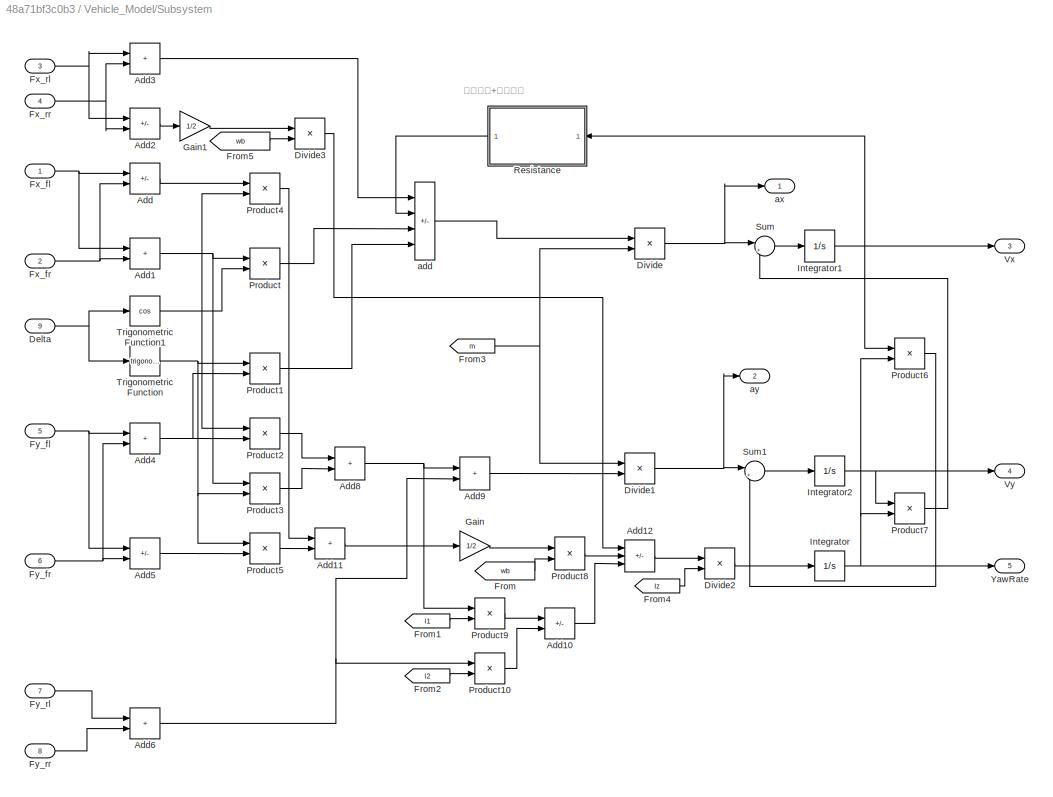
BLOCK [SubSystem] Vehicle_Model/Subsystem
  Ports = [9, 5]
  RequestExecContextInheritance = off
BLOCK [Sum] Vehicle_Model/Subsystem/Add
  IconShape = rectangular
  Inputs = +-
  Ports = [2, 1]
BLOCK [Sum] Vehicle_Model/Subsystem/Add1
  IconShape = rectangular
  Ports = [2, 1]
BLOCK [Sum] Vehicle_Model/Subsystem/Add10
  IconShape = rectangular
  Inputs = +-
  Ports = [2, 1]
BLOCK [Sum] Vehicle_Model/Subsystem/Add11
  IconShape = rectangular
  Ports = [2, 1]
BLOCK [Sum] Vehicle_Model/Subsystem/Add12
  IconShape = rectangular
  Inputs = -++
  Ports = [3, 1]
BLOCK [Sum] Vehicle_Model/Subsystem/Add2
  IconShape = rectangular
  Inputs = +-
  Ports = [2, 1]
BLOCK [Sum] Vehicle_Model/Subsystem/Add3
  IconShape = rectangular
  Ports = [2, 1]
BLOCK [Sum] Vehicle_Model/Subsystem/Add4
  IconShape = rectangular
  Ports = [2, 1]
BLOCK [Sum] Vehicle_Model/Subsystem/Add5
  IconShape = rectangular
  Inputs = +-
  Ports = [2, 1]
BLOCK [Sum] Vehicle_Model/Subsystem/Add6
  IconShape = rectangular
  Ports = [2, 1]
BLOCK [Sum] Vehicle_Model/Subsystem/Add8
  IconShape = rectangular
  Ports = [2, 1]
BLOCK [Sum] Vehicle_Model/Subsystem/Add9
  IconShape = rectangular
  Ports = [2, 1]
BLOCK [Inport] Vehicle_Model/Subsystem/Delta
  Port = 9
BLOCK [Product] Vehicle_Model/Subsystem/Divide
  Inputs = */
  Ports = [2, 1]
BLOCK [Product] Vehicle_Model/Subsystem/Divide1
  Inputs = /*
  Ports = [2, 1]
BLOCK [Product] Vehicle_Model/Subsystem/Divide2
  Inputs = */
  Ports = [2, 1]
BLOCK [Product] Vehicle_Model/Subsystem/Divide3
  Inputs = **
  Ports = [2, 1]
BLOCK [From] Vehicle_Model/Subsystem/From
  GotoTag = wb
  TagVisibility = global
BLOCK [From] Vehicle_Model/Subsystem/From1
  GotoTag = l1
  TagVisibility = global
BLOCK [From] Vehicle_Model/Subsystem/From2
  GotoTag = l2
  TagVisibility = global
BLOCK [From] Vehicle_Model/Subsystem/From3
  GotoTag = m
  TagVisibility = global
BLOCK [From] Vehicle_Model/Subsystem/From4
  GotoTag = Iz
  TagVisibility = global
BLOCK [From] Vehicle_Model/Subsystem/From5
  GotoTag = wb
  TagVisibility = global
BLOCK [Inport] Vehicle_Model/Subsystem/Fx_fl
BLOCK [Inport] Vehicle_Model/Subsystem/Fx_fr
  Port = 2
BLOCK [Inport] Vehicle_Model/Subsystem/Fx_rl
  Port = 3
BLOCK [Inport] Vehicle_Model/Subsystem/Fx_rr
  Port = 4
BLOCK [Inport] Vehicle_Model/Subsystem/Fy_fl
  Port = 5
BLOCK [Inport] Vehicle_Model/Subsystem/Fy_fr
  Port = 6
BLOCK [Inport] Vehicle_Model/Subsystem/Fy_rl
  Port = 7
BLOCK [Inport] Vehicle_Model/Subsystem/Fy_rr
  Port = 8
BLOCK [Gain] Vehicle_Model/Subsystem/Gain
  Gain = 1/2
BLOCK [Gain] Vehicle_Model/Subsystem/Gain1
  Gain = 1/2
BLOCK [Integrator] Vehicle_Model/Subsystem/Integrator
  Ports = [1, 1]
BLOCK [Integrator] Vehicle_Model/Subsystem/Integrator1
  InitialCondition = eps
  LowerSaturationLimit = 0
  Ports = [1, 1]
  UpperSaturationLimit = 35
BLOCK [Integrator] Vehicle_Model/Subsystem/Integrator2
  Ports = [1, 1]
BLOCK [Product] Vehicle_Model/Subsystem/Product
  Ports = [2, 1]
  RndMeth = Zero
BLOCK [Product] Vehicle_Model/Subsystem/Product1
  Ports = [2, 1]
  RndMeth = Zero
BLOCK [Product] Vehicle_Model/Subsystem/Product10
  Ports = [2, 1]
BLOCK [Product] Vehicle_Model/Subsystem/Product2
  Ports = [2, 1]
  RndMeth = Zero
BLOCK [Product] Vehicle_Model/Subsystem/Product3
  Ports = [2, 1]
  RndMeth = Zero
BLOCK [Product] Vehicle_Model/Subsystem/Product4
  Ports = [2, 1]
  RndMeth = Zero
BLOCK [Product] Vehicle_Model/Subsystem/Product5
  Ports = [2, 1]
  RndMeth = Zero
BLOCK [Product] Vehicle_Model/Subsystem/Product6
  Ports = [2, 1]
  RndMeth = Zero
BLOCK [Product] Vehicle_Model/Subsystem/Product7
  Ports = [2, 1]
  RndMeth = Zero
BLOCK [Product] Vehicle_Model/Subsystem/Product8
  Ports = [2, 1]
BLOCK [Product] Vehicle_Model/Subsystem/Product9
  Ports = [2, 1]
BLOCK [SubSystem] Vehicle_Model/Subsystem/Resistance
  Ports = [1, 1]
  RequestExecContextInheritance = off
BLOCK [Constant] Vehicle_Model/Subsystem/Resistance/A1
  Value = 1/21.15
BLOCK [Sum] Vehicle_Model/Subsystem/Resistance/Add5
  IconShape = rectangular
  Ports = [2, 1]
BLOCK [Sum] Vehicle_Model/Subsystem/Resistance/Add6
  IconShape = rectangular
  Ports = [2, 1]
BLOCK [Constant] Vehicle_Model/Subsystem/Resistance/Constant
BLOCK [Constant] Vehicle_Model/Subsystem/Resistance/Constant1
  Value = 0
BLOCK [From] Vehicle_Model/Subsystem/Resistance/From
  GotoTag = Cd
  TagVisibility = global
BLOCK [From] Vehicle_Model/Subsystem/Resistance/From1
  TagVisibility = global
BLOCK [From] Vehicle_Model/Subsystem/Resistance/From2
  GotoTag = m
  TagVisibility = global
BLOCK [From] Vehicle_Model/Subsystem/Resistance/From3
  GotoTag = Roll_Res_Coe
  TagVisibility = global
BLOCK [From] Vehicle_Model/Subsystem/Resistance/From4
  GotoTag = g
  TagVisibility = global
BLOCK [Gain] Vehicle_Model/Subsystem/Resistance/Gain
  Gain = 3.6*3.6
BLOCK [Gain] Vehicle_Model/Subsystem/Resistance/Gain1
  Gain = 1/1500
BLOCK [Math] Vehicle_Model/Subsystem/Resistance/Math Function
  Operator = square
  Ports = [1, 1]
  SignedPower = on
BLOCK [Product] Vehicle_Model/Subsystem/Resistance/Product
  Inputs = 3
  Ports = [3, 1]
BLOCK [Product] Vehicle_Model/Subsystem/Resistance/Product10
  Inputs = 3
  Ports = [3, 1]
  RndMeth = Zero
BLOCK [Product] Vehicle_Model/Subsystem/Resistance/Product11
  Ports = [2, 1]
  RndMeth = Zero
BLOCK [Product] Vehicle_Model/Subsystem/Resistance/Product12
  Ports = [2, 1]
  RndMeth = Zero
BLOCK [Outport] Vehicle_Model/Subsystem/Resistance/Resistance
BLOCK [Switch] Vehicle_Model/Subsystem/Resistance/Switch
  Criteria = u2 > Threshold
  InputSameDT = off
  SaturateOnIntegerOverflow = off
BLOCK [Inport] Vehicle_Model/Subsystem/Resistance/Vx 
BLOCK [Sum] Vehicle_Model/Subsystem/Sum
  Inputs = |++
  Ports = [2, 1]
BLOCK [Sum] Vehicle_Model/Subsystem/Sum1
  Inputs = |+-
  Ports = [2, 1]
BLOCK [Trigonometry] Vehicle_Model/Subsystem/Trigonometric Function
  Ports = [1, 1]
BLOCK [Trigonometry] Vehicle_Model/Subsystem/Trigonometric Function1
  Operator = cos
  Ports = [1, 1]
BLOCK [Outport] Vehicle_Model/Subsystem/Vx
  Port = 3
BLOCK [Outport] Vehicle_Model/Subsystem/Vy
  Port = 4
BLOCK [Outport] Vehicle_Model/Subsystem/YawRate
  Port = 5
BLOCK [Sum] Vehicle_Model/Subsystem/add
  IconShape = rectangular
  Inputs = +-+-
  Ports = [4, 1]
BLOCK [Outport] Vehicle_Model/Subsystem/ax
BLOCK [Outport] Vehicle_Model/Subsystem/ay
  Port = 2
BLOCK [Outport] Vehicle_Model/Vx
  Port = 2
BLOCK [Outport] Vehicle_Model/Vy
BLOCK [Outport] Vehicle_Model/YawRate
  Port = 3
BLOCK [Outport] Vehicle_Model/ax
  Port = 4
BLOCK [Outport] Vehicle_Model/ay
  Port = 5
BLOCK [SubSystem] Wheel_Model
  Ports = [2, 1]
  RequestExecContextInheritance = off
BLOCK [Inport] Wheel_Model/Braking_Force
  Port = 2
BLOCK [Demux] Wheel_Model/Demux1
  Ports = [1, 4]
BLOCK [Demux] Wheel_Model/Demux2
  Ports = [1, 4]
BLOCK [Inport] Wheel_Model/Driving_Force
BLOCK [From] Wheel_Model/From
  GotoTag = Wheel_palstance_fl
BLOCK [From] Wheel_Model/From1
  GotoTag = Wheel_palstance_fr
BLOCK [From] Wheel_Model/From10
  GotoTag = Driving_Force_rr
BLOCK [From] Wheel_Model/From11
  GotoTag = Braking_Force_rr
BLOCK [From] Wheel_Model/From2
  GotoTag = Wheel_palstance_rl
BLOCK [From] Wheel_Model/From3
  GotoTag = Wheel_palstance_rr
BLOCK [From] Wheel_Model/From4
  GotoTag = Driving_Force_fl
BLOCK [From] Wheel_Model/From5
  GotoTag = Braking_Force_fl
BLOCK [From] Wheel_Model/From6
  GotoTag = Driving_Force_fr
BLOCK [From] Wheel_Model/From7
  GotoTag = Braking_Force_fr
BLOCK [From] Wheel_Model/From8
  GotoTag = Braking_Force_rl
BLOCK [From] Wheel_Model/From9
  GotoTag = Driving_Force_rl
BLOCK [Goto] Wheel_Model/Goto
  GotoTag = Driving_Force_fl
BLOCK [Goto] Wheel_Model/Goto1
  GotoTag = Driving_Force_fr
BLOCK [Goto] Wheel_Model/Goto10
  GotoTag = Wheel_palstance_rl
BLOCK [Goto] Wheel_Model/Goto11
  GotoTag = Wheel_palstance_rr
BLOCK [Goto] Wheel_Model/Goto2
  GotoTag = Driving_Force_rl
BLOCK [Goto] Wheel_Model/Goto3
  GotoTag = Driving_Force_rr
BLOCK [Goto] Wheel_Model/Goto4
  GotoTag = Braking_Force_fl
BLOCK [Goto] Wheel_Model/Goto5
  GotoTag = Braking_Force_fr
BLOCK [Goto] Wheel_Model/Goto6
  GotoTag = Braking_Force_rl
BLOCK [Goto] Wheel_Model/Goto7
  GotoTag = Braking_Force_rr
BLOCK [Goto] Wheel_Model/Goto8
  GotoTag = Wheel_palstance_fl
BLOCK [Goto] Wheel_Model/Goto9
  GotoTag = Wheel_palstance_fr
BLOCK [Mux] Wheel_Model/Mux
  DisplayOption = bar
  Ports = [4, 1]
BLOCK [SubSystem] Wheel_Model/Subsystem
  Ports = [2, 1]
  RequestExecContextInheritance = off
BLOCK [Sum] Wheel_Model/Subsystem/Add
  IconShape = rectangular
  Inputs = +-
  Ports = [2, 1]
BLOCK [Inport] Wheel_Model/Subsystem/Braking_Force
  Port = 2
BLOCK [Product] Wheel_Model/Subsystem/Divide
  Inputs = *//
  Ports = [3, 1]
BLOCK [Inport] Wheel_Model/Subsystem/Driving_Force
BLOCK [From] Wheel_Model/Subsystem/From6
  GotoTag = R
  TagVisibility = global
BLOCK [From] Wheel_Model/Subsystem/From7
  GotoTag = m
  TagVisibility = global
BLOCK [Integrator] Wheel_Model/Subsystem/Integrator
  Ports = [1, 1]
BLOCK [Outport] Wheel_Model/Subsystem/Wheel_palstance
BLOCK [SubSystem] Wheel_Model/Subsystem1
  Ports = [2, 1]
  RequestExecContextInheritance = off
BLOCK [Sum] Wheel_Model/Subsystem1/Add
  IconShape = rectangular
  Inputs = +-
  Ports = [2, 1]
BLOCK [Inport] Wheel_Model/Subsystem1/Braking_Force
  Port = 2
BLOCK [Product] Wheel_Model/Subsystem1/Divide
  Inputs = *//
  Ports = [3, 1]
BLOCK [Inport] Wheel_Model/Subsystem1/Driving_Force
BLOCK [From] Wheel_Model/Subsystem1/From6
  GotoTag = R
  TagVisibility = global
BLOCK [From] Wheel_Model/Subsystem1/From7
  GotoTag = m
  TagVisibility = global
BLOCK [Integrator] Wheel_Model/Subsystem1/Integrator
  Ports = [1, 1]
BLOCK [Outport] Wheel_Model/Subsystem1/Wheel_palstance
BLOCK [SubSystem] Wheel_Model/Subsystem2
  Ports = [2, 1]
  RequestExecContextInheritance = off
BLOCK [Sum] Wheel_Model/Subsystem2/Add
  IconShape = rectangular
  Inputs = +-
  Ports = [2, 1]
BLOCK [Inport] Wheel_Model/Subsystem2/Braking_Force
  Port = 2
BLOCK [Product] Wheel_Model/Subsystem2/Divide
  Inputs = *//
  Ports = [3, 1]
BLOCK [Inport] Wheel_Model/Subsystem2/Driving_Force
BLOCK [From] Wheel_Model/Subsystem2/From6
  GotoTag = R
  TagVisibility = global
BLOCK [From] Wheel_Model/Subsystem2/From7
  GotoTag = m
  TagVisibility = global
BLOCK [Integrator] Wheel_Model/Subsystem2/Integrator
  Ports = [1, 1]
BLOCK [Outport] Wheel_Model/Subsystem2/Wheel_palstance
BLOCK [SubSystem] Wheel_Model/Subsystem3
  Ports = [2, 1]
  RequestExecContextInheritance = off
BLOCK [Sum] Wheel_Model/Subsystem3/Add
  IconShape = rectangular
  Inputs = +-
  Ports = [2, 1]
BLOCK [Inport] Wheel_Model/Subsystem3/Braking_Force
  Port = 2
BLOCK [Product] Wheel_Model/Subsystem3/Divide
  Inputs = *//
  Ports = [3, 1]
BLOCK [Inport] Wheel_Model/Subsystem3/Driving_Force
BLOCK [From] Wheel_Model/Subsystem3/From6
  GotoTag = R
  TagVisibility = global
BLOCK [From] Wheel_Model/Subsystem3/From7
  GotoTag = m
  TagVisibility = global
BLOCK [Integrator] Wheel_Model/Subsystem3/Integrator
  Ports = [1, 1]
BLOCK [Outport] Wheel_Model/Subsystem3/Wheel_palstance
BLOCK [Outport] Wheel_Model/Wheel_palstance
ANNOTATION Vehicle_Model/Subsystem: 空气阻力+滚动阻力
LINE Calculation/Demux1:1 -> Calculation/Goto4:1
LINE Calculation/Demux1:2 -> Calculation/Goto5:1
LINE Calculation/Demux1:3 -> Calculation/Goto6:1
LINE Calculation/Demux1:4 -> Calculation/Goto7:1
LINE Calculation/Demux5:1 -> Calculation/Goto22:1
LINE Calculation/Demux5:2 -> Calculation/Goto23:1
LINE Calculation/Demux5:3 -> Calculation/Goto20:1
LINE Calculation/Demux5:4 -> Calculation/Goto21:1
LINE Calculation/Demux:1 -> Calculation/Goto:1
LINE Calculation/Demux:2 -> Calculation/Goto1:1
LINE Calculation/Demux:3 -> Calculation/Goto2:1
LINE Calculation/Demux:4 -> Calculation/Goto3:1
LINE Calculation/From10:1 -> Calculation/Mux2:2
LINE Calculation/From11:1 -> Calculation/Mux2:1
LINE Calculation/From12:1 -> Calculation/Subsystem:1
LINE Calculation/From13:1 -> Calculation/Subsystem:3
LINE Calculation/From14:1 -> Calculation/Subsystem:2
LINE Calculation/From15:1 -> Calculation/Subsystem1:3
LINE Calculation/From16:1 -> Calculation/Subsystem1:1
LINE Calculation/From17:1 -> Calculation/Subsystem1:2
LINE Calculation/From18:1 -> Calculation/Subsystem2:1
LINE Calculation/From19:1 -> Calculation/Subsystem2:3
LINE Calculation/From1:1 -> Calculation/Mux:2
LINE Calculation/From20:1 -> Calculation/Subsystem2:2
LINE Calculation/From21:1 -> Calculation/Subsystem3:3
LINE Calculation/From22:1 -> Calculation/Subsystem3:1
LINE Calculation/From23:1 -> Calculation/Subsystem3:2
LINE Calculation/From24:1 -> Calculation/Subsystem6:3
LINE Calculation/From25:1 -> Calculation/Subsystem4:3
LINE Calculation/From26:1 -> Calculation/Subsystem4:1
LINE Calculation/From27:1 -> Calculation/Subsystem6:1
LINE Calculation/From28:1 -> Calculation/Subsystem6:2
LINE Calculation/From29:1 -> Calculation/Subsystem4:2
LINE Calculation/From2:1 -> Calculation/Mux:3
LINE Calculation/From30:1 -> Calculation/Subsystem5:3
LINE Calculation/From31:1 -> Calculation/Subsystem5:1
LINE Calculation/From32:1 -> Calculation/Subsystem5:2
LINE Calculation/From33:1 -> Calculation/Subsystem8:3
LINE Calculation/From34:1 -> Calculation/Subsystem8:1
LINE Calculation/From35:1 -> Calculation/Subsystem8:2
LINE Calculation/From36:1 -> Calculation/Subsystem7:1
LINE Calculation/From37:1 -> Calculation/Subsystem7:2
LINE Calculation/From38:1 -> Calculation/Subsystem7:3
LINE Calculation/From39:1 -> Calculation/Subsystem7:4
LINE Calculation/From3:1 -> Calculation/Mux:4
LINE Calculation/From40:1 -> Calculation/Subsystem7:5
LINE Calculation/From41:1 -> Calculation/Subsystem7:6
LINE Calculation/From42:1 -> Calculation/Subsystem7:7
LINE Calculation/From43:1 -> Calculation/Subsystem7:8
LINE Calculation/From44:1 -> Calculation/Subsystem9:1
LINE Calculation/From45:1 -> Calculation/Subsystem9:2
LINE Calculation/From46:1 -> Calculation/Subsystem9:3
LINE Calculation/From47:1 -> Calculation/Subsystem9:4
LINE Calculation/From48:1 -> Calculation/Subsystem9:5
LINE Calculation/From49:1 -> Calculation/Subsystem9:6
LINE Calculation/From4:1 -> Calculation/Mux1:4
LINE Calculation/From50:1 -> Calculation/Subsystem9:7
LINE Calculation/From51:1 -> Calculation/Subsystem9:8
LINE Calculation/From52:1 -> Calculation/Subsystem10:1
LINE Calculation/From53:1 -> Calculation/Subsystem10:2
LINE Calculation/From54:1 -> Calculation/Subsystem10:3
LINE Calculation/From55:1 -> Calculation/Subsystem10:4
LINE Calculation/From56:1 -> Calculation/Subsystem10:5
LINE Calculation/From57:1 -> Calculation/Subsystem10:6
LINE Calculation/From58:1 -> Calculation/Subsystem10:7
LINE Calculation/From59:1 -> Calculation/Subsystem10:8
LINE Calculation/From5:1 -> Calculation/Mux1:1
LINE Calculation/From60:1 -> Calculation/Subsystem11:1
LINE Calculation/From61:1 -> Calculation/Subsystem11:2
LINE Calculation/From62:1 -> Calculation/Subsystem11:3
LINE Calculation/From63:1 -> Calculation/Subsystem11:4
LINE Calculation/From64:1 -> Calculation/Subsystem11:5
LINE Calculation/From65:1 -> Calculation/Subsystem11:6
LINE Calculation/From66:1 -> Calculation/Subsystem11:7
LINE Calculation/From67:1 -> Calculation/Subsystem11:8
LINE Calculation/From6:1 -> Calculation/Mux1:2
LINE Calculation/From7:1 -> Calculation/Mux1:3
LINE Calculation/From8:1 -> Calculation/Mux2:4
LINE Calculation/From9:1 -> Calculation/Mux2:3
LINE Calculation/From:1 -> Calculation/Mux:1
LINE Calculation/Mux1:1 -> Calculation/Beta:1
LINE Calculation/Mux2:1 -> Calculation/Vertical_Loading:1
LINE Calculation/Mux:1 -> Calculation/SlipRate:1
LINE Calculation/Subsystem/Abs:1 -> Calculation/Subsystem/Divide:1
LINE Calculation/Subsystem/Add1:1 -> Calculation/Subsystem/Abs:1
NET Calculation/Subsystem/Add:1 -> Calculation/Subsystem/Add1:1, Calculation/Subsystem/Max:1
LINE Calculation/Subsystem/Cos1:1 -> Calculation/Subsystem/Product2:1
LINE Calculation/Subsystem/Cos:1 -> Calculation/Subsystem/Product1:1
LINE Calculation/Subsystem/Divide:1 -> Calculation/Subsystem/SlipRate:1
LINE Calculation/Subsystem/From1:1 -> Calculation/Subsystem/Cos:1
LINE Calculation/Subsystem/From2:1 -> Calculation/Subsystem/Cos1:1
LINE Calculation/Subsystem/From:1 -> Calculation/Subsystem/Product:2
LINE Calculation/Subsystem/Max:1 -> Calculation/Subsystem/Divide:2
LINE Calculation/Subsystem/Product1:1 -> Calculation/Subsystem/Add:2
LINE Calculation/Subsystem/Product2:1 -> Calculation/Subsystem/Add:1
NET Calculation/Subsystem/Product:1 -> Calculation/Subsystem/Add1:2, Calculation/Subsystem/Max:2
LINE Calculation/Subsystem/Vx:1 -> Calculation/Subsystem/Product1:2
LINE Calculation/Subsystem/Vy:1 -> Calculation/Subsystem/Product2:2
LINE Calculation/Subsystem/Wheel_palstance:1 -> Calculation/Subsystem/Product:1
LINE Calculation/Subsystem1/Abs:1 -> Calculation/Subsystem1/Divide:1
LINE Calculation/Subsystem1/Add1:1 -> Calculation/Subsystem1/Abs:1
NET Calculation/Subsystem1/Add:1 -> Calculation/Subsystem1/Add1:1, Calculation/Subsystem1/Max:1
LINE Calculation/Subsystem1/Cos1:1 -> Calculation/Subsystem1/Product2:1
LINE Calculation/Subsystem1/Cos:1 -> Calculation/Subsystem1/Product1:1
LINE Calculation/Subsystem1/Divide:1 -> Calculation/Subsystem1/SlipRate:1
LINE Calculation/Subsystem1/From1:1 -> Calculation/Subsystem1/Cos:1
LINE Calculation/Subsystem1/From2:1 -> Calculation/Subsystem1/Cos1:1
LINE Calculation/Subsystem1/From:1 -> Calculation/Subsystem1/Product:2
LINE Calculation/Subsystem1/Max:1 -> Calculation/Subsystem1/Divide:2
LINE Calculation/Subsystem1/Product1:1 -> Calculation/Subsystem1/Add:2
LINE Calculation/Subsystem1/Product2:1 -> Calculation/Subsystem1/Add:1
NET Calculation/Subsystem1/Product:1 -> Calculation/Subsystem1/Add1:2, Calculation/Subsystem1/Max:2
LINE Calculation/Subsystem1/Vx:1 -> Calculation/Subsystem1/Product1:2
LINE Calculation/Subsystem1/Vy:1 -> Calculation/Subsystem1/Product2:2
LINE Calculation/Subsystem1/Wheel_palstance:1 -> Calculation/Subsystem1/Product:1
LINE Calculation/Subsystem10/Add:1 -> Calculation/Subsystem10/Vertical_Loading_fr:1
NET Calculation/Subsystem10/L1:1 -> Calculation/Subsystem10/Subsystem1:1, Calculation/Subsystem10/Subsystem2:1, Calculation/Subsystem10/Subsystem:1
NET Calculation/Subsystem10/L2:1 -> Calculation/Subsystem10/Subsystem1:2, Calculation/Subsystem10/Subsystem2:2, Calculation/Subsystem10/Subsystem2:3, Calculation/Subsystem10/Subsystem:2
LINE Calculation/Subsystem10/Subsystem/Add:1 -> Calculation/Subsystem10/Subsystem/Gain:1
LINE Calculation/Subsystem10/Subsystem/Divide:1 -> Calculation/Subsystem10/Subsystem/Out1:1
LINE Calculation/Subsystem10/Subsystem/Gain:1 -> Calculation/Subsystem10/Subsystem/Divide:4
LINE Calculation/Subsystem10/Subsystem/In1:1 -> Calculation/Subsystem10/Subsystem/Add:1
NET Calculation/Subsystem10/Subsystem/In2:1 -> Calculation/Subsystem10/Subsystem/Add:2, Calculation/Subsystem10/Subsystem/Divide:1
LINE Calculation/Subsystem10/Subsystem/In3:1 -> Calculation/Subsystem10/Subsystem/Divide:2
LINE Calculation/Subsystem10/Subsystem/In4:1 -> Calculation/Subsystem10/Subsystem/Divide:3
LINE Calculation/Subsystem10/Subsystem1/Add:1 -> Calculation/Subsystem10/Subsystem1/Gain:1
LINE Calculation/Subsystem10/Subsystem1/Divide:1 -> Calculation/Subsystem10/Subsystem1/Out1:1
LINE Calculation/Subsystem10/Subsystem1/Gain:1 -> Calculation/Subsystem10/Subsystem1/Divide:4
LINE Calculation/Subsystem10/Subsystem1/In1:1 -> Calculation/Subsystem10/Subsystem1/Add:1
LINE Calculation/Subsystem10/Subsystem1/In2:1 -> Calculation/Subsystem10/Subsystem1/Add:2
LINE Calculation/Subsystem10/Subsystem1/In3:1 -> Calculation/Subsystem10/Subsystem1/Divide:1
LINE Calculation/Subsystem10/Subsystem1/In4:1 -> Calculation/Subsystem10/Subsystem1/Divide:3
LINE Calculation/Subsystem10/Subsystem1/In5:1 -> Calculation/Subsystem10/Subsystem1/Divide:2
LINE Calculation/Subsystem10/Subsystem1:1 -> Calculation/Subsystem10/Add:2
LINE Calculation/Subsystem10/Subsystem2/Add:1 -> Calculation/Subsystem10/Subsystem2/Gain:1
LINE Calculation/Subsystem10/Subsystem2/Divide:1 -> Calculation/Subsystem10/Subsystem2/Out1:1
LINE Calculation/Subsystem10/Subsystem2/Gain:1 -> Calculation/Subsystem10/Subsystem2/Divide:6
LINE Calculation/Subsystem10/Subsystem2/In1:1 -> Calculation/Subsystem10/Subsystem2/Add:1
LINE Calculation/Subsystem10/Subsystem2/In2:1 -> Calculation/Subsystem10/Subsystem2/Add:2
LINE Calculation/Subsystem10/Subsystem2/In3:1 -> Calculation/Subsystem10/Subsystem2/Divide:4
LINE Calculation/Subsystem10/Subsystem2/In4:1 -> Calculation/Subsystem10/Subsystem2/Divide:1
LINE Calculation/Subsystem10/Subsystem2/In5:1 -> Calculation/Subsystem10/Subsystem2/Divide:3
LINE Calculation/Subsystem10/Subsystem2/In6:1 -> Calculation/Subsystem10/Subsystem2/Divide:5
LINE Calculation/Subsystem10/Subsystem2/In7:1 -> Calculation/Subsystem10/Subsystem2/Divide:2
LINE Calculation/Subsystem10/Subsystem2:1 -> Calculation/Subsystem10/Add:3
LINE Calculation/Subsystem10/Subsystem:1 -> Calculation/Subsystem10/Add:1
LINE Calculation/Subsystem10/ax:1 -> Calculation/Subsystem10/Subsystem1:5
LINE Calculation/Subsystem10/ay:1 -> Calculation/Subsystem10/Subsystem2:7
LINE Calculation/Subsystem10/g:1 -> Calculation/Subsystem10/Subsystem:4
NET Calculation/Subsystem10/hg:1 -> Calculation/Subsystem10/Subsystem1:4, Calculation/Subsystem10/Subsystem2:5
NET Calculation/Subsystem10/m:1 -> Calculation/Subsystem10/Subsystem1:3, Calculation/Subsystem10/Subsystem2:4, Calculation/Subsystem10/Subsystem:3
LINE Calculation/Subsystem10/wb:1 -> Calculation/Subsystem10/Subsystem2:6
LINE Calculation/Subsystem10:1 -> Calculation/Goto19:1
LINE Calculation/Subsystem11/Add:1 -> Calculation/Subsystem11/Vertical_Loading_rl:1
NET Calculation/Subsystem11/L1:1 -> Calculation/Subsystem11/Subsystem1:1, Calculation/Subsystem11/Subsystem2:1, Calculation/Subsystem11/Subsystem:1
NET Calculation/Subsystem11/L2:1 -> Calculation/Subsystem11/Subsystem1:2, Calculation/Subsystem11/Subsystem2:2, Calculation/Subsystem11/Subsystem2:3, Calculation/Subsystem11/Subsystem:2
LINE Calculation/Subsystem11/Subsystem/Add:1 -> Calculation/Subsystem11/Subsystem/Gain:1
LINE Calculation/Subsystem11/Subsystem/Divide:1 -> Calculation/Subsystem11/Subsystem/Out1:1
LINE Calculation/Subsystem11/Subsystem/Gain:1 -> Calculation/Subsystem11/Subsystem/Divide:4
NET Calculation/Subsystem11/Subsystem/In1:1 -> Calculation/Subsystem11/Subsystem/Add:2, Calculation/Subsystem11/Subsystem/Divide:1
LINE Calculation/Subsystem11/Subsystem/In2:1 -> Calculation/Subsystem11/Subsystem/Add:1
LINE Calculation/Subsystem11/Subsystem/In3:1 -> Calculation/Subsystem11/Subsystem/Divide:2
LINE Calculation/Subsystem11/Subsystem/In4:1 -> Calculation/Subsystem11/Subsystem/Divide:3
LINE Calculation/Subsystem11/Subsystem1/Add:1 -> Calculation/Subsystem11/Subsystem1/Gain:1
LINE Calculation/Subsystem11/Subsystem1/Divide:1 -> Calculation/Subsystem11/Subsystem1/Out1:1
LINE Calculation/Subsystem11/Subsystem1/Gain:1 -> Calculation/Subsystem11/Subsystem1/Divide:4
LINE Calculation/Subsystem11/Subsystem1/In1:1 -> Calculation/Subsystem11/Subsystem1/Add:1
LINE Calculation/Subsystem11/Subsystem1/In2:1 -> Calculation/Subsystem11/Subsystem1/Add:2
LINE Calculation/Subsystem11/Subsystem1/In3:1 -> Calculation/Subsystem11/Subsystem1/Divide:1
LINE Calculation/Subsystem11/Subsystem1/In4:1 -> Calculation/Subsystem11/Subsystem1/Divide:3
LINE Calculation/Subsystem11/Subsystem1/In5:1 -> Calculation/Subsystem11/Subsystem1/Divide:2
LINE Calculation/Subsystem11/Subsystem1:1 -> Calculation/Subsystem11/Add:2
LINE Calculation/Subsystem11/Subsystem2/Add:1 -> Calculation/Subsystem11/Subsystem2/Gain:1
LINE Calculation/Subsystem11/Subsystem2/Divide:1 -> Calculation/Subsystem11/Subsystem2/Out1:1
LINE Calculation/Subsystem11/Subsystem2/Gain:1 -> Calculation/Subsystem11/Subsystem2/Divide:6
LINE Calculation/Subsystem11/Subsystem2/In1:1 -> Calculation/Subsystem11/Subsystem2/Add:2
LINE Calculation/Subsystem11/Subsystem2/In2:1 -> Calculation/Subsystem11/Subsystem2/Add:1
LINE Calculation/Subsystem11/Subsystem2/In3:1 -> Calculation/Subsystem11/Subsystem2/Divide:4
LINE Calculation/Subsystem11/Subsystem2/In4:1 -> Calculation/Subsystem11/Subsystem2/Divide:1
LINE Calculation/Subsystem11/Subsystem2/In5:1 -> Calculation/Subsystem11/Subsystem2/Divide:3
LINE Calculation/Subsystem11/Subsystem2/In6:1 -> Calculation/Subsystem11/Subsystem2/Divide:5
LINE Calculation/Subsystem11/Subsystem2/In7:1 -> Calculation/Subsystem11/Subsystem2/Divide:2
LINE Calculation/Subsystem11/Subsystem2:1 -> Calculation/Subsystem11/Add:3
LINE Calculation/Subsystem11/Subsystem:1 -> Calculation/Subsystem11/Add:1
LINE Calculation/Subsystem11/ax:1 -> Calculation/Subsystem11/Subsystem1:5
LINE Calculation/Subsystem11/ay:1 -> Calculation/Subsystem11/Subsystem2:7
LINE Calculation/Subsystem11/g:1 -> Calculation/Subsystem11/Subsystem:4
NET Calculation/Subsystem11/hg:1 -> Calculation/Subsystem11/Subsystem1:4, Calculation/Subsystem11/Subsystem2:5
NET Calculation/Subsystem11/m:1 -> Calculation/Subsystem11/Subsystem1:3, Calculation/Subsystem11/Subsystem2:4, Calculation/Subsystem11/Subsystem:3
LINE Calculation/Subsystem11/wb:1 -> Calculation/Subsystem11/Subsystem2:6
LINE Calculation/Subsystem11:1 -> Calculation/Goto32:1
LINE Calculation/Subsystem1:1 -> Calculation/Goto25:1
LINE Calculation/Subsystem2/Abs:1 -> Calculation/Subsystem2/Divide:1
LINE Calculation/Subsystem2/Add1:1 -> Calculation/Subsystem2/Abs:1
NET Calculation/Subsystem2/Add:1 -> Calculation/Subsystem2/Add1:1, Calculation/Subsystem2/Max:1
LINE Calculation/Subsystem2/Cos1:1 -> Calculation/Subsystem2/Product2:1
LINE Calculation/Subsystem2/Cos:1 -> Calculation/Subsystem2/Product1:1
LINE Calculation/Subsystem2/Divide:1 -> Calculation/Subsystem2/SlipRate:1
LINE Calculation/Subsystem2/From1:1 -> Calculation/Subsystem2/Cos:1
LINE Calculation/Subsystem2/From2:1 -> Calculation/Subsystem2/Cos1:1
LINE Calculation/Subsystem2/From:1 -> Calculation/Subsystem2/Product:2
LINE Calculation/Subsystem2/Max:1 -> Calculation/Subsystem2/Divide:2
LINE Calculation/Subsystem2/Product1:1 -> Calculation/Subsystem2/Add:2
LINE Calculation/Subsystem2/Product2:1 -> Calculation/Subsystem2/Add:1
NET Calculation/Subsystem2/Product:1 -> Calculation/Subsystem2/Add1:2, Calculation/Subsystem2/Max:2
LINE Calculation/Subsystem2/Vx:1 -> Calculation/Subsystem2/Product1:2
LINE Calculation/Subsystem2/Vy:1 -> Calculation/Subsystem2/Product2:2
LINE Calculation/Subsystem2/Wheel_palstance:1 -> Calculation/Subsystem2/Product:1
LINE Calculation/Subsystem2:1 -> Calculation/Goto26:1
LINE Calculation/Subsystem3/Abs:1 -> Calculation/Subsystem3/Divide:1
LINE Calculation/Subsystem3/Add1:1 -> Calculation/Subsystem3/Abs:1
NET Calculation/Subsystem3/Add:1 -> Calculation/Subsystem3/Add1:1, Calculation/Subsystem3/Max:1
LINE Calculation/Subsystem3/Cos1:1 -> Calculation/Subsystem3/Product2:1
LINE Calculation/Subsystem3/Cos:1 -> Calculation/Subsystem3/Product1:1
LINE Calculation/Subsystem3/Divide:1 -> Calculation/Subsystem3/SlipRate:1
LINE Calculation/Subsystem3/From1:1 -> Calculation/Subsystem3/Cos:1
LINE Calculation/Subsystem3/From2:1 -> Calculation/Subsystem3/Cos1:1
LINE Calculation/Subsystem3/From:1 -> Calculation/Subsystem3/Product:2
LINE Calculation/Subsystem3/Max:1 -> Calculation/Subsystem3/Divide:2
LINE Calculation/Subsystem3/Product1:1 -> Calculation/Subsystem3/Add:2
LINE Calculation/Subsystem3/Product2:1 -> Calculation/Subsystem3/Add:1
NET Calculation/Subsystem3/Product:1 -> Calculation/Subsystem3/Add1:2, Calculation/Subsystem3/Max:2
LINE Calculation/Subsystem3/Vx:1 -> Calculation/Subsystem3/Product1:2
LINE Calculation/Subsystem3/Vy:1 -> Calculation/Subsystem3/Product2:2
LINE Calculation/Subsystem3/Wheel_palstance:1 -> Calculation/Subsystem3/Product:1
LINE Calculation/Subsystem3:1 -> Calculation/Goto27:1
LINE Calculation/Subsystem4/Add1:1 -> Calculation/Subsystem4/Divide:1
LINE Calculation/Subsystem4/Add2:1 -> Calculation/Subsystem4/Beta:1
LINE Calculation/Subsystem4/Add:1 -> Calculation/Subsystem4/Divide:2
LINE Calculation/Subsystem4/Atan:1 -> Calculation/Subsystem4/Add2:2
LINE Calculation/Subsystem4/Divide:1 -> Calculation/Subsystem4/Atan:1
LINE Calculation/Subsystem4/From1:1 -> Calculation/Subsystem4/Add2:1
LINE Calculation/Subsystem4/From24:1 -> Calculation/Subsystem4/Gain:1
LINE Calculation/Subsystem4/From25:1 -> Calculation/Subsystem4/Product:1
LINE Calculation/Subsystem4/Gain:1 -> Calculation/Subsystem4/Product1:2
LINE Calculation/Subsystem4/Product1:1 -> Calculation/Subsystem4/Add1:2
LINE Calculation/Subsystem4/Product:1 -> Calculation/Subsystem4/Add:2
LINE Calculation/Subsystem4/Vx:1 -> Calculation/Subsystem4/Add1:1
LINE Calculation/Subsystem4/Vy:1 -> Calculation/Subsystem4/Add:1
LINE Calculation/Subsystem4/YawRate1:1 -> Calculation/Subsystem4/Product1:1
LINE Calculation/Subsystem4/YawRate:1 -> Calculation/Subsystem4/Product:2
LINE Calculation/Subsystem4:1 -> Calculation/Goto9:1
LINE Calculation/Subsystem5/Add1:1 -> Calculation/Subsystem5/Divide:1
LINE Calculation/Subsystem5/Add:1 -> Calculation/Subsystem5/Divide:2
LINE Calculation/Subsystem5/Atan:1 -> Calculation/Subsystem5/Gain1:1
LINE Calculation/Subsystem5/Divide:1 -> Calculation/Subsystem5/Atan:1
LINE Calculation/Subsystem5/From24:1 -> Calculation/Subsystem5/Gain:1
LINE Calculation/Subsystem5/From25:1 -> Calculation/Subsystem5/Product:1
LINE Calculation/Subsystem5/Gain1:1 -> Calculation/Subsystem5/Beta:1
LINE Calculation/Subsystem5/Gain:1 -> Calculation/Subsystem5/Product1:2
LINE Calculation/Subsystem5/Product1:1 -> Calculation/Subsystem5/Add1:2
LINE Calculation/Subsystem5/Product:1 -> Calculation/Subsystem5/Add:2
LINE Calculation/Subsystem5/Vx:1 -> Calculation/Subsystem5/Add1:1
LINE Calculation/Subsystem5/Vy:1 -> Calculation/Subsystem5/Add:1
LINE Calculation/Subsystem5/YawRate1:1 -> Calculation/Subsystem5/Product1:1
LINE Calculation/Subsystem5/YawRate:1 -> Calculation/Subsystem5/Product:2
LINE Calculation/Subsystem5:1 -> Calculation/Goto10:1
LINE Calculation/Subsystem6/Add1:1 -> Calculation/Subsystem6/Divide:1
LINE Calculation/Subsystem6/Add2:1 -> Calculation/Subsystem6/Beta:1
LINE Calculation/Subsystem6/Add:1 -> Calculation/Subsystem6/Divide:2
LINE Calculation/Subsystem6/Atan:1 -> Calculation/Subsystem6/Add2:2
LINE Calculation/Subsystem6/Divide:1 -> Calculation/Subsystem6/Atan:1
LINE Calculation/Subsystem6/From1:1 -> Calculation/Subsystem6/Add2:1
LINE Calculation/Subsystem6/From24:1 -> Calculation/Subsystem6/Gain:1
LINE Calculation/Subsystem6/From25:1 -> Calculation/Subsystem6/Product:1
LINE Calculation/Subsystem6/Gain:1 -> Calculation/Subsystem6/Product1:2
LINE Calculation/Subsystem6/Product1:1 -> Calculation/Subsystem6/Add1:2
LINE Calculation/Subsystem6/Product:1 -> Calculation/Subsystem6/Add:2
LINE Calculation/Subsystem6/Vx:1 -> Calculation/Subsystem6/Add1:1
LINE Calculation/Subsystem6/Vy:1 -> Calculation/Subsystem6/Add:1
LINE Calculation/Subsystem6/YawRate1:1 -> Calculation/Subsystem6/Product1:1
LINE Calculation/Subsystem6/YawRate:1 -> Calculation/Subsystem6/Product:2
LINE Calculation/Subsystem6:1 -> Calculation/Goto31:1
LINE Calculation/Subsystem7/Add:1 -> Calculation/Subsystem7/Vertical_Loading_fl:1
NET Calculation/Subsystem7/L1:1 -> Calculation/Subsystem7/Subsystem1:1, Calculation/Subsystem7/Subsystem2:1, Calculation/Subsystem7/Subsystem:1
NET Calculation/Subsystem7/L2:1 -> Calculation/Subsystem7/Subsystem1:2, Calculation/Subsystem7/Subsystem2:2, Calculation/Subsystem7/Subsystem2:3, Calculation/Subsystem7/Subsystem:2
LINE Calculation/Subsystem7/Subsystem/Add:1 -> Calculation/Subsystem7/Subsystem/Gain:1
LINE Calculation/Subsystem7/Subsystem/Divide:1 -> Calculation/Subsystem7/Subsystem/Out1:1
LINE Calculation/Subsystem7/Subsystem/Gain:1 -> Calculation/Subsystem7/Subsystem/Divide:4
LINE Calculation/Subsystem7/Subsystem/In1:1 -> Calculation/Subsystem7/Subsystem/Add:1
NET Calculation/Subsystem7/Subsystem/In2:1 -> Calculation/Subsystem7/Subsystem/Add:2, Calculation/Subsystem7/Subsystem/Divide:1
LINE Calculation/Subsystem7/Subsystem/In3:1 -> Calculation/Subsystem7/Subsystem/Divide:2
LINE Calculation/Subsystem7/Subsystem/In4:1 -> Calculation/Subsystem7/Subsystem/Divide:3
LINE Calculation/Subsystem7/Subsystem1/Add:1 -> Calculation/Subsystem7/Subsystem1/Gain:1
LINE Calculation/Subsystem7/Subsystem1/Divide:1 -> Calculation/Subsystem7/Subsystem1/Out1:1
LINE Calculation/Subsystem7/Subsystem1/Gain:1 -> Calculation/Subsystem7/Subsystem1/Divide:4
LINE Calculation/Subsystem7/Subsystem1/In1:1 -> Calculation/Subsystem7/Subsystem1/Add:1
LINE Calculation/Subsystem7/Subsystem1/In2:1 -> Calculation/Subsystem7/Subsystem1/Add:2
LINE Calculation/Subsystem7/Subsystem1/In3:1 -> Calculation/Subsystem7/Subsystem1/Divide:1
LINE Calculation/Subsystem7/Subsystem1/In4:1 -> Calculation/Subsystem7/Subsystem1/Divide:3
LINE Calculation/Subsystem7/Subsystem1/In5:1 -> Calculation/Subsystem7/Subsystem1/Divide:2
LINE Calculation/Subsystem7/Subsystem1:1 -> Calculation/Subsystem7/Add:2
LINE Calculation/Subsystem7/Subsystem2/Add:1 -> Calculation/Subsystem7/Subsystem2/Gain:1
LINE Calculation/Subsystem7/Subsystem2/Divide:1 -> Calculation/Subsystem7/Subsystem2/Out1:1
LINE Calculation/Subsystem7/Subsystem2/Gain:1 -> Calculation/Subsystem7/Subsystem2/Divide:6
LINE Calculation/Subsystem7/Subsystem2/In1:1 -> Calculation/Subsystem7/Subsystem2/Add:1
LINE Calculation/Subsystem7/Subsystem2/In2:1 -> Calculation/Subsystem7/Subsystem2/Add:2
LINE Calculation/Subsystem7/Subsystem2/In3:1 -> Calculation/Subsystem7/Subsystem2/Divide:4
LINE Calculation/Subsystem7/Subsystem2/In4:1 -> Calculation/Subsystem7/Subsystem2/Divide:1
LINE Calculation/Subsystem7/Subsystem2/In5:1 -> Calculation/Subsystem7/Subsystem2/Divide:3
LINE Calculation/Subsystem7/Subsystem2/In6:1 -> Calculation/Subsystem7/Subsystem2/Divide:5
LINE Calculation/Subsystem7/Subsystem2/In7:1 -> Calculation/Subsystem7/Subsystem2/Divide:2
LINE Calculation/Subsystem7/Subsystem2:1 -> Calculation/Subsystem7/Add:3
LINE Calculation/Subsystem7/Subsystem:1 -> Calculation/Subsystem7/Add:1
LINE Calculation/Subsystem7/ax:1 -> Calculation/Subsystem7/Subsystem1:5
LINE Calculation/Subsystem7/ay:1 -> Calculation/Subsystem7/Subsystem2:7
LINE Calculation/Subsystem7/g:1 -> Calculation/Subsystem7/Subsystem:4
NET Calculation/Subsystem7/hg:1 -> Calculation/Subsystem7/Subsystem1:4, Calculation/Subsystem7/Subsystem2:5
NET Calculation/Subsystem7/m:1 -> Calculation/Subsystem7/Subsystem1:3, Calculation/Subsystem7/Subsystem2:4, Calculation/Subsystem7/Subsystem:3
LINE Calculation/Subsystem7/wb:1 -> Calculation/Subsystem7/Subsystem2:6
LINE Calculation/Subsystem7:1 -> Calculation/Goto12:1
LINE Calculation/Subsystem8/Add1:1 -> Calculation/Subsystem8/Divide:1
LINE Calculation/Subsystem8/Add:1 -> Calculation/Subsystem8/Divide:2
LINE Calculation/Subsystem8/Atan:1 -> Calculation/Subsystem8/Gain1:1
LINE Calculation/Subsystem8/Divide:1 -> Calculation/Subsystem8/Atan:1
LINE Calculation/Subsystem8/From24:1 -> Calculation/Subsystem8/Gain:1
LINE Calculation/Subsystem8/From25:1 -> Calculation/Subsystem8/Product:1
LINE Calculation/Subsystem8/Gain1:1 -> Calculation/Subsystem8/Beta:1
LINE Calculation/Subsystem8/Gain:1 -> Calculation/Subsystem8/Product1:2
LINE Calculation/Subsystem8/Product1:1 -> Calculation/Subsystem8/Add1:2
LINE Calculation/Subsystem8/Product:1 -> Calculation/Subsystem8/Add:2
LINE Calculation/Subsystem8/Vx:1 -> Calculation/Subsystem8/Add1:1
LINE Calculation/Subsystem8/Vy:1 -> Calculation/Subsystem8/Add:1
LINE Calculation/Subsystem8/YawRate1:1 -> Calculation/Subsystem8/Product1:1
LINE Calculation/Subsystem8/YawRate:1 -> Calculation/Subsystem8/Product:2
LINE Calculation/Subsystem8:1 -> Calculation/Goto11:1
LINE Calculation/Subsystem9/Add:1 -> Calculation/Subsystem9/Vertical_Loading_rl:1
NET Calculation/Subsystem9/L1:1 -> Calculation/Subsystem9/Subsystem1:1, Calculation/Subsystem9/Subsystem2:1, Calculation/Subsystem9/Subsystem:1
NET Calculation/Subsystem9/L2:1 -> Calculation/Subsystem9/Subsystem1:2, Calculation/Subsystem9/Subsystem2:2, Calculation/Subsystem9/Subsystem2:3, Calculation/Subsystem9/Subsystem:2
LINE Calculation/Subsystem9/Subsystem/Add:1 -> Calculation/Subsystem9/Subsystem/Gain:1
LINE Calculation/Subsystem9/Subsystem/Divide:1 -> Calculation/Subsystem9/Subsystem/Out1:1
LINE Calculation/Subsystem9/Subsystem/Gain:1 -> Calculation/Subsystem9/Subsystem/Divide:4
NET Calculation/Subsystem9/Subsystem/In1:1 -> Calculation/Subsystem9/Subsystem/Add:2, Calculation/Subsystem9/Subsystem/Divide:1
LINE Calculation/Subsystem9/Subsystem/In2:1 -> Calculation/Subsystem9/Subsystem/Add:1
LINE Calculation/Subsystem9/Subsystem/In3:1 -> Calculation/Subsystem9/Subsystem/Divide:2
LINE Calculation/Subsystem9/Subsystem/In4:1 -> Calculation/Subsystem9/Subsystem/Divide:3
LINE Calculation/Subsystem9/Subsystem1/Add:1 -> Calculation/Subsystem9/Subsystem1/Gain:1
LINE Calculation/Subsystem9/Subsystem1/Divide:1 -> Calculation/Subsystem9/Subsystem1/Out1:1
LINE Calculation/Subsystem9/Subsystem1/Gain:1 -> Calculation/Subsystem9/Subsystem1/Divide:4
LINE Calculation/Subsystem9/Subsystem1/In1:1 -> Calculation/Subsystem9/Subsystem1/Add:1
LINE Calculation/Subsystem9/Subsystem1/In2:1 -> Calculation/Subsystem9/Subsystem1/Add:2
LINE Calculation/Subsystem9/Subsystem1/In3:1 -> Calculation/Subsystem9/Subsystem1/Divide:1
LINE Calculation/Subsystem9/Subsystem1/In4:1 -> Calculation/Subsystem9/Subsystem1/Divide:3
LINE Calculation/Subsystem9/Subsystem1/In5:1 -> Calculation/Subsystem9/Subsystem1/Divide:2
LINE Calculation/Subsystem9/Subsystem1:1 -> Calculation/Subsystem9/Add:2
LINE Calculation/Subsystem9/Subsystem2/Add:1 -> Calculation/Subsystem9/Subsystem2/Gain:1
LINE Calculation/Subsystem9/Subsystem2/Divide:1 -> Calculation/Subsystem9/Subsystem2/Out1:1
LINE Calculation/Subsystem9/Subsystem2/Gain:1 -> Calculation/Subsystem9/Subsystem2/Divide:6
LINE Calculation/Subsystem9/Subsystem2/In1:1 -> Calculation/Subsystem9/Subsystem2/Add:2
LINE Calculation/Subsystem9/Subsystem2/In2:1 -> Calculation/Subsystem9/Subsystem2/Add:1
LINE Calculation/Subsystem9/Subsystem2/In3:1 -> Calculation/Subsystem9/Subsystem2/Divide:4
LINE Calculation/Subsystem9/Subsystem2/In4:1 -> Calculation/Subsystem9/Subsystem2/Divide:1
LINE Calculation/Subsystem9/Subsystem2/In5:1 -> Calculation/Subsystem9/Subsystem2/Divide:3
LINE Calculation/Subsystem9/Subsystem2/In6:1 -> Calculation/Subsystem9/Subsystem2/Divide:5
LINE Calculation/Subsystem9/Subsystem2/In7:1 -> Calculation/Subsystem9/Subsystem2/Divide:2
LINE Calculation/Subsystem9/Subsystem2:1 -> Calculation/Subsystem9/Add:3
LINE Calculation/Subsystem9/Subsystem:1 -> Calculation/Subsystem9/Add:1
LINE Calculation/Subsystem9/ax:1 -> Calculation/Subsystem9/Subsystem1:5
LINE Calculation/Subsystem9/ay:1 -> Calculation/Subsystem9/Subsystem2:7
LINE Calculation/Subsystem9/g:1 -> Calculation/Subsystem9/Subsystem:4
NET Calculation/Subsystem9/hg:1 -> Calculation/Subsystem9/Subsystem1:4, Calculation/Subsystem9/Subsystem2:5
NET Calculation/Subsystem9/m:1 -> Calculation/Subsystem9/Subsystem1:3, Calculation/Subsystem9/Subsystem2:4, Calculation/Subsystem9/Subsystem:3
LINE Calculation/Subsystem9/wb:1 -> Calculation/Subsystem9/Subsystem2:6
LINE Calculation/Subsystem9:1 -> Calculation/Goto18:1
LINE Calculation/Subsystem:1 -> Calculation/Goto24:1
LINE Calculation/Vx:1 -> Calculation/Demux1:1
LINE Calculation/Vy:1 -> Calculation/Demux:1
LINE Calculation/Wheel_palstance:1 -> Calculation/Demux5:1
LINE Calculation/YawRate:1 -> Calculation/Goto8:1
LINE Calculation/ax:1 -> Calculation/Goto17:1
LINE Calculation/ay:1 -> Calculation/Goto16:1
LINE Calculation:1 -> Mux:1
LINE Calculation:2 -> Mux:2
LINE Calculation:3 -> Mux:3
LINE Constant10:1 -> Goto4:1
LINE Constant11:1 -> Goto5:1
LINE Constant1:1 -> Goto13:1
LINE Constant2:1 -> Goto14:1
LINE Constant3:1 -> Goto15:1
LINE Constant4:1 -> Goto33:1
LINE Constant5:1 -> Goto34:1
LINE Constant6:1 -> Goto35:1
LINE Constant7:1 -> Goto1:1
LINE Constant8:1 -> Goto3:1
LINE Constant9:1 -> Goto2:1
LINE Constant:1 -> Goto:1
LINE Demux:1 -> Type_Model:1
LINE Demux:2 -> Type_Model:2
LINE Demux:3 -> Type_Model:3
LINE Drivers_Model/From:1 -> Drivers_Model/SteerAngle:1
LINE Drivers_Model:1 -> Vehicle_Model:1
LINE Drivers_Model:2 -> Wheel_Model:1
LINE Drivers_Model:3 -> Wheel_Model:2
LINE Memory1:1 -> Vehicle_Model:3
LINE Memory:1 -> Vehicle_Model:2
LINE Mux:1 -> Demux:1
LINE Type_Model/Beta:1 -> Type_Model/Demux2:1
LINE Type_Model/Demux1:1 -> Type_Model/Goto:1
LINE Type_Model/Demux1:2 -> Type_Model/Goto1:1
LINE Type_Model/Demux1:3 -> Type_Model/Goto2:1
LINE Type_Model/Demux1:4 -> Type_Model/Goto3:1
LINE Type_Model/Demux2:1 -> Type_Model/Goto4:1
LINE Type_Model/Demux2:2 -> Type_Model/Goto5:1
LINE Type_Model/Demux2:3 -> Type_Model/Goto6:1
LINE Type_Model/Demux2:4 -> Type_Model/Goto7:1
LINE Type_Model/Demux:1 -> Type_Model/Goto8:1
LINE Type_Model/Demux:2 -> Type_Model/Goto9:1
LINE Type_Model/Demux:3 -> Type_Model/Goto10:1
LINE Type_Model/Demux:4 -> Type_Model/Goto11:1
LINE Type_Model/From10:1 -> Type_Model/Magic_Model:11
LINE Type_Model/From11:1 -> Type_Model/Magic_Model:12
LINE Type_Model/From12:1 -> Type_Model/Mux:1
LINE Type_Model/From13:1 -> Type_Model/Mux1:1
LINE Type_Model/From14:1 -> Type_Model/Mux:2
LINE Type_Model/From15:1 -> Type_Model/Mux1:2
LINE Type_Model/From16:1 -> Type_Model/Mux:3
LINE Type_Model/From17:1 -> Type_Model/Mux1:3
LINE Type_Model/From18:1 -> Type_Model/Mux:4
LINE Type_Model/From19:1 -> Type_Model/Mux1:4
LINE Type_Model/From1:1 -> Type_Model/Magic_Model:2
LINE Type_Model/From2:1 -> Type_Model/Magic_Model:3
LINE Type_Model/From3:1 -> Type_Model/Magic_Model:4
LINE Type_Model/From4:1 -> Type_Model/Magic_Model:5
LINE Type_Model/From5:1 -> Type_Model/Magic_Model:6
LINE Type_Model/From6:1 -> Type_Model/Magic_Model:7
LINE Type_Model/From7:1 -> Type_Model/Magic_Model:8
LINE Type_Model/From8:1 -> Type_Model/Magic_Model:9
LINE Type_Model/From9:1 -> Type_Model/Magic_Model:10
LINE Type_Model/From:1 -> Type_Model/Magic_Model:1
LINE Type_Model/Magic_Model/Beta_fl:1 -> Type_Model/Magic_Model/Magic_Model_fl:2
LINE Type_Model/Magic_Model/Beta_fr:1 -> Type_Model/Magic_Model/Magic_Model_fr:2
LINE Type_Model/Magic_Model/Beta_rl:1 -> Type_Model/Magic_Model/Magic_Model_rl:2
LINE Type_Model/Magic_Model/Beta_rr:1 -> Type_Model/Magic_Model/Magic_Model_rr:2
LINE Type_Model/Magic_Model/Fz_fl:1 -> Type_Model/Magic_Model/Magic_Model_fl:3
LINE Type_Model/Magic_Model/Fz_fr:1 -> Type_Model/Magic_Model/Magic_Model_fr:3
LINE Type_Model/Magic_Model/Fz_rl:1 -> Type_Model/Magic_Model/Magic_Model_rl:3
LINE Type_Model/Magic_Model/Fz_rr:1 -> Type_Model/Magic_Model/Magic_Model_rr:3
LINE Type_Model/Magic_Model/Magic_Model_fl/Abs1:1 -> Type_Model/Magic_Model/Magic_Model_fl/Divide2:1
LINE Type_Model/Magic_Model/Magic_Model_fl/Abs:1 -> Type_Model/Magic_Model/Magic_Model_fl/Divide3:1
LINE Type_Model/Magic_Model/Magic_Model_fl/Add1:1 -> Type_Model/Magic_Model/Magic_Model_fl/Sqrt:1
NET Type_Model/Magic_Model/Magic_Model_fl/Add:1 -> Type_Model/Magic_Model/Magic_Model_fl/Divide1:2, Type_Model/Magic_Model/Magic_Model_fl/Divide:2
NET Type_Model/Magic_Model/Magic_Model_fl/B1:1 -> Type_Model/Magic_Model/Magic_Model_fl/Abs:1, Type_Model/Magic_Model/Magic_Model_fl/Math Function:1
LINE Type_Model/Magic_Model/Magic_Model_fl/B3:1 -> Type_Model/Magic_Model/Magic_Model_fl/Subsystem1:1
LINE Type_Model/Magic_Model/Magic_Model_fl/B4:1 -> Type_Model/Magic_Model/Magic_Model_fl/Subsystem2:1
NET Type_Model/Magic_Model/Magic_Model_fl/B8:1 -> Type_Model/Magic_Model/Magic_Model_fl/Abs1:1, Type_Model/Magic_Model/Magic_Model_fl/Math Function1:1
NET Type_Model/Magic_Model/Magic_Model_fl/Beta_fl:1 -> Type_Model/Magic_Model/Magic_Model_fl/B4:1, Type_Model/Magic_Model/Magic_Model_fl/Trigonometric Function:1
LINE Type_Model/Magic_Model/Magic_Model_fl/Constant:1 -> Type_Model/Magic_Model/Magic_Model_fl/Add:2
LINE Type_Model/Magic_Model/Magic_Model_fl/Divide1:1 -> Type_Model/Magic_Model/Magic_Model_fl/B1:1
LINE Type_Model/Magic_Model/Magic_Model_fl/Divide2:1 -> Type_Model/Magic_Model/Magic_Model_fl/Product:1
LINE Type_Model/Magic_Model/Magic_Model_fl/Divide3:1 -> Type_Model/Magic_Model/Magic_Model_fl/Product1:1
LINE Type_Model/Magic_Model/Magic_Model_fl/Divide:1 -> Type_Model/Magic_Model/Magic_Model_fl/B8:1
NET Type_Model/Magic_Model/Magic_Model_fl/Fz_fl:1 -> Type_Model/Magic_Model/Magic_Model_fl/Subsystem3:1, Type_Model/Magic_Model/Magic_Model_fl/Subsystem:1
LINE Type_Model/Magic_Model/Magic_Model_fl/Math Function1:1 -> Type_Model/Magic_Model/Magic_Model_fl/Add1:2
LINE Type_Model/Magic_Model/Magic_Model_fl/Math Function:1 -> Type_Model/Magic_Model/Magic_Model_fl/Add1:1
LINE Type_Model/Magic_Model/Magic_Model_fl/Product1:1 -> Type_Model/Magic_Model/Magic_Model_fl/Fy_fl:1
LINE Type_Model/Magic_Model/Magic_Model_fl/Product:1 -> Type_Model/Magic_Model/Magic_Model_fl/Fx_fl:1
NET Type_Model/Magic_Model/Magic_Model_fl/SlipRate_fl:1 -> Type_Model/Magic_Model/Magic_Model_fl/Add:1, Type_Model/Magic_Model/Magic_Model_fl/B3:1, Type_Model/Magic_Model/Magic_Model_fl/Divide:1
NET Type_Model/Magic_Model/Magic_Model_fl/Sqrt:1 -> Type_Model/Magic_Model/Magic_Model_fl/Divide2:2, Type_Model/Magic_Model/Magic_Model_fl/Divide3:2
LINE Type_Model/Magic_Model/Magic_Model_fl/Subsystem/Add1:1 -> Type_Model/Magic_Model/Magic_Model_fl/Subsystem/Product:1
LINE Type_Model/Magic_Model/Magic_Model_fl/Subsystem/Add2:1 -> Type_Model/Magic_Model/Magic_Model_fl/Subsystem/E:1
NET Type_Model/Magic_Model/Magic_Model_fl/Subsystem/Add:1 -> Type_Model/Magic_Model/Magic_Model_fl/Subsystem/D :1, Type_Model/Magic_Model/Magic_Model_fl/Subsystem/Product1:1
LINE Type_Model/Magic_Model/Magic_Model_fl/Subsystem/B1:1 -> Type_Model/Magic_Model/Magic_Model_fl/Subsystem/Add:2
LINE Type_Model/Magic_Model/Magic_Model_fl/Subsystem/B2:1 -> Type_Model/Magic_Model/Magic_Model_fl/Subsystem/Add:1
LINE Type_Model/Magic_Model/Magic_Model_fl/Subsystem/B3:1 -> Type_Model/Magic_Model/Magic_Model_fl/Subsystem/Add1:1
LINE Type_Model/Magic_Model/Magic_Model_fl/Subsystem/B4:1 -> Type_Model/Magic_Model/Magic_Model_fl/Subsystem/Add1:2
LINE Type_Model/Magic_Model/Magic_Model_fl/Subsystem/B5:1 -> Type_Model/Magic_Model/Magic_Model_fl/Subsystem/Math Function1:1
LINE Type_Model/Magic_Model/Magic_Model_fl/Subsystem/B6:1 -> Type_Model/Magic_Model/Magic_Model_fl/Subsystem/Add2:1
LINE Type_Model/Magic_Model/Magic_Model_fl/Subsystem/B7:1 -> Type_Model/Magic_Model/Magic_Model_fl/Subsystem/Add2:2
LINE Type_Model/Magic_Model/Magic_Model_fl/Subsystem/B8 :1 -> Type_Model/Magic_Model/Magic_Model_fl/Subsystem/Add2:3
LINE Type_Model/Magic_Model/Magic_Model_fl/Subsystem/C:1 -> Type_Model/Magic_Model/Magic_Model_fl/Subsystem/Product1:2
LINE Type_Model/Magic_Model/Magic_Model_fl/Subsystem/Divide:1 -> Type_Model/Magic_Model/Magic_Model_fl/Subsystem/B :1
NET Type_Model/Magic_Model/Magic_Model_fl/Subsystem/FZ:1 -> Type_Model/Magic_Model/Magic_Model_fl/Subsystem/B2:1, Type_Model/Magic_Model/Magic_Model_fl/Subsystem/B4:1, Type_Model/Magic_Model/Magic_Model_fl/Subsystem/B5:1, Type_Model/Magic_Model/Magic_Model_fl/Subsystem/B7:1, Type_Model/Magic_Model/Magic_Model_fl/Subsystem/Math Function:1
LINE Type_Model/Magic_Model/Magic_Model_fl/Subsystem/Math Function1:1 -> Type_Model/Magic_Model/Magic_Model_fl/Subsystem/Product:2
NET Type_Model/Magic_Model/Magic_Model_fl/Subsystem/Math Function:1 -> Type_Model/Magic_Model/Magic_Model_fl/Subsystem/B1:1, Type_Model/Magic_Model/Magic_Model_fl/Subsystem/B3:1, Type_Model/Magic_Model/Magic_Model_fl/Subsystem/B6:1
LINE Type_Model/Magic_Model/Magic_Model_fl/Subsystem/Product1:1 -> Type_Model/Magic_Model/Magic_Model_fl/Subsystem/Divide:1
LINE Type_Model/Magic_Model/Magic_Model_fl/Subsystem/Product:1 -> Type_Model/Magic_Model/Magic_Model_fl/Subsystem/Divide:2
LINE Type_Model/Magic_Model/Magic_Model_fl/Subsystem1/Add2:1 -> Type_Model/Magic_Model/Magic_Model_fl/Subsystem1/Product1:2
LINE Type_Model/Magic_Model/Magic_Model_fl/Subsystem1/Add3:1 -> Type_Model/Magic_Model/Magic_Model_fl/Subsystem1/Product2:1
LINE Type_Model/Magic_Model/Magic_Model_fl/Subsystem1/Add4:1 -> Type_Model/Magic_Model/Magic_Model_fl/Subsystem1/Trigonometric Function2:1
LINE Type_Model/Magic_Model/Magic_Model_fl/Subsystem1/B:1 -> Type_Model/Magic_Model/Magic_Model_fl/Subsystem1/Product1:1
LINE Type_Model/Magic_Model/Magic_Model_fl/Subsystem1/C:1 -> Type_Model/Magic_Model/Magic_Model_fl/Subsystem1/Product3:2
LINE Type_Model/Magic_Model/Magic_Model_fl/Subsystem1/D:1 -> Type_Model/Magic_Model/Magic_Model_fl/Subsystem1/Product4:2
LINE Type_Model/Magic_Model/Magic_Model_fl/Subsystem1/E:1 -> Type_Model/Magic_Model/Magic_Model_fl/Subsystem1/Product2:2
NET Type_Model/Magic_Model/Magic_Model_fl/Subsystem1/Product1:1 -> Type_Model/Magic_Model/Magic_Model_fl/Subsystem1/Add3:1, Type_Model/Magic_Model/Magic_Model_fl/Subsystem1/Add4:1, Type_Model/Magic_Model/Magic_Model_fl/Subsystem1/Trigonometric Function1:1
LINE Type_Model/Magic_Model/Magic_Model_fl/Subsystem1/Product2:1 -> Type_Model/Magic_Model/Magic_Model_fl/Subsystem1/Add4:2
LINE Type_Model/Magic_Model/Magic_Model_fl/Subsystem1/Product3:1 -> Type_Model/Magic_Model/Magic_Model_fl/Subsystem1/Trigonometric Function3:1
LINE Type_Model/Magic_Model/Magic_Model_fl/Subsystem1/Product4:1 -> Type_Model/Magic_Model/Magic_Model_fl/Subsystem1/Fx0:1
LINE Type_Model/Magic_Model/Magic_Model_fl/Subsystem1/Sh:1 -> Type_Model/Magic_Model/Magic_Model_fl/Subsystem1/Add2:2
LINE Type_Model/Magic_Model/Magic_Model_fl/Subsystem1/Trigonometric Function1:1 -> Type_Model/Magic_Model/Magic_Model_fl/Subsystem1/Add3:2
LINE Type_Model/Magic_Model/Magic_Model_fl/Subsystem1/Trigonometric Function2:1 -> Type_Model/Magic_Model/Magic_Model_fl/Subsystem1/Product3:1
LINE Type_Model/Magic_Model/Magic_Model_fl/Subsystem1/Trigonometric Function3:1 -> Type_Model/Magic_Model/Magic_Model_fl/Subsystem1/Product4:1
LINE Type_Model/Magic_Model/Magic_Model_fl/Subsystem1/X:1 -> Type_Model/Magic_Model/Magic_Model_fl/Subsystem1/Add2:1
LINE Type_Model/Magic_Model/Magic_Model_fl/Subsystem1:1 -> Type_Model/Magic_Model/Magic_Model_fl/Product:2
LINE Type_Model/Magic_Model/Magic_Model_fl/Subsystem2/Add3:1 -> Type_Model/Magic_Model/Magic_Model_fl/Subsystem2/Product2:1
LINE Type_Model/Magic_Model/Magic_Model_fl/Subsystem2/Add4:1 -> Type_Model/Magic_Model/Magic_Model_fl/Subsystem2/Trigonometric Function2:1
LINE Type_Model/Magic_Model/Magic_Model_fl/Subsystem2/B:1 -> Type_Model/Magic_Model/Magic_Model_fl/Subsystem2/Product1:1
LINE Type_Model/Magic_Model/Magic_Model_fl/Subsystem2/C:1 -> Type_Model/Magic_Model/Magic_Model_fl/Subsystem2/Product3:2
LINE Type_Model/Magic_Model/Magic_Model_fl/Subsystem2/D:1 -> Type_Model/Magic_Model/Magic_Model_fl/Subsystem2/Product4:2
LINE Type_Model/Magic_Model/Magic_Model_fl/Subsystem2/E:1 -> Type_Model/Magic_Model/Magic_Model_fl/Subsystem2/Product2:2
NET Type_Model/Magic_Model/Magic_Model_fl/Subsystem2/Product1:1 -> Type_Model/Magic_Model/Magic_Model_fl/Subsystem2/Add3:1, Type_Model/Magic_Model/Magic_Model_fl/Subsystem2/Add4:1, Type_Model/Magic_Model/Magic_Model_fl/Subsystem2/Trigonometric Function1:1
LINE Type_Model/Magic_Model/Magic_Model_fl/Subsystem2/Product2:1 -> Type_Model/Magic_Model/Magic_Model_fl/Subsystem2/Add4:2
LINE Type_Model/Magic_Model/Magic_Model_fl/Subsystem2/Product3:1 -> Type_Model/Magic_Model/Magic_Model_fl/Subsystem2/Trigonometric Function3:1
LINE Type_Model/Magic_Model/Magic_Model_fl/Subsystem2/Product4:1 -> Type_Model/Magic_Model/Magic_Model_fl/Subsystem2/Fy0:1
LINE Type_Model/Magic_Model/Magic_Model_fl/Subsystem2/Trigonometric Function1:1 -> Type_Model/Magic_Model/Magic_Model_fl/Subsystem2/Add3:2
LINE Type_Model/Magic_Model/Magic_Model_fl/Subsystem2/Trigonometric Function2:1 -> Type_Model/Magic_Model/Magic_Model_fl/Subsystem2/Product3:1
NET Type_Model/Magic_Model/Magic_Model_fl/Subsystem2/Trigonometric Function3:1 -> Type_Model/Magic_Model/Magic_Model_fl/Subsystem2/Product4:1, Type_Model/Magic_Model/Magic_Model_fl/Subsystem2/Scope:1
LINE Type_Model/Magic_Model/Magic_Model_fl/Subsystem2/X :1 -> Type_Model/Magic_Model/Magic_Model_fl/Subsystem2/Product1:2
LINE Type_Model/Magic_Model/Magic_Model_fl/Subsystem2:1 -> Type_Model/Magic_Model/Magic_Model_fl/Product1:2
LINE Type_Model/Magic_Model/Magic_Model_fl/Subsystem3/Add:1 -> Type_Model/Magic_Model/Magic_Model_fl/Subsystem3/E :1
LINE Type_Model/Magic_Model/Magic_Model_fl/Subsystem3/Constant:1 -> Type_Model/Magic_Model/Magic_Model_fl/Subsystem3/Product:1
LINE Type_Model/Magic_Model/Magic_Model_fl/Subsystem3/Divide:1 -> Type_Model/Magic_Model/Magic_Model_fl/Subsystem3/B :1
NET Type_Model/Magic_Model/Magic_Model_fl/Subsystem3/Fz :1 -> Type_Model/Magic_Model/Magic_Model_fl/Subsystem3/Math Function1:1, Type_Model/Magic_Model/Magic_Model_fl/Subsystem3/Math Function:1, Type_Model/Magic_Model/Magic_Model_fl/Subsystem3/a2:1, Type_Model/Magic_Model/Magic_Model_fl/Subsystem3/a5:1, Type_Model/Magic_Model/Magic_Model_fl/Subsystem3/a7:1
LINE Type_Model/Magic_Model/Magic_Model_fl/Subsystem3/Math Function1:1 -> Type_Model/Magic_Model/Magic_Model_fl/Subsystem3/a6:1
LINE Type_Model/Magic_Model/Magic_Model_fl/Subsystem3/Math Function:1 -> Type_Model/Magic_Model/Magic_Model_fl/Subsystem3/a1:1
LINE Type_Model/Magic_Model/Magic_Model_fl/Subsystem3/Product:1 -> Type_Model/Magic_Model/Magic_Model_fl/Subsystem3/Divide:1
NET Type_Model/Magic_Model/Magic_Model_fl/Subsystem3/Sum:1 -> Type_Model/Magic_Model/Magic_Model_fl/Subsystem3/D :1, Type_Model/Magic_Model/Magic_Model_fl/Subsystem3/Product:2
LINE Type_Model/Magic_Model/Magic_Model_fl/Subsystem3/Trigonometric Function1:1 -> Type_Model/Magic_Model/Magic_Model_fl/Subsystem3/a3:1
LINE Type_Model/Magic_Model/Magic_Model_fl/Subsystem3/Trigonometric Function:1 -> Type_Model/Magic_Model/Magic_Model_fl/Subsystem3/a4:1
LINE Type_Model/Magic_Model/Magic_Model_fl/Subsystem3/a1:1 -> Type_Model/Magic_Model/Magic_Model_fl/Subsystem3/Sum:1
LINE Type_Model/Magic_Model/Magic_Model_fl/Subsystem3/a2:1 -> Type_Model/Magic_Model/Magic_Model_fl/Subsystem3/Sum:2
LINE Type_Model/Magic_Model/Magic_Model_fl/Subsystem3/a3:1 -> Type_Model/Magic_Model/Magic_Model_fl/Subsystem3/Divide:2
LINE Type_Model/Magic_Model/Magic_Model_fl/Subsystem3/a4:1 -> Type_Model/Magic_Model/Magic_Model_fl/Subsystem3/Trigonometric Function1:1
LINE Type_Model/Magic_Model/Magic_Model_fl/Subsystem3/a5:1 -> Type_Model/Magic_Model/Magic_Model_fl/Subsystem3/Trigonometric Function:1
LINE Type_Model/Magic_Model/Magic_Model_fl/Subsystem3/a6:1 -> Type_Model/Magic_Model/Magic_Model_fl/Subsystem3/Add:1
LINE Type_Model/Magic_Model/Magic_Model_fl/Subsystem3/a7:1 -> Type_Model/Magic_Model/Magic_Model_fl/Subsystem3/Add:2
LINE Type_Model/Magic_Model/Magic_Model_fl/Subsystem3/a8:1 -> Type_Model/Magic_Model/Magic_Model_fl/Subsystem3/Add:3
LINE Type_Model/Magic_Model/Magic_Model_fl/Subsystem3:1 -> Type_Model/Magic_Model/Magic_Model_fl/Subsystem2:2
LINE Type_Model/Magic_Model/Magic_Model_fl/Subsystem3:2 -> Type_Model/Magic_Model/Magic_Model_fl/Subsystem2:3
LINE Type_Model/Magic_Model/Magic_Model_fl/Subsystem3:3 -> Type_Model/Magic_Model/Magic_Model_fl/Subsystem2:4
LINE Type_Model/Magic_Model/Magic_Model_fl/Subsystem:1 -> Type_Model/Magic_Model/Magic_Model_fl/Subsystem1:2
LINE Type_Model/Magic_Model/Magic_Model_fl/Subsystem:2 -> Type_Model/Magic_Model/Magic_Model_fl/Subsystem1:3
LINE Type_Model/Magic_Model/Magic_Model_fl/Subsystem:3 -> Type_Model/Magic_Model/Magic_Model_fl/Subsystem1:4
LINE Type_Model/Magic_Model/Magic_Model_fl/Trigonometric Function:1 -> Type_Model/Magic_Model/Magic_Model_fl/Divide1:1
LINE Type_Model/Magic_Model/Magic_Model_fl:1 -> Type_Model/Magic_Model/Fx_fl:1
LINE Type_Model/Magic_Model/Magic_Model_fl:2 -> Type_Model/Magic_Model/Fy_fl:1
LINE Type_Model/Magic_Model/Magic_Model_fr/Abs1:1 -> Type_Model/Magic_Model/Magic_Model_fr/Divide2:1
LINE Type_Model/Magic_Model/Magic_Model_fr/Abs:1 -> Type_Model/Magic_Model/Magic_Model_fr/Divide3:1
LINE Type_Model/Magic_Model/Magic_Model_fr/Add1:1 -> Type_Model/Magic_Model/Magic_Model_fr/Sqrt:1
NET Type_Model/Magic_Model/Magic_Model_fr/Add:1 -> Type_Model/Magic_Model/Magic_Model_fr/Divide1:2, Type_Model/Magic_Model/Magic_Model_fr/Divide:2
NET Type_Model/Magic_Model/Magic_Model_fr/B1:1 -> Type_Model/Magic_Model/Magic_Model_fr/Abs:1, Type_Model/Magic_Model/Magic_Model_fr/Math Function:1
LINE Type_Model/Magic_Model/Magic_Model_fr/B3:1 -> Type_Model/Magic_Model/Magic_Model_fr/Subsystem1:1
LINE Type_Model/Magic_Model/Magic_Model_fr/B4:1 -> Type_Model/Magic_Model/Magic_Model_fr/Subsystem2:1
NET Type_Model/Magic_Model/Magic_Model_fr/B8:1 -> Type_Model/Magic_Model/Magic_Model_fr/Abs1:1, Type_Model/Magic_Model/Magic_Model_fr/Math Function1:1
NET Type_Model/Magic_Model/Magic_Model_fr/Beta_fr:1 -> Type_Model/Magic_Model/Magic_Model_fr/Add:1, Type_Model/Magic_Model/Magic_Model_fr/B3:1, Type_Model/Magic_Model/Magic_Model_fr/Divide:1
LINE Type_Model/Magic_Model/Magic_Model_fr/Constant:1 -> Type_Model/Magic_Model/Magic_Model_fr/Add:2
LINE Type_Model/Magic_Model/Magic_Model_fr/Divide1:1 -> Type_Model/Magic_Model/Magic_Model_fr/B1:1
LINE Type_Model/Magic_Model/Magic_Model_fr/Divide2:1 -> Type_Model/Magic_Model/Magic_Model_fr/Product:1
LINE Type_Model/Magic_Model/Magic_Model_fr/Divide3:1 -> Type_Model/Magic_Model/Magic_Model_fr/Product1:1
LINE Type_Model/Magic_Model/Magic_Model_fr/Divide:1 -> Type_Model/Magic_Model/Magic_Model_fr/B8:1
NET Type_Model/Magic_Model/Magic_Model_fr/Fz_fr:1 -> Type_Model/Magic_Model/Magic_Model_fr/Subsystem3:1, Type_Model/Magic_Model/Magic_Model_fr/Subsystem:1
LINE Type_Model/Magic_Model/Magic_Model_fr/Math Function1:1 -> Type_Model/Magic_Model/Magic_Model_fr/Add1:2
LINE Type_Model/Magic_Model/Magic_Model_fr/Math Function:1 -> Type_Model/Magic_Model/Magic_Model_fr/Add1:1
LINE Type_Model/Magic_Model/Magic_Model_fr/Product1:1 -> Type_Model/Magic_Model/Magic_Model_fr/Fy_fr:1
LINE Type_Model/Magic_Model/Magic_Model_fr/Product:1 -> Type_Model/Magic_Model/Magic_Model_fr/Fx_fr:1
NET Type_Model/Magic_Model/Magic_Model_fr/SlipRate_fr:1 -> Type_Model/Magic_Model/Magic_Model_fr/B4:1, Type_Model/Magic_Model/Magic_Model_fr/Trigonometric Function:1
NET Type_Model/Magic_Model/Magic_Model_fr/Sqrt:1 -> Type_Model/Magic_Model/Magic_Model_fr/Divide2:2, Type_Model/Magic_Model/Magic_Model_fr/Divide3:2
LINE Type_Model/Magic_Model/Magic_Model_fr/Subsystem/Add1:1 -> Type_Model/Magic_Model/Magic_Model_fr/Subsystem/Product:1
LINE Type_Model/Magic_Model/Magic_Model_fr/Subsystem/Add2:1 -> Type_Model/Magic_Model/Magic_Model_fr/Subsystem/E:1
NET Type_Model/Magic_Model/Magic_Model_fr/Subsystem/Add:1 -> Type_Model/Magic_Model/Magic_Model_fr/Subsystem/D :1, Type_Model/Magic_Model/Magic_Model_fr/Subsystem/Product1:1
LINE Type_Model/Magic_Model/Magic_Model_fr/Subsystem/B1:1 -> Type_Model/Magic_Model/Magic_Model_fr/Subsystem/Add:2
LINE Type_Model/Magic_Model/Magic_Model_fr/Subsystem/B2:1 -> Type_Model/Magic_Model/Magic_Model_fr/Subsystem/Add:1
LINE Type_Model/Magic_Model/Magic_Model_fr/Subsystem/B3:1 -> Type_Model/Magic_Model/Magic_Model_fr/Subsystem/Add1:1
LINE Type_Model/Magic_Model/Magic_Model_fr/Subsystem/B4:1 -> Type_Model/Magic_Model/Magic_Model_fr/Subsystem/Add1:2
LINE Type_Model/Magic_Model/Magic_Model_fr/Subsystem/B5:1 -> Type_Model/Magic_Model/Magic_Model_fr/Subsystem/Math Function1:1
LINE Type_Model/Magic_Model/Magic_Model_fr/Subsystem/B6:1 -> Type_Model/Magic_Model/Magic_Model_fr/Subsystem/Add2:1
LINE Type_Model/Magic_Model/Magic_Model_fr/Subsystem/B7:1 -> Type_Model/Magic_Model/Magic_Model_fr/Subsystem/Add2:2
LINE Type_Model/Magic_Model/Magic_Model_fr/Subsystem/B8 :1 -> Type_Model/Magic_Model/Magic_Model_fr/Subsystem/Add2:3
LINE Type_Model/Magic_Model/Magic_Model_fr/Subsystem/C:1 -> Type_Model/Magic_Model/Magic_Model_fr/Subsystem/Product1:2
LINE Type_Model/Magic_Model/Magic_Model_fr/Subsystem/Divide:1 -> Type_Model/Magic_Model/Magic_Model_fr/Subsystem/B :1
NET Type_Model/Magic_Model/Magic_Model_fr/Subsystem/FZ:1 -> Type_Model/Magic_Model/Magic_Model_fr/Subsystem/B2:1, Type_Model/Magic_Model/Magic_Model_fr/Subsystem/B4:1, Type_Model/Magic_Model/Magic_Model_fr/Subsystem/B5:1, Type_Model/Magic_Model/Magic_Model_fr/Subsystem/B7:1, Type_Model/Magic_Model/Magic_Model_fr/Subsystem/Math Function:1
LINE Type_Model/Magic_Model/Magic_Model_fr/Subsystem/Math Function1:1 -> Type_Model/Magic_Model/Magic_Model_fr/Subsystem/Product:2
NET Type_Model/Magic_Model/Magic_Model_fr/Subsystem/Math Function:1 -> Type_Model/Magic_Model/Magic_Model_fr/Subsystem/B1:1, Type_Model/Magic_Model/Magic_Model_fr/Subsystem/B3:1, Type_Model/Magic_Model/Magic_Model_fr/Subsystem/B6:1
LINE Type_Model/Magic_Model/Magic_Model_fr/Subsystem/Product1:1 -> Type_Model/Magic_Model/Magic_Model_fr/Subsystem/Divide:1
LINE Type_Model/Magic_Model/Magic_Model_fr/Subsystem/Product:1 -> Type_Model/Magic_Model/Magic_Model_fr/Subsystem/Divide:2
LINE Type_Model/Magic_Model/Magic_Model_fr/Subsystem1/Add2:1 -> Type_Model/Magic_Model/Magic_Model_fr/Subsystem1/Product1:2
LINE Type_Model/Magic_Model/Magic_Model_fr/Subsystem1/Add3:1 -> Type_Model/Magic_Model/Magic_Model_fr/Subsystem1/Product2:1
LINE Type_Model/Magic_Model/Magic_Model_fr/Subsystem1/Add4:1 -> Type_Model/Magic_Model/Magic_Model_fr/Subsystem1/Trigonometric Function2:1
LINE Type_Model/Magic_Model/Magic_Model_fr/Subsystem1/B:1 -> Type_Model/Magic_Model/Magic_Model_fr/Subsystem1/Product1:1
LINE Type_Model/Magic_Model/Magic_Model_fr/Subsystem1/C:1 -> Type_Model/Magic_Model/Magic_Model_fr/Subsystem1/Product3:2
LINE Type_Model/Magic_Model/Magic_Model_fr/Subsystem1/D:1 -> Type_Model/Magic_Model/Magic_Model_fr/Subsystem1/Product4:2
LINE Type_Model/Magic_Model/Magic_Model_fr/Subsystem1/E:1 -> Type_Model/Magic_Model/Magic_Model_fr/Subsystem1/Product2:2
NET Type_Model/Magic_Model/Magic_Model_fr/Subsystem1/Product1:1 -> Type_Model/Magic_Model/Magic_Model_fr/Subsystem1/Add3:1, Type_Model/Magic_Model/Magic_Model_fr/Subsystem1/Add4:1, Type_Model/Magic_Model/Magic_Model_fr/Subsystem1/Trigonometric Function1:1
LINE Type_Model/Magic_Model/Magic_Model_fr/Subsystem1/Product2:1 -> Type_Model/Magic_Model/Magic_Model_fr/Subsystem1/Add4:2
LINE Type_Model/Magic_Model/Magic_Model_fr/Subsystem1/Product3:1 -> Type_Model/Magic_Model/Magic_Model_fr/Subsystem1/Trigonometric Function3:1
LINE Type_Model/Magic_Model/Magic_Model_fr/Subsystem1/Product4:1 -> Type_Model/Magic_Model/Magic_Model_fr/Subsystem1/Fx0:1
LINE Type_Model/Magic_Model/Magic_Model_fr/Subsystem1/Sh:1 -> Type_Model/Magic_Model/Magic_Model_fr/Subsystem1/Add2:2
LINE Type_Model/Magic_Model/Magic_Model_fr/Subsystem1/Trigonometric Function1:1 -> Type_Model/Magic_Model/Magic_Model_fr/Subsystem1/Add3:2
LINE Type_Model/Magic_Model/Magic_Model_fr/Subsystem1/Trigonometric Function2:1 -> Type_Model/Magic_Model/Magic_Model_fr/Subsystem1/Product3:1
LINE Type_Model/Magic_Model/Magic_Model_fr/Subsystem1/Trigonometric Function3:1 -> Type_Model/Magic_Model/Magic_Model_fr/Subsystem1/Product4:1
LINE Type_Model/Magic_Model/Magic_Model_fr/Subsystem1/X:1 -> Type_Model/Magic_Model/Magic_Model_fr/Subsystem1/Add2:1
LINE Type_Model/Magic_Model/Magic_Model_fr/Subsystem1:1 -> Type_Model/Magic_Model/Magic_Model_fr/Product:2
LINE Type_Model/Magic_Model/Magic_Model_fr/Subsystem2/Add3:1 -> Type_Model/Magic_Model/Magic_Model_fr/Subsystem2/Product2:1
LINE Type_Model/Magic_Model/Magic_Model_fr/Subsystem2/Add4:1 -> Type_Model/Magic_Model/Magic_Model_fr/Subsystem2/Trigonometric Function2:1
LINE Type_Model/Magic_Model/Magic_Model_fr/Subsystem2/B:1 -> Type_Model/Magic_Model/Magic_Model_fr/Subsystem2/Product1:1
LINE Type_Model/Magic_Model/Magic_Model_fr/Subsystem2/C:1 -> Type_Model/Magic_Model/Magic_Model_fr/Subsystem2/Product3:2
LINE Type_Model/Magic_Model/Magic_Model_fr/Subsystem2/D:1 -> Type_Model/Magic_Model/Magic_Model_fr/Subsystem2/Product4:2
LINE Type_Model/Magic_Model/Magic_Model_fr/Subsystem2/E:1 -> Type_Model/Magic_Model/Magic_Model_fr/Subsystem2/Product2:2
NET Type_Model/Magic_Model/Magic_Model_fr/Subsystem2/Product1:1 -> Type_Model/Magic_Model/Magic_Model_fr/Subsystem2/Add3:1, Type_Model/Magic_Model/Magic_Model_fr/Subsystem2/Add4:1, Type_Model/Magic_Model/Magic_Model_fr/Subsystem2/Trigonometric Function1:1
LINE Type_Model/Magic_Model/Magic_Model_fr/Subsystem2/Product2:1 -> Type_Model/Magic_Model/Magic_Model_fr/Subsystem2/Add4:2
LINE Type_Model/Magic_Model/Magic_Model_fr/Subsystem2/Product3:1 -> Type_Model/Magic_Model/Magic_Model_fr/Subsystem2/Trigonometric Function3:1
LINE Type_Model/Magic_Model/Magic_Model_fr/Subsystem2/Product4:1 -> Type_Model/Magic_Model/Magic_Model_fr/Subsystem2/Fy0:1
LINE Type_Model/Magic_Model/Magic_Model_fr/Subsystem2/Trigonometric Function1:1 -> Type_Model/Magic_Model/Magic_Model_fr/Subsystem2/Add3:2
LINE Type_Model/Magic_Model/Magic_Model_fr/Subsystem2/Trigonometric Function2:1 -> Type_Model/Magic_Model/Magic_Model_fr/Subsystem2/Product3:1
NET Type_Model/Magic_Model/Magic_Model_fr/Subsystem2/Trigonometric Function3:1 -> Type_Model/Magic_Model/Magic_Model_fr/Subsystem2/Product4:1, Type_Model/Magic_Model/Magic_Model_fr/Subsystem2/Scope:1
LINE Type_Model/Magic_Model/Magic_Model_fr/Subsystem2/X :1 -> Type_Model/Magic_Model/Magic_Model_fr/Subsystem2/Product1:2
LINE Type_Model/Magic_Model/Magic_Model_fr/Subsystem2:1 -> Type_Model/Magic_Model/Magic_Model_fr/Product1:2
LINE Type_Model/Magic_Model/Magic_Model_fr/Subsystem3/Add:1 -> Type_Model/Magic_Model/Magic_Model_fr/Subsystem3/E :1
LINE Type_Model/Magic_Model/Magic_Model_fr/Subsystem3/Constant:1 -> Type_Model/Magic_Model/Magic_Model_fr/Subsystem3/Product:1
LINE Type_Model/Magic_Model/Magic_Model_fr/Subsystem3/Divide:1 -> Type_Model/Magic_Model/Magic_Model_fr/Subsystem3/B :1
NET Type_Model/Magic_Model/Magic_Model_fr/Subsystem3/Fz :1 -> Type_Model/Magic_Model/Magic_Model_fr/Subsystem3/Math Function1:1, Type_Model/Magic_Model/Magic_Model_fr/Subsystem3/Math Function:1, Type_Model/Magic_Model/Magic_Model_fr/Subsystem3/a2:1, Type_Model/Magic_Model/Magic_Model_fr/Subsystem3/a5:1, Type_Model/Magic_Model/Magic_Model_fr/Subsystem3/a7:1
LINE Type_Model/Magic_Model/Magic_Model_fr/Subsystem3/Math Function1:1 -> Type_Model/Magic_Model/Magic_Model_fr/Subsystem3/a6:1
LINE Type_Model/Magic_Model/Magic_Model_fr/Subsystem3/Math Function:1 -> Type_Model/Magic_Model/Magic_Model_fr/Subsystem3/a1:1
LINE Type_Model/Magic_Model/Magic_Model_fr/Subsystem3/Product:1 -> Type_Model/Magic_Model/Magic_Model_fr/Subsystem3/Divide:1
NET Type_Model/Magic_Model/Magic_Model_fr/Subsystem3/Sum:1 -> Type_Model/Magic_Model/Magic_Model_fr/Subsystem3/D :1, Type_Model/Magic_Model/Magic_Model_fr/Subsystem3/Product:2
LINE Type_Model/Magic_Model/Magic_Model_fr/Subsystem3/Trigonometric Function1:1 -> Type_Model/Magic_Model/Magic_Model_fr/Subsystem3/a3:1
LINE Type_Model/Magic_Model/Magic_Model_fr/Subsystem3/Trigonometric Function:1 -> Type_Model/Magic_Model/Magic_Model_fr/Subsystem3/a4:1
LINE Type_Model/Magic_Model/Magic_Model_fr/Subsystem3/a1:1 -> Type_Model/Magic_Model/Magic_Model_fr/Subsystem3/Sum:1
LINE Type_Model/Magic_Model/Magic_Model_fr/Subsystem3/a2:1 -> Type_Model/Magic_Model/Magic_Model_fr/Subsystem3/Sum:2
LINE Type_Model/Magic_Model/Magic_Model_fr/Subsystem3/a3:1 -> Type_Model/Magic_Model/Magic_Model_fr/Subsystem3/Divide:2
LINE Type_Model/Magic_Model/Magic_Model_fr/Subsystem3/a4:1 -> Type_Model/Magic_Model/Magic_Model_fr/Subsystem3/Trigonometric Function1:1
LINE Type_Model/Magic_Model/Magic_Model_fr/Subsystem3/a5:1 -> Type_Model/Magic_Model/Magic_Model_fr/Subsystem3/Trigonometric Function:1
LINE Type_Model/Magic_Model/Magic_Model_fr/Subsystem3/a6:1 -> Type_Model/Magic_Model/Magic_Model_fr/Subsystem3/Add:1
LINE Type_Model/Magic_Model/Magic_Model_fr/Subsystem3/a7:1 -> Type_Model/Magic_Model/Magic_Model_fr/Subsystem3/Add:2
LINE Type_Model/Magic_Model/Magic_Model_fr/Subsystem3/a8:1 -> Type_Model/Magic_Model/Magic_Model_fr/Subsystem3/Add:3
LINE Type_Model/Magic_Model/Magic_Model_fr/Subsystem3:1 -> Type_Model/Magic_Model/Magic_Model_fr/Subsystem2:2
LINE Type_Model/Magic_Model/Magic_Model_fr/Subsystem3:2 -> Type_Model/Magic_Model/Magic_Model_fr/Subsystem2:3
LINE Type_Model/Magic_Model/Magic_Model_fr/Subsystem3:3 -> Type_Model/Magic_Model/Magic_Model_fr/Subsystem2:4
LINE Type_Model/Magic_Model/Magic_Model_fr/Subsystem:1 -> Type_Model/Magic_Model/Magic_Model_fr/Subsystem1:2
LINE Type_Model/Magic_Model/Magic_Model_fr/Subsystem:2 -> Type_Model/Magic_Model/Magic_Model_fr/Subsystem1:3
LINE Type_Model/Magic_Model/Magic_Model_fr/Subsystem:3 -> Type_Model/Magic_Model/Magic_Model_fr/Subsystem1:4
LINE Type_Model/Magic_Model/Magic_Model_fr/Trigonometric Function:1 -> Type_Model/Magic_Model/Magic_Model_fr/Divide1:1
LINE Type_Model/Magic_Model/Magic_Model_fr:1 -> Type_Model/Magic_Model/Fx_fr:1
LINE Type_Model/Magic_Model/Magic_Model_fr:2 -> Type_Model/Magic_Model/Fy_fr:1
LINE Type_Model/Magic_Model/Magic_Model_rl/Abs1:1 -> Type_Model/Magic_Model/Magic_Model_rl/Divide2:1
LINE Type_Model/Magic_Model/Magic_Model_rl/Abs:1 -> Type_Model/Magic_Model/Magic_Model_rl/Divide3:1
LINE Type_Model/Magic_Model/Magic_Model_rl/Add1:1 -> Type_Model/Magic_Model/Magic_Model_rl/Sqrt:1
NET Type_Model/Magic_Model/Magic_Model_rl/Add:1 -> Type_Model/Magic_Model/Magic_Model_rl/Divide1:2, Type_Model/Magic_Model/Magic_Model_rl/Divide:2
NET Type_Model/Magic_Model/Magic_Model_rl/B1:1 -> Type_Model/Magic_Model/Magic_Model_rl/Abs:1, Type_Model/Magic_Model/Magic_Model_rl/Math Function:1
LINE Type_Model/Magic_Model/Magic_Model_rl/B3:1 -> Type_Model/Magic_Model/Magic_Model_rl/Subsystem1:1
LINE Type_Model/Magic_Model/Magic_Model_rl/B4:1 -> Type_Model/Magic_Model/Magic_Model_rl/Subsystem2:1
NET Type_Model/Magic_Model/Magic_Model_rl/B8:1 -> Type_Model/Magic_Model/Magic_Model_rl/Abs1:1, Type_Model/Magic_Model/Magic_Model_rl/Math Function1:1
NET Type_Model/Magic_Model/Magic_Model_rl/Beta_rl:1 -> Type_Model/Magic_Model/Magic_Model_rl/B4:1, Type_Model/Magic_Model/Magic_Model_rl/Trigonometric Function:1
LINE Type_Model/Magic_Model/Magic_Model_rl/Constant:1 -> Type_Model/Magic_Model/Magic_Model_rl/Add:2
LINE Type_Model/Magic_Model/Magic_Model_rl/Divide1:1 -> Type_Model/Magic_Model/Magic_Model_rl/B1:1
LINE Type_Model/Magic_Model/Magic_Model_rl/Divide2:1 -> Type_Model/Magic_Model/Magic_Model_rl/Product:1
LINE Type_Model/Magic_Model/Magic_Model_rl/Divide3:1 -> Type_Model/Magic_Model/Magic_Model_rl/Product1:1
LINE Type_Model/Magic_Model/Magic_Model_rl/Divide:1 -> Type_Model/Magic_Model/Magic_Model_rl/B8:1
NET Type_Model/Magic_Model/Magic_Model_rl/Fz_rl:1 -> Type_Model/Magic_Model/Magic_Model_rl/Subsystem3:1, Type_Model/Magic_Model/Magic_Model_rl/Subsystem:1
LINE Type_Model/Magic_Model/Magic_Model_rl/Math Function1:1 -> Type_Model/Magic_Model/Magic_Model_rl/Add1:2
LINE Type_Model/Magic_Model/Magic_Model_rl/Math Function:1 -> Type_Model/Magic_Model/Magic_Model_rl/Add1:1
LINE Type_Model/Magic_Model/Magic_Model_rl/Product1:1 -> Type_Model/Magic_Model/Magic_Model_rl/Fy_rl:1
LINE Type_Model/Magic_Model/Magic_Model_rl/Product:1 -> Type_Model/Magic_Model/Magic_Model_rl/Fx_rl:1
NET Type_Model/Magic_Model/Magic_Model_rl/SlipRate_rl:1 -> Type_Model/Magic_Model/Magic_Model_rl/Add:1, Type_Model/Magic_Model/Magic_Model_rl/B3:1, Type_Model/Magic_Model/Magic_Model_rl/Divide:1
NET Type_Model/Magic_Model/Magic_Model_rl/Sqrt:1 -> Type_Model/Magic_Model/Magic_Model_rl/Divide2:2, Type_Model/Magic_Model/Magic_Model_rl/Divide3:2
LINE Type_Model/Magic_Model/Magic_Model_rl/Subsystem/Add1:1 -> Type_Model/Magic_Model/Magic_Model_rl/Subsystem/Product:1
LINE Type_Model/Magic_Model/Magic_Model_rl/Subsystem/Add2:1 -> Type_Model/Magic_Model/Magic_Model_rl/Subsystem/E:1
NET Type_Model/Magic_Model/Magic_Model_rl/Subsystem/Add:1 -> Type_Model/Magic_Model/Magic_Model_rl/Subsystem/D :1, Type_Model/Magic_Model/Magic_Model_rl/Subsystem/Product1:1
LINE Type_Model/Magic_Model/Magic_Model_rl/Subsystem/B1:1 -> Type_Model/Magic_Model/Magic_Model_rl/Subsystem/Add:2
LINE Type_Model/Magic_Model/Magic_Model_rl/Subsystem/B2:1 -> Type_Model/Magic_Model/Magic_Model_rl/Subsystem/Add:1
LINE Type_Model/Magic_Model/Magic_Model_rl/Subsystem/B3:1 -> Type_Model/Magic_Model/Magic_Model_rl/Subsystem/Add1:1
LINE Type_Model/Magic_Model/Magic_Model_rl/Subsystem/B4:1 -> Type_Model/Magic_Model/Magic_Model_rl/Subsystem/Add1:2
LINE Type_Model/Magic_Model/Magic_Model_rl/Subsystem/B5:1 -> Type_Model/Magic_Model/Magic_Model_rl/Subsystem/Math Function1:1
LINE Type_Model/Magic_Model/Magic_Model_rl/Subsystem/B6:1 -> Type_Model/Magic_Model/Magic_Model_rl/Subsystem/Add2:1
LINE Type_Model/Magic_Model/Magic_Model_rl/Subsystem/B7:1 -> Type_Model/Magic_Model/Magic_Model_rl/Subsystem/Add2:2
LINE Type_Model/Magic_Model/Magic_Model_rl/Subsystem/B8 :1 -> Type_Model/Magic_Model/Magic_Model_rl/Subsystem/Add2:3
LINE Type_Model/Magic_Model/Magic_Model_rl/Subsystem/C:1 -> Type_Model/Magic_Model/Magic_Model_rl/Subsystem/Product1:2
LINE Type_Model/Magic_Model/Magic_Model_rl/Subsystem/Divide:1 -> Type_Model/Magic_Model/Magic_Model_rl/Subsystem/B :1
NET Type_Model/Magic_Model/Magic_Model_rl/Subsystem/FZ:1 -> Type_Model/Magic_Model/Magic_Model_rl/Subsystem/B2:1, Type_Model/Magic_Model/Magic_Model_rl/Subsystem/B4:1, Type_Model/Magic_Model/Magic_Model_rl/Subsystem/B5:1, Type_Model/Magic_Model/Magic_Model_rl/Subsystem/B7:1, Type_Model/Magic_Model/Magic_Model_rl/Subsystem/Math Function:1
LINE Type_Model/Magic_Model/Magic_Model_rl/Subsystem/Math Function1:1 -> Type_Model/Magic_Model/Magic_Model_rl/Subsystem/Product:2
NET Type_Model/Magic_Model/Magic_Model_rl/Subsystem/Math Function:1 -> Type_Model/Magic_Model/Magic_Model_rl/Subsystem/B1:1, Type_Model/Magic_Model/Magic_Model_rl/Subsystem/B3:1, Type_Model/Magic_Model/Magic_Model_rl/Subsystem/B6:1
LINE Type_Model/Magic_Model/Magic_Model_rl/Subsystem/Product1:1 -> Type_Model/Magic_Model/Magic_Model_rl/Subsystem/Divide:1
LINE Type_Model/Magic_Model/Magic_Model_rl/Subsystem/Product:1 -> Type_Model/Magic_Model/Magic_Model_rl/Subsystem/Divide:2
LINE Type_Model/Magic_Model/Magic_Model_rl/Subsystem1/Add2:1 -> Type_Model/Magic_Model/Magic_Model_rl/Subsystem1/Product1:2
LINE Type_Model/Magic_Model/Magic_Model_rl/Subsystem1/Add3:1 -> Type_Model/Magic_Model/Magic_Model_rl/Subsystem1/Product2:1
LINE Type_Model/Magic_Model/Magic_Model_rl/Subsystem1/Add4:1 -> Type_Model/Magic_Model/Magic_Model_rl/Subsystem1/Trigonometric Function2:1
LINE Type_Model/Magic_Model/Magic_Model_rl/Subsystem1/B:1 -> Type_Model/Magic_Model/Magic_Model_rl/Subsystem1/Product1:1
LINE Type_Model/Magic_Model/Magic_Model_rl/Subsystem1/C:1 -> Type_Model/Magic_Model/Magic_Model_rl/Subsystem1/Product3:2
LINE Type_Model/Magic_Model/Magic_Model_rl/Subsystem1/D:1 -> Type_Model/Magic_Model/Magic_Model_rl/Subsystem1/Product4:2
LINE Type_Model/Magic_Model/Magic_Model_rl/Subsystem1/E:1 -> Type_Model/Magic_Model/Magic_Model_rl/Subsystem1/Product2:2
NET Type_Model/Magic_Model/Magic_Model_rl/Subsystem1/Product1:1 -> Type_Model/Magic_Model/Magic_Model_rl/Subsystem1/Add3:1, Type_Model/Magic_Model/Magic_Model_rl/Subsystem1/Add4:1, Type_Model/Magic_Model/Magic_Model_rl/Subsystem1/Trigonometric Function1:1
LINE Type_Model/Magic_Model/Magic_Model_rl/Subsystem1/Product2:1 -> Type_Model/Magic_Model/Magic_Model_rl/Subsystem1/Add4:2
LINE Type_Model/Magic_Model/Magic_Model_rl/Subsystem1/Product3:1 -> Type_Model/Magic_Model/Magic_Model_rl/Subsystem1/Trigonometric Function3:1
LINE Type_Model/Magic_Model/Magic_Model_rl/Subsystem1/Product4:1 -> Type_Model/Magic_Model/Magic_Model_rl/Subsystem1/Fx0:1
LINE Type_Model/Magic_Model/Magic_Model_rl/Subsystem1/Sh:1 -> Type_Model/Magic_Model/Magic_Model_rl/Subsystem1/Add2:2
LINE Type_Model/Magic_Model/Magic_Model_rl/Subsystem1/Trigonometric Function1:1 -> Type_Model/Magic_Model/Magic_Model_rl/Subsystem1/Add3:2
LINE Type_Model/Magic_Model/Magic_Model_rl/Subsystem1/Trigonometric Function2:1 -> Type_Model/Magic_Model/Magic_Model_rl/Subsystem1/Product3:1
LINE Type_Model/Magic_Model/Magic_Model_rl/Subsystem1/Trigonometric Function3:1 -> Type_Model/Magic_Model/Magic_Model_rl/Subsystem1/Product4:1
LINE Type_Model/Magic_Model/Magic_Model_rl/Subsystem1/X:1 -> Type_Model/Magic_Model/Magic_Model_rl/Subsystem1/Add2:1
LINE Type_Model/Magic_Model/Magic_Model_rl/Subsystem1:1 -> Type_Model/Magic_Model/Magic_Model_rl/Product:2
LINE Type_Model/Magic_Model/Magic_Model_rl/Subsystem2/Add3:1 -> Type_Model/Magic_Model/Magic_Model_rl/Subsystem2/Product2:1
LINE Type_Model/Magic_Model/Magic_Model_rl/Subsystem2/Add4:1 -> Type_Model/Magic_Model/Magic_Model_rl/Subsystem2/Trigonometric Function2:1
LINE Type_Model/Magic_Model/Magic_Model_rl/Subsystem2/B:1 -> Type_Model/Magic_Model/Magic_Model_rl/Subsystem2/Product1:1
LINE Type_Model/Magic_Model/Magic_Model_rl/Subsystem2/C:1 -> Type_Model/Magic_Model/Magic_Model_rl/Subsystem2/Product3:2
LINE Type_Model/Magic_Model/Magic_Model_rl/Subsystem2/D:1 -> Type_Model/Magic_Model/Magic_Model_rl/Subsystem2/Product4:2
LINE Type_Model/Magic_Model/Magic_Model_rl/Subsystem2/E:1 -> Type_Model/Magic_Model/Magic_Model_rl/Subsystem2/Product2:2
NET Type_Model/Magic_Model/Magic_Model_rl/Subsystem2/Product1:1 -> Type_Model/Magic_Model/Magic_Model_rl/Subsystem2/Add3:1, Type_Model/Magic_Model/Magic_Model_rl/Subsystem2/Add4:1, Type_Model/Magic_Model/Magic_Model_rl/Subsystem2/Trigonometric Function1:1
LINE Type_Model/Magic_Model/Magic_Model_rl/Subsystem2/Product2:1 -> Type_Model/Magic_Model/Magic_Model_rl/Subsystem2/Add4:2
LINE Type_Model/Magic_Model/Magic_Model_rl/Subsystem2/Product3:1 -> Type_Model/Magic_Model/Magic_Model_rl/Subsystem2/Trigonometric Function3:1
LINE Type_Model/Magic_Model/Magic_Model_rl/Subsystem2/Product4:1 -> Type_Model/Magic_Model/Magic_Model_rl/Subsystem2/Fy0:1
LINE Type_Model/Magic_Model/Magic_Model_rl/Subsystem2/Trigonometric Function1:1 -> Type_Model/Magic_Model/Magic_Model_rl/Subsystem2/Add3:2
LINE Type_Model/Magic_Model/Magic_Model_rl/Subsystem2/Trigonometric Function2:1 -> Type_Model/Magic_Model/Magic_Model_rl/Subsystem2/Product3:1
NET Type_Model/Magic_Model/Magic_Model_rl/Subsystem2/Trigonometric Function3:1 -> Type_Model/Magic_Model/Magic_Model_rl/Subsystem2/Product4:1, Type_Model/Magic_Model/Magic_Model_rl/Subsystem2/Scope:1
LINE Type_Model/Magic_Model/Magic_Model_rl/Subsystem2/X :1 -> Type_Model/Magic_Model/Magic_Model_rl/Subsystem2/Product1:2
LINE Type_Model/Magic_Model/Magic_Model_rl/Subsystem2:1 -> Type_Model/Magic_Model/Magic_Model_rl/Product1:2
LINE Type_Model/Magic_Model/Magic_Model_rl/Subsystem3/Add:1 -> Type_Model/Magic_Model/Magic_Model_rl/Subsystem3/E :1
LINE Type_Model/Magic_Model/Magic_Model_rl/Subsystem3/Constant:1 -> Type_Model/Magic_Model/Magic_Model_rl/Subsystem3/Product:1
LINE Type_Model/Magic_Model/Magic_Model_rl/Subsystem3/Divide:1 -> Type_Model/Magic_Model/Magic_Model_rl/Subsystem3/B :1
NET Type_Model/Magic_Model/Magic_Model_rl/Subsystem3/Fz :1 -> Type_Model/Magic_Model/Magic_Model_rl/Subsystem3/Math Function1:1, Type_Model/Magic_Model/Magic_Model_rl/Subsystem3/Math Function:1, Type_Model/Magic_Model/Magic_Model_rl/Subsystem3/a2:1, Type_Model/Magic_Model/Magic_Model_rl/Subsystem3/a5:1, Type_Model/Magic_Model/Magic_Model_rl/Subsystem3/a7:1
LINE Type_Model/Magic_Model/Magic_Model_rl/Subsystem3/Math Function1:1 -> Type_Model/Magic_Model/Magic_Model_rl/Subsystem3/a6:1
LINE Type_Model/Magic_Model/Magic_Model_rl/Subsystem3/Math Function:1 -> Type_Model/Magic_Model/Magic_Model_rl/Subsystem3/a1:1
LINE Type_Model/Magic_Model/Magic_Model_rl/Subsystem3/Product:1 -> Type_Model/Magic_Model/Magic_Model_rl/Subsystem3/Divide:1
NET Type_Model/Magic_Model/Magic_Model_rl/Subsystem3/Sum:1 -> Type_Model/Magic_Model/Magic_Model_rl/Subsystem3/D :1, Type_Model/Magic_Model/Magic_Model_rl/Subsystem3/Product:2
LINE Type_Model/Magic_Model/Magic_Model_rl/Subsystem3/Trigonometric Function1:1 -> Type_Model/Magic_Model/Magic_Model_rl/Subsystem3/a3:1
LINE Type_Model/Magic_Model/Magic_Model_rl/Subsystem3/Trigonometric Function:1 -> Type_Model/Magic_Model/Magic_Model_rl/Subsystem3/a4:1
LINE Type_Model/Magic_Model/Magic_Model_rl/Subsystem3/a1:1 -> Type_Model/Magic_Model/Magic_Model_rl/Subsystem3/Sum:1
LINE Type_Model/Magic_Model/Magic_Model_rl/Subsystem3/a2:1 -> Type_Model/Magic_Model/Magic_Model_rl/Subsystem3/Sum:2
LINE Type_Model/Magic_Model/Magic_Model_rl/Subsystem3/a3:1 -> Type_Model/Magic_Model/Magic_Model_rl/Subsystem3/Divide:2
LINE Type_Model/Magic_Model/Magic_Model_rl/Subsystem3/a4:1 -> Type_Model/Magic_Model/Magic_Model_rl/Subsystem3/Trigonometric Function1:1
LINE Type_Model/Magic_Model/Magic_Model_rl/Subsystem3/a5:1 -> Type_Model/Magic_Model/Magic_Model_rl/Subsystem3/Trigonometric Function:1
LINE Type_Model/Magic_Model/Magic_Model_rl/Subsystem3/a6:1 -> Type_Model/Magic_Model/Magic_Model_rl/Subsystem3/Add:1
LINE Type_Model/Magic_Model/Magic_Model_rl/Subsystem3/a7:1 -> Type_Model/Magic_Model/Magic_Model_rl/Subsystem3/Add:2
LINE Type_Model/Magic_Model/Magic_Model_rl/Subsystem3/a8:1 -> Type_Model/Magic_Model/Magic_Model_rl/Subsystem3/Add:3
LINE Type_Model/Magic_Model/Magic_Model_rl/Subsystem3:1 -> Type_Model/Magic_Model/Magic_Model_rl/Subsystem2:2
LINE Type_Model/Magic_Model/Magic_Model_rl/Subsystem3:2 -> Type_Model/Magic_Model/Magic_Model_rl/Subsystem2:3
LINE Type_Model/Magic_Model/Magic_Model_rl/Subsystem3:3 -> Type_Model/Magic_Model/Magic_Model_rl/Subsystem2:4
LINE Type_Model/Magic_Model/Magic_Model_rl/Subsystem:1 -> Type_Model/Magic_Model/Magic_Model_rl/Subsystem1:2
LINE Type_Model/Magic_Model/Magic_Model_rl/Subsystem:2 -> Type_Model/Magic_Model/Magic_Model_rl/Subsystem1:3
LINE Type_Model/Magic_Model/Magic_Model_rl/Subsystem:3 -> Type_Model/Magic_Model/Magic_Model_rl/Subsystem1:4
LINE Type_Model/Magic_Model/Magic_Model_rl/Trigonometric Function:1 -> Type_Model/Magic_Model/Magic_Model_rl/Divide1:1
LINE Type_Model/Magic_Model/Magic_Model_rl:1 -> Type_Model/Magic_Model/Fx_rl:1
LINE Type_Model/Magic_Model/Magic_Model_rl:2 -> Type_Model/Magic_Model/Fy_rl:1
LINE Type_Model/Magic_Model/Magic_Model_rr/Abs1:1 -> Type_Model/Magic_Model/Magic_Model_rr/Divide2:1
LINE Type_Model/Magic_Model/Magic_Model_rr/Abs:1 -> Type_Model/Magic_Model/Magic_Model_rr/Divide3:1
LINE Type_Model/Magic_Model/Magic_Model_rr/Add1:1 -> Type_Model/Magic_Model/Magic_Model_rr/Sqrt:1
NET Type_Model/Magic_Model/Magic_Model_rr/Add:1 -> Type_Model/Magic_Model/Magic_Model_rr/Divide1:2, Type_Model/Magic_Model/Magic_Model_rr/Divide:2
NET Type_Model/Magic_Model/Magic_Model_rr/B1:1 -> Type_Model/Magic_Model/Magic_Model_rr/Abs:1, Type_Model/Magic_Model/Magic_Model_rr/Math Function:1
LINE Type_Model/Magic_Model/Magic_Model_rr/B3:1 -> Type_Model/Magic_Model/Magic_Model_rr/Subsystem1:1
LINE Type_Model/Magic_Model/Magic_Model_rr/B4:1 -> Type_Model/Magic_Model/Magic_Model_rr/Subsystem2:1
NET Type_Model/Magic_Model/Magic_Model_rr/B8:1 -> Type_Model/Magic_Model/Magic_Model_rr/Abs1:1, Type_Model/Magic_Model/Magic_Model_rr/Math Function1:1
NET Type_Model/Magic_Model/Magic_Model_rr/Beta_rr:1 -> Type_Model/Magic_Model/Magic_Model_rr/B4:1, Type_Model/Magic_Model/Magic_Model_rr/Trigonometric Function:1
LINE Type_Model/Magic_Model/Magic_Model_rr/Constant:1 -> Type_Model/Magic_Model/Magic_Model_rr/Add:2
LINE Type_Model/Magic_Model/Magic_Model_rr/Divide1:1 -> Type_Model/Magic_Model/Magic_Model_rr/B1:1
LINE Type_Model/Magic_Model/Magic_Model_rr/Divide2:1 -> Type_Model/Magic_Model/Magic_Model_rr/Product:1
LINE Type_Model/Magic_Model/Magic_Model_rr/Divide3:1 -> Type_Model/Magic_Model/Magic_Model_rr/Product1:1
LINE Type_Model/Magic_Model/Magic_Model_rr/Divide:1 -> Type_Model/Magic_Model/Magic_Model_rr/B8:1
NET Type_Model/Magic_Model/Magic_Model_rr/Fz_rr:1 -> Type_Model/Magic_Model/Magic_Model_rr/Subsystem3:1, Type_Model/Magic_Model/Magic_Model_rr/Subsystem:1
LINE Type_Model/Magic_Model/Magic_Model_rr/Math Function1:1 -> Type_Model/Magic_Model/Magic_Model_rr/Add1:2
LINE Type_Model/Magic_Model/Magic_Model_rr/Math Function:1 -> Type_Model/Magic_Model/Magic_Model_rr/Add1:1
LINE Type_Model/Magic_Model/Magic_Model_rr/Product1:1 -> Type_Model/Magic_Model/Magic_Model_rr/Fy_rr:1
LINE Type_Model/Magic_Model/Magic_Model_rr/Product:1 -> Type_Model/Magic_Model/Magic_Model_rr/Fx_rr:1
NET Type_Model/Magic_Model/Magic_Model_rr/SlipRate_rr:1 -> Type_Model/Magic_Model/Magic_Model_rr/Add:1, Type_Model/Magic_Model/Magic_Model_rr/B3:1, Type_Model/Magic_Model/Magic_Model_rr/Divide:1
NET Type_Model/Magic_Model/Magic_Model_rr/Sqrt:1 -> Type_Model/Magic_Model/Magic_Model_rr/Divide2:2, Type_Model/Magic_Model/Magic_Model_rr/Divide3:2
LINE Type_Model/Magic_Model/Magic_Model_rr/Subsystem/Add1:1 -> Type_Model/Magic_Model/Magic_Model_rr/Subsystem/Product:1
LINE Type_Model/Magic_Model/Magic_Model_rr/Subsystem/Add2:1 -> Type_Model/Magic_Model/Magic_Model_rr/Subsystem/E:1
NET Type_Model/Magic_Model/Magic_Model_rr/Subsystem/Add:1 -> Type_Model/Magic_Model/Magic_Model_rr/Subsystem/D :1, Type_Model/Magic_Model/Magic_Model_rr/Subsystem/Product1:1
LINE Type_Model/Magic_Model/Magic_Model_rr/Subsystem/B1:1 -> Type_Model/Magic_Model/Magic_Model_rr/Subsystem/Add:2
LINE Type_Model/Magic_Model/Magic_Model_rr/Subsystem/B2:1 -> Type_Model/Magic_Model/Magic_Model_rr/Subsystem/Add:1
LINE Type_Model/Magic_Model/Magic_Model_rr/Subsystem/B3:1 -> Type_Model/Magic_Model/Magic_Model_rr/Subsystem/Add1:1
LINE Type_Model/Magic_Model/Magic_Model_rr/Subsystem/B4:1 -> Type_Model/Magic_Model/Magic_Model_rr/Subsystem/Add1:2
LINE Type_Model/Magic_Model/Magic_Model_rr/Subsystem/B5:1 -> Type_Model/Magic_Model/Magic_Model_rr/Subsystem/Math Function1:1
LINE Type_Model/Magic_Model/Magic_Model_rr/Subsystem/B6:1 -> Type_Model/Magic_Model/Magic_Model_rr/Subsystem/Add2:1
LINE Type_Model/Magic_Model/Magic_Model_rr/Subsystem/B7:1 -> Type_Model/Magic_Model/Magic_Model_rr/Subsystem/Add2:2
LINE Type_Model/Magic_Model/Magic_Model_rr/Subsystem/B8 :1 -> Type_Model/Magic_Model/Magic_Model_rr/Subsystem/Add2:3
LINE Type_Model/Magic_Model/Magic_Model_rr/Subsystem/C:1 -> Type_Model/Magic_Model/Magic_Model_rr/Subsystem/Product1:2
LINE Type_Model/Magic_Model/Magic_Model_rr/Subsystem/Divide:1 -> Type_Model/Magic_Model/Magic_Model_rr/Subsystem/B :1
NET Type_Model/Magic_Model/Magic_Model_rr/Subsystem/FZ:1 -> Type_Model/Magic_Model/Magic_Model_rr/Subsystem/B2:1, Type_Model/Magic_Model/Magic_Model_rr/Subsystem/B4:1, Type_Model/Magic_Model/Magic_Model_rr/Subsystem/B5:1, Type_Model/Magic_Model/Magic_Model_rr/Subsystem/B7:1, Type_Model/Magic_Model/Magic_Model_rr/Subsystem/Math Function:1
LINE Type_Model/Magic_Model/Magic_Model_rr/Subsystem/Math Function1:1 -> Type_Model/Magic_Model/Magic_Model_rr/Subsystem/Product:2
NET Type_Model/Magic_Model/Magic_Model_rr/Subsystem/Math Function:1 -> Type_Model/Magic_Model/Magic_Model_rr/Subsystem/B1:1, Type_Model/Magic_Model/Magic_Model_rr/Subsystem/B3:1, Type_Model/Magic_Model/Magic_Model_rr/Subsystem/B6:1
LINE Type_Model/Magic_Model/Magic_Model_rr/Subsystem/Product1:1 -> Type_Model/Magic_Model/Magic_Model_rr/Subsystem/Divide:1
LINE Type_Model/Magic_Model/Magic_Model_rr/Subsystem/Product:1 -> Type_Model/Magic_Model/Magic_Model_rr/Subsystem/Divide:2
LINE Type_Model/Magic_Model/Magic_Model_rr/Subsystem1/Add2:1 -> Type_Model/Magic_Model/Magic_Model_rr/Subsystem1/Product1:2
LINE Type_Model/Magic_Model/Magic_Model_rr/Subsystem1/Add3:1 -> Type_Model/Magic_Model/Magic_Model_rr/Subsystem1/Product2:1
LINE Type_Model/Magic_Model/Magic_Model_rr/Subsystem1/Add4:1 -> Type_Model/Magic_Model/Magic_Model_rr/Subsystem1/Trigonometric Function2:1
LINE Type_Model/Magic_Model/Magic_Model_rr/Subsystem1/B:1 -> Type_Model/Magic_Model/Magic_Model_rr/Subsystem1/Product1:1
LINE Type_Model/Magic_Model/Magic_Model_rr/Subsystem1/C:1 -> Type_Model/Magic_Model/Magic_Model_rr/Subsystem1/Product3:2
LINE Type_Model/Magic_Model/Magic_Model_rr/Subsystem1/D:1 -> Type_Model/Magic_Model/Magic_Model_rr/Subsystem1/Product4:2
LINE Type_Model/Magic_Model/Magic_Model_rr/Subsystem1/E:1 -> Type_Model/Magic_Model/Magic_Model_rr/Subsystem1/Product2:2
NET Type_Model/Magic_Model/Magic_Model_rr/Subsystem1/Product1:1 -> Type_Model/Magic_Model/Magic_Model_rr/Subsystem1/Add3:1, Type_Model/Magic_Model/Magic_Model_rr/Subsystem1/Add4:1, Type_Model/Magic_Model/Magic_Model_rr/Subsystem1/Trigonometric Function1:1
LINE Type_Model/Magic_Model/Magic_Model_rr/Subsystem1/Product2:1 -> Type_Model/Magic_Model/Magic_Model_rr/Subsystem1/Add4:2
LINE Type_Model/Magic_Model/Magic_Model_rr/Subsystem1/Product3:1 -> Type_Model/Magic_Model/Magic_Model_rr/Subsystem1/Trigonometric Function3:1
LINE Type_Model/Magic_Model/Magic_Model_rr/Subsystem1/Product4:1 -> Type_Model/Magic_Model/Magic_Model_rr/Subsystem1/Fx0:1
LINE Type_Model/Magic_Model/Magic_Model_rr/Subsystem1/Sh:1 -> Type_Model/Magic_Model/Magic_Model_rr/Subsystem1/Add2:2
LINE Type_Model/Magic_Model/Magic_Model_rr/Subsystem1/Trigonometric Function1:1 -> Type_Model/Magic_Model/Magic_Model_rr/Subsystem1/Add3:2
LINE Type_Model/Magic_Model/Magic_Model_rr/Subsystem1/Trigonometric Function2:1 -> Type_Model/Magic_Model/Magic_Model_rr/Subsystem1/Product3:1
LINE Type_Model/Magic_Model/Magic_Model_rr/Subsystem1/Trigonometric Function3:1 -> Type_Model/Magic_Model/Magic_Model_rr/Subsystem1/Product4:1
LINE Type_Model/Magic_Model/Magic_Model_rr/Subsystem1/X:1 -> Type_Model/Magic_Model/Magic_Model_rr/Subsystem1/Add2:1
LINE Type_Model/Magic_Model/Magic_Model_rr/Subsystem1:1 -> Type_Model/Magic_Model/Magic_Model_rr/Product:2
LINE Type_Model/Magic_Model/Magic_Model_rr/Subsystem2/Add3:1 -> Type_Model/Magic_Model/Magic_Model_rr/Subsystem2/Product2:1
LINE Type_Model/Magic_Model/Magic_Model_rr/Subsystem2/Add4:1 -> Type_Model/Magic_Model/Magic_Model_rr/Subsystem2/Trigonometric Function2:1
LINE Type_Model/Magic_Model/Magic_Model_rr/Subsystem2/B:1 -> Type_Model/Magic_Model/Magic_Model_rr/Subsystem2/Product1:1
LINE Type_Model/Magic_Model/Magic_Model_rr/Subsystem2/C:1 -> Type_Model/Magic_Model/Magic_Model_rr/Subsystem2/Product3:2
LINE Type_Model/Magic_Model/Magic_Model_rr/Subsystem2/D:1 -> Type_Model/Magic_Model/Magic_Model_rr/Subsystem2/Product4:2
LINE Type_Model/Magic_Model/Magic_Model_rr/Subsystem2/E:1 -> Type_Model/Magic_Model/Magic_Model_rr/Subsystem2/Product2:2
NET Type_Model/Magic_Model/Magic_Model_rr/Subsystem2/Product1:1 -> Type_Model/Magic_Model/Magic_Model_rr/Subsystem2/Add3:1, Type_Model/Magic_Model/Magic_Model_rr/Subsystem2/Add4:1, Type_Model/Magic_Model/Magic_Model_rr/Subsystem2/Trigonometric Function1:1
LINE Type_Model/Magic_Model/Magic_Model_rr/Subsystem2/Product2:1 -> Type_Model/Magic_Model/Magic_Model_rr/Subsystem2/Add4:2
LINE Type_Model/Magic_Model/Magic_Model_rr/Subsystem2/Product3:1 -> Type_Model/Magic_Model/Magic_Model_rr/Subsystem2/Trigonometric Function3:1
LINE Type_Model/Magic_Model/Magic_Model_rr/Subsystem2/Product4:1 -> Type_Model/Magic_Model/Magic_Model_rr/Subsystem2/Fy0:1
LINE Type_Model/Magic_Model/Magic_Model_rr/Subsystem2/Trigonometric Function1:1 -> Type_Model/Magic_Model/Magic_Model_rr/Subsystem2/Add3:2
LINE Type_Model/Magic_Model/Magic_Model_rr/Subsystem2/Trigonometric Function2:1 -> Type_Model/Magic_Model/Magic_Model_rr/Subsystem2/Product3:1
NET Type_Model/Magic_Model/Magic_Model_rr/Subsystem2/Trigonometric Function3:1 -> Type_Model/Magic_Model/Magic_Model_rr/Subsystem2/Product4:1, Type_Model/Magic_Model/Magic_Model_rr/Subsystem2/Scope:1
LINE Type_Model/Magic_Model/Magic_Model_rr/Subsystem2/X :1 -> Type_Model/Magic_Model/Magic_Model_rr/Subsystem2/Product1:2
LINE Type_Model/Magic_Model/Magic_Model_rr/Subsystem2:1 -> Type_Model/Magic_Model/Magic_Model_rr/Product1:2
LINE Type_Model/Magic_Model/Magic_Model_rr/Subsystem3/Add:1 -> Type_Model/Magic_Model/Magic_Model_rr/Subsystem3/E :1
LINE Type_Model/Magic_Model/Magic_Model_rr/Subsystem3/Constant:1 -> Type_Model/Magic_Model/Magic_Model_rr/Subsystem3/Product:1
LINE Type_Model/Magic_Model/Magic_Model_rr/Subsystem3/Divide:1 -> Type_Model/Magic_Model/Magic_Model_rr/Subsystem3/B :1
NET Type_Model/Magic_Model/Magic_Model_rr/Subsystem3/Fz :1 -> Type_Model/Magic_Model/Magic_Model_rr/Subsystem3/Math Function1:1, Type_Model/Magic_Model/Magic_Model_rr/Subsystem3/Math Function:1, Type_Model/Magic_Model/Magic_Model_rr/Subsystem3/a2:1, Type_Model/Magic_Model/Magic_Model_rr/Subsystem3/a5:1, Type_Model/Magic_Model/Magic_Model_rr/Subsystem3/a7:1
LINE Type_Model/Magic_Model/Magic_Model_rr/Subsystem3/Math Function1:1 -> Type_Model/Magic_Model/Magic_Model_rr/Subsystem3/a6:1
LINE Type_Model/Magic_Model/Magic_Model_rr/Subsystem3/Math Function:1 -> Type_Model/Magic_Model/Magic_Model_rr/Subsystem3/a1:1
LINE Type_Model/Magic_Model/Magic_Model_rr/Subsystem3/Product:1 -> Type_Model/Magic_Model/Magic_Model_rr/Subsystem3/Divide:1
NET Type_Model/Magic_Model/Magic_Model_rr/Subsystem3/Sum:1 -> Type_Model/Magic_Model/Magic_Model_rr/Subsystem3/D :1, Type_Model/Magic_Model/Magic_Model_rr/Subsystem3/Product:2
LINE Type_Model/Magic_Model/Magic_Model_rr/Subsystem3/Trigonometric Function1:1 -> Type_Model/Magic_Model/Magic_Model_rr/Subsystem3/a3:1
LINE Type_Model/Magic_Model/Magic_Model_rr/Subsystem3/Trigonometric Function:1 -> Type_Model/Magic_Model/Magic_Model_rr/Subsystem3/a4:1
LINE Type_Model/Magic_Model/Magic_Model_rr/Subsystem3/a1:1 -> Type_Model/Magic_Model/Magic_Model_rr/Subsystem3/Sum:1
LINE Type_Model/Magic_Model/Magic_Model_rr/Subsystem3/a2:1 -> Type_Model/Magic_Model/Magic_Model_rr/Subsystem3/Sum:2
LINE Type_Model/Magic_Model/Magic_Model_rr/Subsystem3/a3:1 -> Type_Model/Magic_Model/Magic_Model_rr/Subsystem3/Divide:2
LINE Type_Model/Magic_Model/Magic_Model_rr/Subsystem3/a4:1 -> Type_Model/Magic_Model/Magic_Model_rr/Subsystem3/Trigonometric Function1:1
LINE Type_Model/Magic_Model/Magic_Model_rr/Subsystem3/a5:1 -> Type_Model/Magic_Model/Magic_Model_rr/Subsystem3/Trigonometric Function:1
LINE Type_Model/Magic_Model/Magic_Model_rr/Subsystem3/a6:1 -> Type_Model/Magic_Model/Magic_Model_rr/Subsystem3/Add:1
LINE Type_Model/Magic_Model/Magic_Model_rr/Subsystem3/a7:1 -> Type_Model/Magic_Model/Magic_Model_rr/Subsystem3/Add:2
LINE Type_Model/Magic_Model/Magic_Model_rr/Subsystem3/a8:1 -> Type_Model/Magic_Model/Magic_Model_rr/Subsystem3/Add:3
LINE Type_Model/Magic_Model/Magic_Model_rr/Subsystem3:1 -> Type_Model/Magic_Model/Magic_Model_rr/Subsystem2:2
LINE Type_Model/Magic_Model/Magic_Model_rr/Subsystem3:2 -> Type_Model/Magic_Model/Magic_Model_rr/Subsystem2:3
LINE Type_Model/Magic_Model/Magic_Model_rr/Subsystem3:3 -> Type_Model/Magic_Model/Magic_Model_rr/Subsystem2:4
LINE Type_Model/Magic_Model/Magic_Model_rr/Subsystem:1 -> Type_Model/Magic_Model/Magic_Model_rr/Subsystem1:2
LINE Type_Model/Magic_Model/Magic_Model_rr/Subsystem:2 -> Type_Model/Magic_Model/Magic_Model_rr/Subsystem1:3
LINE Type_Model/Magic_Model/Magic_Model_rr/Subsystem:3 -> Type_Model/Magic_Model/Magic_Model_rr/Subsystem1:4
LINE Type_Model/Magic_Model/Magic_Model_rr/Trigonometric Function:1 -> Type_Model/Magic_Model/Magic_Model_rr/Divide1:1
LINE Type_Model/Magic_Model/Magic_Model_rr:1 -> Type_Model/Magic_Model/Fx_rr:1
LINE Type_Model/Magic_Model/Magic_Model_rr:2 -> Type_Model/Magic_Model/Fy_rr:1
LINE Type_Model/Magic_Model/SlipRate_fl:1 -> Type_Model/Magic_Model/Magic_Model_fl:1
LINE Type_Model/Magic_Model/SlipRate_fr:1 -> Type_Model/Magic_Model/Magic_Model_fr:1
LINE Type_Model/Magic_Model/SlipRate_rl:1 -> Type_Model/Magic_Model/Magic_Model_rl:1
LINE Type_Model/Magic_Model/SlipRate_rr:1 -> Type_Model/Magic_Model/Magic_Model_rr:1
LINE Type_Model/Magic_Model:1 -> Type_Model/Goto12:1
LINE Type_Model/Magic_Model:2 -> Type_Model/Goto13:1
LINE Type_Model/Magic_Model:3 -> Type_Model/Goto14:1
LINE Type_Model/Magic_Model:4 -> Type_Model/Goto15:1
LINE Type_Model/Magic_Model:5 -> Type_Model/Goto18:1
LINE Type_Model/Magic_Model:6 -> Type_Model/Goto16:1
LINE Type_Model/Magic_Model:7 -> Type_Model/Goto19:1
LINE Type_Model/Magic_Model:8 -> Type_Model/Goto17:1
LINE Type_Model/Mux1:1 -> Type_Model/Latitude_Force:1
LINE Type_Model/Mux:1 -> Type_Model/Longitude_Force:1
LINE Type_Model/SlipRate:1 -> Type_Model/Demux1:1
LINE Type_Model/Vertical_Loading:1 -> Type_Model/Demux:1
LINE Type_Model:1 -> Memory:1
LINE Type_Model:2 -> Memory1:1
LINE Vehicle_Model/Demux1:1 -> Vehicle_Model/Goto4:1
LINE Vehicle_Model/Demux1:2 -> Vehicle_Model/Goto5:1
LINE Vehicle_Model/Demux1:3 -> Vehicle_Model/Goto6:1
LINE Vehicle_Model/Demux1:4 -> Vehicle_Model/Goto7:1
LINE Vehicle_Model/Demux:1 -> Vehicle_Model/Goto:1
LINE Vehicle_Model/Demux:2 -> Vehicle_Model/Goto1:1
LINE Vehicle_Model/Demux:3 -> Vehicle_Model/Goto2:1
LINE Vehicle_Model/Demux:4 -> Vehicle_Model/Goto3:1
LINE Vehicle_Model/From1:1 -> Vehicle_Model/Subsystem:2
LINE Vehicle_Model/From2:1 -> Vehicle_Model/Subsystem:3
LINE Vehicle_Model/From3:1 -> Vehicle_Model/Subsystem:4
LINE Vehicle_Model/From4:1 -> Vehicle_Model/Subsystem:5
LINE Vehicle_Model/From5:1 -> Vehicle_Model/Subsystem:6
LINE Vehicle_Model/From6:1 -> Vehicle_Model/Subsystem:7
LINE Vehicle_Model/From7:1 -> Vehicle_Model/Subsystem:8
LINE Vehicle_Model/From:1 -> Vehicle_Model/Subsystem:1
LINE Vehicle_Model/Latitude_Force:1 -> Vehicle_Model/Demux1:1
LINE Vehicle_Model/Longitude_Force:1 -> Vehicle_Model/Demux:1
LINE Vehicle_Model/SteerAngle:1 -> Vehicle_Model/Subsystem:9
LINE Vehicle_Model/Subsystem/Add10:1 -> Vehicle_Model/Subsystem/Add12:3
LINE Vehicle_Model/Subsystem/Add11:1 -> Vehicle_Model/Subsystem/Gain:1
LINE Vehicle_Model/Subsystem/Add12:1 -> Vehicle_Model/Subsystem/Divide2:1
NET Vehicle_Model/Subsystem/Add1:1 -> Vehicle_Model/Subsystem/Product3:1, Vehicle_Model/Subsystem/Product:1
LINE Vehicle_Model/Subsystem/Add2:1 -> Vehicle_Model/Subsystem/Gain1:1
LINE Vehicle_Model/Subsystem/Add3:1 -> Vehicle_Model/Subsystem/add:1
NET Vehicle_Model/Subsystem/Add4:1 -> Vehicle_Model/Subsystem/Product1:2, Vehicle_Model/Subsystem/Product2:2
LINE Vehicle_Model/Subsystem/Add5:1 -> Vehicle_Model/Subsystem/Product5:2
NET Vehicle_Model/Subsystem/Add6:1 -> Vehicle_Model/Subsystem/Add9:2, Vehicle_Model/Subsystem/Product10:1
NET Vehicle_Model/Subsystem/Add8:1 -> Vehicle_Model/Subsystem/Add9:1, Vehicle_Model/Subsystem/Product9:1
LINE Vehicle_Model/Subsystem/Add9:1 -> Vehicle_Model/Subsystem/Divide1:2
LINE Vehicle_Model/Subsystem/Add:1 -> Vehicle_Model/Subsystem/Product4:1
NET Vehicle_Model/Subsystem/Delta:1 -> Vehicle_Model/Subsystem/Trigonometric Function1:1, Vehicle_Model/Subsystem/Trigonometric Function:1
NET Vehicle_Model/Subsystem/Divide1:1 -> Vehicle_Model/Subsystem/Sum1:1, Vehicle_Model/Subsystem/ay:1
LINE Vehicle_Model/Subsystem/Divide2:1 -> Vehicle_Model/Subsystem/Integrator:1
LINE Vehicle_Model/Subsystem/Divide3:1 -> Vehicle_Model/Subsystem/Add12:1
NET Vehicle_Model/Subsystem/Divide:1 -> Vehicle_Model/Subsystem/Sum:1, Vehicle_Model/Subsystem/ax:1
LINE Vehicle_Model/Subsystem/From1:1 -> Vehicle_Model/Subsystem/Product9:2
LINE Vehicle_Model/Subsystem/From2:1 -> Vehicle_Model/Subsystem/Product10:2
NET Vehicle_Model/Subsystem/From3:1 -> Vehicle_Model/Subsystem/Divide1:1, Vehicle_Model/Subsystem/Divide:2
LINE Vehicle_Model/Subsystem/From4:1 -> Vehicle_Model/Subsystem/Divide2:2
LINE Vehicle_Model/Subsystem/From5:1 -> Vehicle_Model/Subsystem/Divide3:2
LINE Vehicle_Model/Subsystem/From:1 -> Vehicle_Model/Subsystem/Product8:2
NET Vehicle_Model/Subsystem/Fx_fl:1 -> Vehicle_Model/Subsystem/Add1:1, Vehicle_Model/Subsystem/Add:1
NET Vehicle_Model/Subsystem/Fx_fr:1 -> Vehicle_Model/Subsystem/Add1:2, Vehicle_Model/Subsystem/Add:2
NET Vehicle_Model/Subsystem/Fx_rl:1 -> Vehicle_Model/Subsystem/Add2:1, Vehicle_Model/Subsystem/Add3:1
NET Vehicle_Model/Subsystem/Fx_rr:1 -> Vehicle_Model/Subsystem/Add2:2, Vehicle_Model/Subsystem/Add3:2
NET Vehicle_Model/Subsystem/Fy_fl:1 -> Vehicle_Model/Subsystem/Add4:1, Vehicle_Model/Subsystem/Add5:1
NET Vehicle_Model/Subsystem/Fy_fr:1 -> Vehicle_Model/Subsystem/Add4:2, Vehicle_Model/Subsystem/Add5:2
LINE Vehicle_Model/Subsystem/Fy_rl:1 -> Vehicle_Model/Subsystem/Add6:1
LINE Vehicle_Model/Subsystem/Fy_rr:1 -> Vehicle_Model/Subsystem/Add6:2
LINE Vehicle_Model/Subsystem/Gain1:1 -> Vehicle_Model/Subsystem/Divide3:1
LINE Vehicle_Model/Subsystem/Gain:1 -> Vehicle_Model/Subsystem/Product8:1
NET Vehicle_Model/Subsystem/Integrator1:1 -> Vehicle_Model/Subsystem/Product6:1, Vehicle_Model/Subsystem/Resistance:1, Vehicle_Model/Subsystem/Vx:1
NET Vehicle_Model/Subsystem/Integrator2:1 -> Vehicle_Model/Subsystem/Product7:1, Vehicle_Model/Subsystem/Vy:1
NET Vehicle_Model/Subsystem/Integrator:1 -> Vehicle_Model/Subsystem/Product6:2, Vehicle_Model/Subsystem/Product7:2, Vehicle_Model/Subsystem/YawRate:1
LINE Vehicle_Model/Subsystem/Product10:1 -> Vehicle_Model/Subsystem/Add10:2
LINE Vehicle_Model/Subsystem/Product1:1 -> Vehicle_Model/Subsystem/add:4
LINE Vehicle_Model/Subsystem/Product2:1 -> Vehicle_Model/Subsystem/Add8:1
LINE Vehicle_Model/Subsystem/Product3:1 -> Vehicle_Model/Subsystem/Add8:2
LINE Vehicle_Model/Subsystem/Product4:1 -> Vehicle_Model/Subsystem/Add11:1
LINE Vehicle_Model/Subsystem/Product5:1 -> Vehicle_Model/Subsystem/Add11:2
LINE Vehicle_Model/Subsystem/Product6:1 -> Vehicle_Model/Subsystem/Sum1:2
LINE Vehicle_Model/Subsystem/Product7:1 -> Vehicle_Model/Subsystem/Sum:2
LINE Vehicle_Model/Subsystem/Product8:1 -> Vehicle_Model/Subsystem/Add12:2
LINE Vehicle_Model/Subsystem/Product9:1 -> Vehicle_Model/Subsystem/Add10:1
LINE Vehicle_Model/Subsystem/Product:1 -> Vehicle_Model/Subsystem/add:3
LINE Vehicle_Model/Subsystem/Resistance/A1:1 -> Vehicle_Model/Subsystem/Resistance/Product10:3
LINE Vehicle_Model/Subsystem/Resistance/Add5:1 -> Vehicle_Model/Subsystem/Resistance/Product12:1
LINE Vehicle_Model/Subsystem/Resistance/Add6:1 -> Vehicle_Model/Subsystem/Resistance/Resistance:1
LINE Vehicle_Model/Subsystem/Resistance/Constant1:1 -> Vehicle_Model/Subsystem/Resistance/Switch:3
LINE Vehicle_Model/Subsystem/Resistance/Constant:1 -> Vehicle_Model/Subsystem/Resistance/Add5:2
LINE Vehicle_Model/Subsystem/Resistance/From1:1 -> Vehicle_Model/Subsystem/Resistance/Product10:2
LINE Vehicle_Model/Subsystem/Resistance/From2:1 -> Vehicle_Model/Subsystem/Resistance/Product:1
LINE Vehicle_Model/Subsystem/Resistance/From3:1 -> Vehicle_Model/Subsystem/Resistance/Product:3
LINE Vehicle_Model/Subsystem/Resistance/From4:1 -> Vehicle_Model/Subsystem/Resistance/Product:2
LINE Vehicle_Model/Subsystem/Resistance/From:1 -> Vehicle_Model/Subsystem/Resistance/Product10:1
LINE Vehicle_Model/Subsystem/Resistance/Gain1:1 -> Vehicle_Model/Subsystem/Resistance/Add5:1
LINE Vehicle_Model/Subsystem/Resistance/Gain:1 -> Vehicle_Model/Subsystem/Resistance/Product11:1
NET Vehicle_Model/Subsystem/Resistance/Math Function:1 -> Vehicle_Model/Subsystem/Resistance/Gain1:1, Vehicle_Model/Subsystem/Resistance/Gain:1
LINE Vehicle_Model/Subsystem/Resistance/Product10:1 -> Vehicle_Model/Subsystem/Resistance/Product11:2
LINE Vehicle_Model/Subsystem/Resistance/Product11:1 -> Vehicle_Model/Subsystem/Resistance/Add6:1
LINE Vehicle_Model/Subsystem/Resistance/Product12:1 -> Vehicle_Model/Subsystem/Resistance/Switch:1
LINE Vehicle_Model/Subsystem/Resistance/Product:1 -> Vehicle_Model/Subsystem/Resistance/Product12:2
LINE Vehicle_Model/Subsystem/Resistance/Switch:1 -> Vehicle_Model/Subsystem/Resistance/Add6:2
NET Vehicle_Model/Subsystem/Resistance/Vx :1 -> Vehicle_Model/Subsystem/Resistance/Math Function:1, Vehicle_Model/Subsystem/Resistance/Switch:2
LINE Vehicle_Model/Subsystem/Resistance:1 -> Vehicle_Model/Subsystem/add:2
LINE Vehicle_Model/Subsystem/Sum1:1 -> Vehicle_Model/Subsystem/Integrator2:1
LINE Vehicle_Model/Subsystem/Sum:1 -> Vehicle_Model/Subsystem/Integrator1:1
NET Vehicle_Model/Subsystem/Trigonometric Function1:1 -> Vehicle_Model/Subsystem/Product2:1, Vehicle_Model/Subsystem/Product4:2, Vehicle_Model/Subsystem/Product:2
NET Vehicle_Model/Subsystem/Trigonometric Function:1 -> Vehicle_Model/Subsystem/Product1:1, Vehicle_Model/Subsystem/Product3:2, Vehicle_Model/Subsystem/Product5:1
LINE Vehicle_Model/Subsystem/add:1 -> Vehicle_Model/Subsystem/Divide:1
LINE Vehicle_Model/Subsystem:1 -> Vehicle_Model/ax:1
LINE Vehicle_Model/Subsystem:2 -> Vehicle_Model/ay:1
LINE Vehicle_Model/Subsystem:3 -> Vehicle_Model/Vx:1
LINE Vehicle_Model/Subsystem:4 -> Vehicle_Model/Vy:1
LINE Vehicle_Model/Subsystem:5 -> Vehicle_Model/YawRate:1
LINE Vehicle_Model:1 -> Calculation:1
LINE Vehicle_Model:2 -> Calculation:2
LINE Vehicle_Model:3 -> Calculation:3
LINE Vehicle_Model:4 -> Calculation:4
LINE Vehicle_Model:5 -> Calculation:5
LINE Wheel_Model/Braking_Force:1 -> Wheel_Model/Demux1:1
LINE Wheel_Model/Demux1:1 -> Wheel_Model/Goto4:1
LINE Wheel_Model/Demux1:2 -> Wheel_Model/Goto5:1
LINE Wheel_Model/Demux1:3 -> Wheel_Model/Goto6:1
LINE Wheel_Model/Demux1:4 -> Wheel_Model/Goto7:1
LINE Wheel_Model/Demux2:1 -> Wheel_Model/Goto:1
LINE Wheel_Model/Demux2:2 -> Wheel_Model/Goto1:1
LINE Wheel_Model/Demux2:3 -> Wheel_Model/Goto2:1
LINE Wheel_Model/Demux2:4 -> Wheel_Model/Goto3:1
LINE Wheel_Model/Driving_Force:1 -> Wheel_Model/Demux2:1
LINE Wheel_Model/From10:1 -> Wheel_Model/Subsystem3:1
LINE Wheel_Model/From11:1 -> Wheel_Model/Subsystem3:2
LINE Wheel_Model/From1:1 -> Wheel_Model/Mux:2
LINE Wheel_Model/From2:1 -> Wheel_Model/Mux:3
LINE Wheel_Model/From3:1 -> Wheel_Model/Mux:4
LINE Wheel_Model/From4:1 -> Wheel_Model/Subsystem:1
LINE Wheel_Model/From5:1 -> Wheel_Model/Subsystem:2
LINE Wheel_Model/From6:1 -> Wheel_Model/Subsystem1:1
LINE Wheel_Model/From7:1 -> Wheel_Model/Subsystem1:2
LINE Wheel_Model/From8:1 -> Wheel_Model/Subsystem2:2
LINE Wheel_Model/From9:1 -> Wheel_Model/Subsystem2:1
LINE Wheel_Model/From:1 -> Wheel_Model/Mux:1
LINE Wheel_Model/Mux:1 -> Wheel_Model/Wheel_palstance:1
LINE Wheel_Model/Subsystem/Add:1 -> Wheel_Model/Subsystem/Divide:1
LINE Wheel_Model/Subsystem/Braking_Force:1 -> Wheel_Model/Subsystem/Add:2
LINE Wheel_Model/Subsystem/Divide:1 -> Wheel_Model/Subsystem/Integrator:1
LINE Wheel_Model/Subsystem/Driving_Force:1 -> Wheel_Model/Subsystem/Add:1
LINE Wheel_Model/Subsystem/From6:1 -> Wheel_Model/Subsystem/Divide:2
LINE Wheel_Model/Subsystem/From7:1 -> Wheel_Model/Subsystem/Divide:3
LINE Wheel_Model/Subsystem/Integrator:1 -> Wheel_Model/Subsystem/Wheel_palstance:1
LINE Wheel_Model/Subsystem1/Add:1 -> Wheel_Model/Subsystem1/Divide:1
LINE Wheel_Model/Subsystem1/Braking_Force:1 -> Wheel_Model/Subsystem1/Add:2
LINE Wheel_Model/Subsystem1/Divide:1 -> Wheel_Model/Subsystem1/Integrator:1
LINE Wheel_Model/Subsystem1/Driving_Force:1 -> Wheel_Model/Subsystem1/Add:1
LINE Wheel_Model/Subsystem1/From6:1 -> Wheel_Model/Subsystem1/Divide:2
LINE Wheel_Model/Subsystem1/From7:1 -> Wheel_Model/Subsystem1/Divide:3
LINE Wheel_Model/Subsystem1/Integrator:1 -> Wheel_Model/Subsystem1/Wheel_palstance:1
LINE Wheel_Model/Subsystem1:1 -> Wheel_Model/Goto9:1
LINE Wheel_Model/Subsystem2/Add:1 -> Wheel_Model/Subsystem2/Divide:1
LINE Wheel_Model/Subsystem2/Braking_Force:1 -> Wheel_Model/Subsystem2/Add:2
LINE Wheel_Model/Subsystem2/Divide:1 -> Wheel_Model/Subsystem2/Integrator:1
LINE Wheel_Model/Subsystem2/Driving_Force:1 -> Wheel_Model/Subsystem2/Add:1
LINE Wheel_Model/Subsystem2/From6:1 -> Wheel_Model/Subsystem2/Divide:2
LINE Wheel_Model/Subsystem2/From7:1 -> Wheel_Model/Subsystem2/Divide:3
LINE Wheel_Model/Subsystem2/Integrator:1 -> Wheel_Model/Subsystem2/Wheel_palstance:1
LINE Wheel_Model/Subsystem2:1 -> Wheel_Model/Goto10:1
LINE Wheel_Model/Subsystem3/Add:1 -> Wheel_Model/Subsystem3/Divide:1
LINE Wheel_Model/Subsystem3/Braking_Force:1 -> Wheel_Model/Subsystem3/Add:2
LINE Wheel_Model/Subsystem3/Divide:1 -> Wheel_Model/Subsystem3/Integrator:1
LINE Wheel_Model/Subsystem3/Driving_Force:1 -> Wheel_Model/Subsystem3/Add:1
LINE Wheel_Model/Subsystem3/From6:1 -> Wheel_Model/Subsystem3/Divide:2
LINE Wheel_Model/Subsystem3/From7:1 -> Wheel_Model/Subsystem3/Divide:3
LINE Wheel_Model/Subsystem3/Integrator:1 -> Wheel_Model/Subsystem3/Wheel_palstance:1
LINE Wheel_Model/Subsystem3:1 -> Wheel_Model/Goto11:1
LINE Wheel_Model/Subsystem:1 -> Wheel_Model/Goto8:1
LINE Wheel_Model:1 -> Calculation:6
note: NET lines group one-source signal fan-out (src -> all destinations, sorted); 1:1 wires keep LINE
